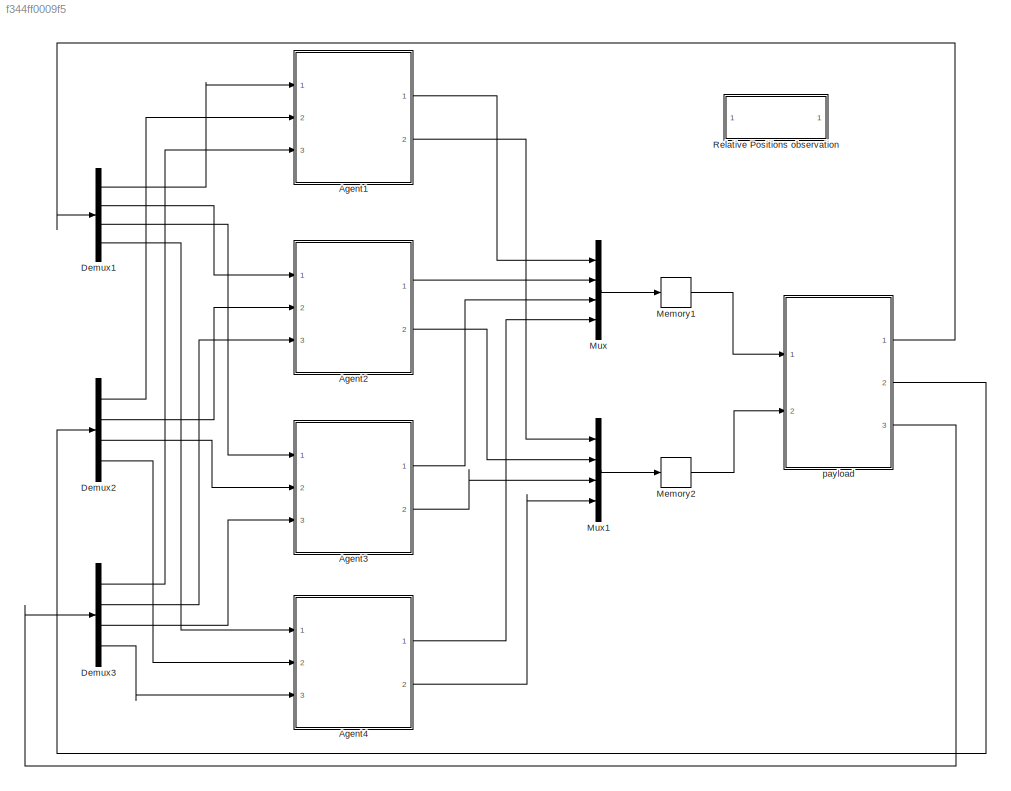
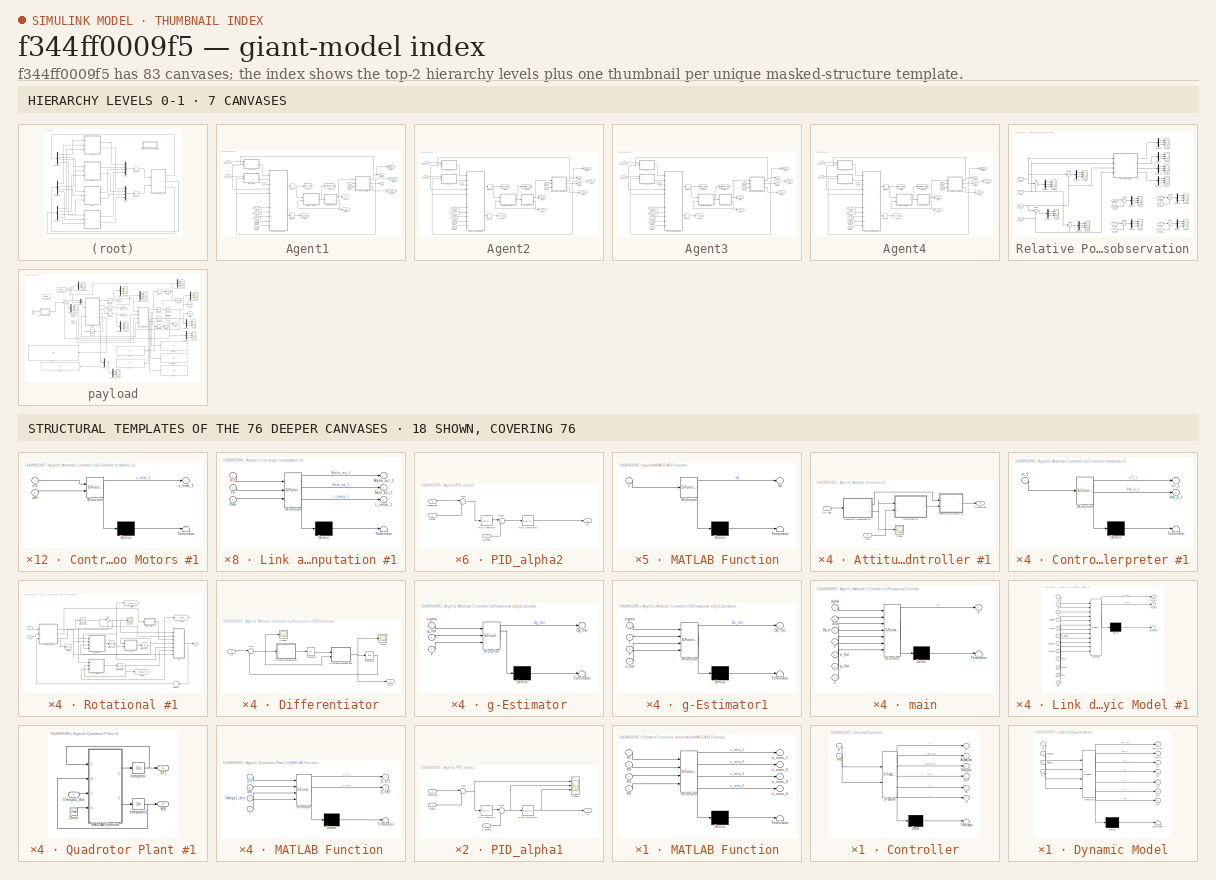
[diagram: thumbnail index - top-2 hierarchy levels (7 canvases) + 18 structural-template representatives of the remaining 76 canvases]
MODEL slx_f344ff0009f5
KIND model
CONFIG AbsTol = auto
CONFIG EnableMultiTasking = off
CONFIG FixedStep = auto
CONFIG InitFcn = Simple_4Quad_payload_03_const
CONFIG MaxStep = auto
CONFIG MinStep = auto
CONFIG RelTol = 1e-3
CONFIG SampleTimeConstraint = Unconstrained
CONFIG Solver = VariableStepAuto
CONFIG SolverName = VariableStepAuto
CONFIG StartTime = 0.0
CONFIG StopTime = 60
BLOCK [SubSystem] Agent1 
  Ports = [3, 2]
  RequestExecContextInheritance = off
BLOCK [SubSystem] Agent1 /Attitude Controller #1
  Ports = [2, 1]
  RequestExecContextInheritance = off
BLOCK [SubSystem] Agent1 /Attitude Controller #1/Controller Interpreter #1
  ErrorFcn = Stateflow.Translate.translate
  PermitHierarchicalResolution = ExplicitOnly
  Ports = [1, 2]
  RequestExecContextInheritance = off
  SFBlockType = MATLAB Function
  TreatAsAtomicUnit = on
BLOCK [Demux] Agent1 /Attitude Controller #1/Controller Interpreter #1/ Demux 
  Outputs = 1
  Ports = [1, 1]
BLOCK [S-Function] Agent1 /Attitude Controller #1/Controller Interpreter #1/ SFunction 
  EnableBusSupport = off
  FunctionName = sf_sfun
  PortCounts = [1 3]
  Ports = [1, 3]
  SFcnIsStateOwnerBlock = off
  SFunctionDeploymentMode = off
  Tag = Stateflow S-Function Simple_4Quad_payload_03 84
BLOCK [Terminator] Agent1 /Attitude Controller #1/Controller Interpreter #1/ Terminator 
BLOCK [Outport] Agent1 /Attitude Controller #1/Controller Interpreter #1/PHI_d_1
  IconDisplay = Port number
  Port = 2
BLOCK [Outport] Agent1 /Attitude Controller #1/Controller Interpreter #1/uT_1
  IconDisplay = Port number
BLOCK [Inport] Agent1 /Attitude Controller #1/Controller Interpreter #1/ut_1
  IconDisplay = Port number
BLOCK [SubSystem] Agent1 /Attitude Controller #1/Controller to Motors #1
  ErrorFcn = Stateflow.Translate.translate
  PermitHierarchicalResolution = ExplicitOnly
  Ports = [2, 1]
  RequestExecContextInheritance = off
  SFBlockType = MATLAB Function
  TreatAsAtomicUnit = on
BLOCK [Demux] Agent1 /Attitude Controller #1/Controller to Motors #1/ Demux 
  Outputs = 1
  Ports = [1, 1]
BLOCK [S-Function] Agent1 /Attitude Controller #1/Controller to Motors #1/ SFunction 
  EnableBusSupport = off
  FunctionName = sf_sfun
  Parameters = RM_1
  PortCounts = [2 2]
  Ports = [2, 2]
  SFcnIsStateOwnerBlock = off
  SFunctionDeploymentMode = off
  Tag = Stateflow S-Function Simple_4Quad_payload_03 9
BLOCK [Terminator] Agent1 /Attitude Controller #1/Controller to Motors #1/ Terminator 
BLOCK [Inport] Agent1 /Attitude Controller #1/Controller to Motors #1/uR1
  IconDisplay = Port number
  Port = 2
BLOCK [Inport] Agent1 /Attitude Controller #1/Controller to Motors #1/uT1
  IconDisplay = Port number
BLOCK [Outport] Agent1 /Attitude Controller #1/Controller to Motors #1/u_final_1
  IconDisplay = Port number
BLOCK [Outport] Agent1 /Attitude Controller #1/Omega1_des
  IconDisplay = Port number
BLOCK [SubSystem] Agent1 /Attitude Controller #1/Rotational #1
  Ports = [2, 1]
  RequestExecContextInheritance = off
BLOCK [SubSystem] Agent1 /Attitude Controller #1/Rotational #1/CARE
  ErrorFcn = Stateflow.Translate.translate
  PermitHierarchicalResolution = ExplicitOnly
  Ports = [2, 1]
  RequestExecContextInheritance = off
  SFBlockType = MATLAB Function
  TreatAsAtomicUnit = on
BLOCK [Demux] Agent1 /Attitude Controller #1/Rotational #1/CARE/ Demux 
  Outputs = 1
  Ports = [1, 1]
BLOCK [S-Function] Agent1 /Attitude Controller #1/Rotational #1/CARE/ SFunction 
  EnableBusSupport = off
  FunctionName = sf_sfun
  Parameters = B,QR,R
  PortCounts = [2 2]
  Ports = [2, 2]
  SFcnIsStateOwnerBlock = off
  SFunctionDeploymentMode = off
  Tag = Stateflow S-Function Simple_4Quad_payload_03 52
BLOCK [Terminator] Agent1 /Attitude Controller #1/Rotational #1/CARE/ Terminator 
BLOCK [Outport] Agent1 /Attitude Controller #1/Rotational #1/CARE/DP
  IconDisplay = Port number
BLOCK [Inport] Agent1 /Attitude Controller #1/Rotational #1/CARE/P
  IconDisplay = Port number
BLOCK [Inport] Agent1 /Attitude Controller #1/Rotational #1/CARE/a_hat
  IconDisplay = Port number
  Port = 2
BLOCK [SubSystem] Agent1 /Attitude Controller #1/Rotational #1/Differentiator
  Ports = [1, 1]
  RequestExecContextInheritance = off
BLOCK [Outport] Agent1 /Attitude Controller #1/Rotational #1/Differentiator/Dx_d
  IconDisplay = Port number
BLOCK [Integrator] Agent1 /Attitude Controller #1/Rotational #1/Differentiator/Integrator
  InitialCondition = zeros(n,1)
  Ports = [1, 1]
BLOCK [Integrator] Agent1 /Attitude Controller #1/Rotational #1/Differentiator/Integrator1
  InitialCondition = zeros(n,1)
  Ports = [1, 1]
BLOCK [Scope] Agent1 /Attitude Controller #1/Rotational #1/Differentiator/Scope
  Floating = off
  NumInputPorts = 1
  Ports = [1]
  ScopeSpecificationString = Simulink.scopes.TimeScopeBlockCfg('CurrentConfiguration', extmgr.ConfigurationSet(extmgr.Configuration('Core','General UI',true),extmgr.Configuration('Core','Source UI',true),extmgr.Configuration('Sources','WiredSimulink',true,'DataLoggingVariableName','ScopeData1','DataLoggingSaveFormat','StructureWithTime','DataLoggingDecimation','1','DataLoggingDecimateData',true),extmgr.Configuration('Visuals'...<+1989ch>  <repeated x4 — deduplicated; at blocks: Scope>
BLOCK [Scope] Agent1 /Attitude Controller #1/Rotational #1/Differentiator/Scope1
  Floating = off
  NumInputPorts = 1
  Ports = [1]
  ScopeSpecificationString = C++SS(StrPVP('Location','[5, 49, 1367, 737]'),StrPVP('Open','off'),StrPVP('ZoomMode','xonly'),MxPVP('AxesTitles',53,'struct(''axes1'',''%<SignalLabel>'')'),MxPVP('ScopeGraphics',56,'struct(''FigureColor'',''[0.5 0.5 0.5]'',''AxesColor'',''[0 0 0]'',''AxesTickColor'',''[1 1 1]'',''LineColors'',''[1 1 0;1 0 1;0 1 1;1 0 0;0 1 0;0 0 1]'',''LineStyles'',''-|-|-|-|-|-'',''LineWidths'',''[0.5 0.5 0.5 0.5...<+297ch>  <repeated x4 — deduplicated; at blocks: Scope1>
BLOCK [SubSystem] Agent1 /Attitude Controller #1/Rotational #1/Differentiator/Sliding differentiator
  ErrorFcn = Stateflow.Translate.translate
  PermitHierarchicalResolution = ExplicitOnly
  Ports = [2, 1]
  RequestExecContextInheritance = off
  SFBlockType = MATLAB Function
  TreatAsAtomicUnit = on
BLOCK [Demux] Agent1 /Attitude Controller #1/Rotational #1/Differentiator/Sliding differentiator/ Demux 
  Outputs = 1
  Ports = [1, 1]
BLOCK [S-Function] Agent1 /Attitude Controller #1/Rotational #1/Differentiator/Sliding differentiator/ SFunction 
  EnableBusSupport = off
  FunctionName = sf_sfun
  Parameters = k1,n
  PortCounts = [2 2]
  Ports = [2, 2]
  SFcnIsStateOwnerBlock = off
  SFunctionDeploymentMode = off
  Tag = Stateflow S-Function Simple_4Quad_payload_03 77
BLOCK [Terminator] Agent1 /Attitude Controller #1/Rotational #1/Differentiator/Sliding differentiator/ Terminator 
BLOCK [Inport] Agent1 /Attitude Controller #1/Rotational #1/Differentiator/Sliding differentiator/e
  IconDisplay = Port number
  Port = 2
BLOCK [Outport] Agent1 /Attitude Controller #1/Rotational #1/Differentiator/Sliding differentiator/u
  IconDisplay = Port number
BLOCK [Inport] Agent1 /Attitude Controller #1/Rotational #1/Differentiator/Sliding differentiator/u1
  IconDisplay = Port number
BLOCK [SubSystem] Agent1 /Attitude Controller #1/Rotational #1/Differentiator/Sliding differentiator1
  ErrorFcn = Stateflow.Translate.translate
  PermitHierarchicalResolution = ExplicitOnly
  Ports = [1, 1]
  RequestExecContextInheritance = off
  SFBlockType = MATLAB Function
  TreatAsAtomicUnit = on
BLOCK [Demux] Agent1 /Attitude Controller #1/Rotational #1/Differentiator/Sliding differentiator1/ Demux 
  Outputs = 1
  Ports = [1, 1]
BLOCK [S-Function] Agent1 /Attitude Controller #1/Rotational #1/Differentiator/Sliding differentiator1/ SFunction 
  EnableBusSupport = off
  FunctionName = sf_sfun
  Parameters = k2,n
  PortCounts = [1 2]
  Ports = [1, 2]
  SFcnIsStateOwnerBlock = off
  SFunctionDeploymentMode = off
  Tag = Stateflow S-Function Simple_4Quad_payload_03 85
BLOCK [Terminator] Agent1 /Attitude Controller #1/Rotational #1/Differentiator/Sliding differentiator1/ Terminator 
BLOCK [Outport] Agent1 /Attitude Controller #1/Rotational #1/Differentiator/Sliding differentiator1/Du1
  IconDisplay = Port number
BLOCK [Inport] Agent1 /Attitude Controller #1/Rotational #1/Differentiator/Sliding differentiator1/e
  IconDisplay = Port number
BLOCK [Sum] Agent1 /Attitude Controller #1/Rotational #1/Differentiator/Sum
  IconShape = round
  InputSameDT = off
  Inputs = |-+
  OutDataTypeStr = Inherit: Inherit via internal rule
  Ports = [2, 1]
  SaturateOnIntegerOverflow = off
BLOCK [Inport] Agent1 /Attitude Controller #1/Rotational #1/Differentiator/x_d
  IconDisplay = Port number
BLOCK [Goto] Agent1 /Attitude Controller #1/Rotational #1/Goto1
  GotoTag = g_hat1_R
  TagVisibility = global
BLOCK [Goto] Agent1 /Attitude Controller #1/Rotational #1/Goto2
  GotoTag = P1_R
  TagVisibility = global
BLOCK [Goto] Agent1 /Attitude Controller #1/Rotational #1/Goto3
  GotoTag = A_hat1_R
  TagVisibility = global
BLOCK [Goto] Agent1 /Attitude Controller #1/Rotational #1/Goto9
  GotoTag = e1_R
  TagVisibility = global
BLOCK [Integrator] Agent1 /Attitude Controller #1/Rotational #1/Integrator
  InitialCondition = zeros(n)
  Ports = [1, 1]
BLOCK [Integrator] Agent1 /Attitude Controller #1/Rotational #1/Integrator1
  InitialCondition = eye(n)
  Ports = [1, 1]
BLOCK [Integrator] Agent1 /Attitude Controller #1/Rotational #1/Integrator2
  InitialCondition = zeros(n,1)
  Ports = [1, 1]
BLOCK [Integrator] Agent1 /Attitude Controller #1/Rotational #1/Integrator3
  InitialCondition = zeros(n,1)
  Ports = [1, 1]
BLOCK [Memory] Agent1 /Attitude Controller #1/Rotational #1/Memory
  InitialCondition = zeros(m,1)
BLOCK [Scope] Agent1 /Attitude Controller #1/Rotational #1/Scope10
  Floating = off
  NumInputPorts = 1
  Ports = [1]
  ScopeSpecificationString = Simulink.scopes.TimeScopeBlockCfg('CurrentConfiguration', extmgr.ConfigurationSet(extmgr.Configuration('Core','General UI',true),extmgr.Configuration('Core','Source UI',true),extmgr.Configuration('Sources','WiredSimulink',true,'DataLoggingVariableName','ScopeData2','DataLoggingSaveFormat','StructureWithTime','DataLoggingDecimation','1','DataLoggingDecimateData',true),extmgr.Configuration('Visuals'...<+1736ch>  <repeated x4 — deduplicated; at blocks: Scope10>
BLOCK [Sum] Agent1 /Attitude Controller #1/Rotational #1/Sum
  IconShape = round
  InputSameDT = off
  Inputs = |++
  OutDataTypeStr = Inherit: Inherit via internal rule
  Ports = [2, 1]
  SaturateOnIntegerOverflow = off
BLOCK [Inport] Agent1 /Attitude Controller #1/Rotational #1/X
  IconDisplay = Port number
  Port = 2
BLOCK [SubSystem] Agent1 /Attitude Controller #1/Rotational #1/g-Estimator
  ErrorFcn = Stateflow.Translate.translate
  PermitHierarchicalResolution = ExplicitOnly
  Ports = [3, 1]
  RequestExecContextInheritance = off
  SFBlockType = MATLAB Function
  TreatAsAtomicUnit = on
BLOCK [Demux] Agent1 /Attitude Controller #1/Rotational #1/g-Estimator/ Demux 
  Outputs = 1
  Ports = [1, 1]
BLOCK [S-Function] Agent1 /Attitude Controller #1/Rotational #1/g-Estimator/ SFunction 
  EnableBusSupport = off
  FunctionName = sf_sfun
  Parameters = gamma_1,rho_1
  PortCounts = [3 2]
  Ports = [3, 2]
  SFcnIsStateOwnerBlock = off
  SFunctionDeploymentMode = off
  Tag = Stateflow S-Function Simple_4Quad_payload_03 86
BLOCK [Terminator] Agent1 /Attitude Controller #1/Rotational #1/g-Estimator/ Terminator 
BLOCK [Outport] Agent1 /Attitude Controller #1/Rotational #1/g-Estimator/Dg_hat
  IconDisplay = Port number
BLOCK [Inport] Agent1 /Attitude Controller #1/Rotational #1/g-Estimator/P
  IconDisplay = Port number
  Port = 3
BLOCK [Inport] Agent1 /Attitude Controller #1/Rotational #1/g-Estimator/g_hat
  IconDisplay = Port number
  Port = 2
BLOCK [Inport] Agent1 /Attitude Controller #1/Rotational #1/g-Estimator/sigma
  IconDisplay = Port number
BLOCK [SubSystem] Agent1 /Attitude Controller #1/Rotational #1/g-Estimator1
  ErrorFcn = Stateflow.Translate.translate
  PermitHierarchicalResolution = ExplicitOnly
  Ports = [4, 1]
  RequestExecContextInheritance = off
  SFBlockType = MATLAB Function
  TreatAsAtomicUnit = on
BLOCK [Demux] Agent1 /Attitude Controller #1/Rotational #1/g-Estimator1/ Demux 
  Outputs = 1
  Ports = [1, 1]
BLOCK [S-Function] Agent1 /Attitude Controller #1/Rotational #1/g-Estimator1/ SFunction 
  EnableBusSupport = off
  FunctionName = sf_sfun
  Parameters = gamma_0,rho_0
  PortCounts = [4 2]
  Ports = [4, 2]
  SFcnIsStateOwnerBlock = off
  SFunctionDeploymentMode = off
  Tag = Stateflow S-Function Simple_4Quad_payload_03 87
BLOCK [Terminator] Agent1 /Attitude Controller #1/Rotational #1/g-Estimator1/ Terminator 
BLOCK [Outport] Agent1 /Attitude Controller #1/Rotational #1/g-Estimator1/Da_hat
  IconDisplay = Port number
BLOCK [Inport] Agent1 /Attitude Controller #1/Rotational #1/g-Estimator1/P
  IconDisplay = Port number
  Port = 3
BLOCK [Inport] Agent1 /Attitude Controller #1/Rotational #1/g-Estimator1/a_hat
  IconDisplay = Port number
  Port = 4
BLOCK [Inport] Agent1 /Attitude Controller #1/Rotational #1/g-Estimator1/sigma
  IconDisplay = Port number
BLOCK [Inport] Agent1 /Attitude Controller #1/Rotational #1/g-Estimator1/x
  IconDisplay = Port number
  Port = 2
BLOCK [SubSystem] Agent1 /Attitude Controller #1/Rotational #1/main
  ErrorFcn = Stateflow.Translate.translate
  PermitHierarchicalResolution = ExplicitOnly
  Ports = [7, 1]
  RequestExecContextInheritance = off
  SFBlockType = MATLAB Function
  TreatAsAtomicUnit = on
BLOCK [Demux] Agent1 /Attitude Controller #1/Rotational #1/main/ Demux 
  Outputs = 1
  Ports = [1, 1]
BLOCK [S-Function] Agent1 /Attitude Controller #1/Rotational #1/main/ SFunction 
  EnableBusSupport = off
  FunctionName = sf_sfun
  Parameters = B,BBT_inv,QR,R,n
  PortCounts = [7 2]
  Ports = [7, 2]
  SFcnIsStateOwnerBlock = off
  SFunctionDeploymentMode = off
  Tag = Stateflow S-Function Simple_4Quad_payload_03 88
BLOCK [Terminator] Agent1 /Attitude Controller #1/Rotational #1/main/ Terminator 
BLOCK [Inport] Agent1 /Attitude Controller #1/Rotational #1/main/Dy_d
  IconDisplay = Port number
  Port = 3
BLOCK [Inport] Agent1 /Attitude Controller #1/Rotational #1/main/P
  IconDisplay = Port number
  Port = 4
BLOCK [Inport] Agent1 /Attitude Controller #1/Rotational #1/main/a_hat
  IconDisplay = Port number
  Port = 5
BLOCK [Inport] Agent1 /Attitude Controller #1/Rotational #1/main/g_hat
  IconDisplay = Port number
  Port = 6
BLOCK [Inport] Agent1 /Attitude Controller #1/Rotational #1/main/sigma
  IconDisplay = Port number
BLOCK [Outport] Agent1 /Attitude Controller #1/Rotational #1/main/u
  IconDisplay = Port number
BLOCK [Inport] Agent1 /Attitude Controller #1/Rotational #1/main/x
  IconDisplay = Port number
  Port = 7
BLOCK [Inport] Agent1 /Attitude Controller #1/Rotational #1/main/zeta
  IconDisplay = Port number
  Port = 2
BLOCK [Outport] Agent1 /Attitude Controller #1/Rotational #1/ur1
  IconDisplay = Port number
BLOCK [SubSystem] Agent1 /Attitude Controller #1/Rotational #1/variable change
  ErrorFcn = Stateflow.Translate.translate
  PermitHierarchicalResolution = ExplicitOnly
  Ports = [3, 3]
  RequestExecContextInheritance = off
  SFBlockType = MATLAB Function
  TreatAsAtomicUnit = on
BLOCK [Demux] Agent1 /Attitude Controller #1/Rotational #1/variable change/ Demux 
  Outputs = 1
  Ports = [1, 1]
BLOCK [S-Function] Agent1 /Attitude Controller #1/Rotational #1/variable change/ SFunction 
  EnableBusSupport = off
  FunctionName = sf_sfun
  PortCounts = [3 4]
  Ports = [3, 4]
  SFcnIsStateOwnerBlock = off
  SFunctionDeploymentMode = off
  Tag = Stateflow S-Function Simple_4Quad_payload_03 89
BLOCK [Terminator] Agent1 /Attitude Controller #1/Rotational #1/variable change/ Terminator 
BLOCK [Inport] Agent1 /Attitude Controller #1/Rotational #1/variable change/X
  IconDisplay = Port number
BLOCK [Inport] Agent1 /Attitude Controller #1/Rotational #1/variable change/Xd
  IconDisplay = Port number
  Port = 2
BLOCK [Outport] Agent1 /Attitude Controller #1/Rotational #1/variable change/e_mod
  IconDisplay = Port number
  Port = 3
BLOCK [Inport] Agent1 /Attitude Controller #1/Rotational #1/variable change/u
  IconDisplay = Port number
  Port = 3
BLOCK [Outport] Agent1 /Attitude Controller #1/Rotational #1/variable change/x_mod
  IconDisplay = Port number
BLOCK [Outport] Agent1 /Attitude Controller #1/Rotational #1/variable change/xd_mod
  IconDisplay = Port number
  Port = 2
BLOCK [Inport] Agent1 /Attitude Controller #1/Rotational #1/x_rd
  IconDisplay = Port number
BLOCK [Scope] Agent1 /Attitude Controller #1/Scope
  Floating = off
  NumInputPorts = 1
  Ports = [1]
  ScopeSpecificationString = Simulink.scopes.TimeScopeBlockCfg('CurrentConfiguration', extmgr.ConfigurationSet(extmgr.Configuration('Core','General UI',true),extmgr.Configuration('Core','Source UI',true),extmgr.Configuration('Sources','WiredSimulink',true,'DataLoggingVariableName','ScopeData1','DataLogging',true,'DataLoggingDecimateData',true,'DataLoggingDecimation','1','DataLoggingSaveFormat','StructureWithTime'),extmgr.Conf...<+1694ch>  <repeated x4 — deduplicated; at blocks: Scope>
BLOCK [Inport] Agent1 /Attitude Controller #1/U1T_des
  IconDisplay = Port number
BLOCK [Inport] Agent1 /Attitude Controller #1/X1R
  IconDisplay = Port number
  Port = 2
BLOCK [From] Agent1 /From1
  GotoTag = Po
  TagVisibility = global
BLOCK [From] Agent1 /From2
  GotoTag = D_PHIo
  TagVisibility = global
BLOCK [From] Agent1 /From3
  GotoTag = DD_PHIo
  TagVisibility = global
BLOCK [From] Agent1 /From4
  GotoTag = DD_Po
  TagVisibility = global
BLOCK [From] Agent1 /From5
  GotoTag = Po
  TagVisibility = global
BLOCK [From] Agent1 /From6
  GotoTag = PHIo
  TagVisibility = global
BLOCK [From] Agent1 /From7
  GotoTag = PHIo
  TagVisibility = global
BLOCK [Goto] Agent1 /Goto
  GotoTag = P1_des
  TagVisibility = global
BLOCK [Goto] Agent1 /Goto1
  GotoTag = U1T_des
  TagVisibility = global
BLOCK [Goto] Agent1 /Goto2
  GotoTag = XT1
  TagVisibility = global
BLOCK [Goto] Agent1 /Goto3
  GotoTag = XR1
  TagVisibility = global
BLOCK [Goto] Agent1 /Goto4
  GotoTag = alpha_1
  TagVisibility = global
BLOCK [Goto] Agent1 /Goto5
  GotoTag = beta_1
  TagVisibility = global
BLOCK [Goto] Agent1 /Goto6
  GotoTag = L_meas_1
  TagVisibility = global
BLOCK [Goto] Agent1 /Goto9
  GotoTag = Omega1_des
  TagVisibility = global
BLOCK [SubSystem] Agent1 /Link angle computation #1
  ErrorFcn = Stateflow.Translate.translate
  PermitHierarchicalResolution = ExplicitOnly
  Ports = [3, 3]
  RequestExecContextInheritance = off
  SFBlockType = MATLAB Function
  TreatAsAtomicUnit = on
BLOCK [Demux] Agent1 /Link angle computation #1/ Demux 
  Outputs = 1
  Ports = [1, 1]
BLOCK [S-Function] Agent1 /Link angle computation #1/ SFunction 
  EnableBusSupport = off
  FunctionName = sf_sfun
  PortCounts = [3 4]
  Ports = [3, 4]
  SFcnIsStateOwnerBlock = off
  SFunctionDeploymentMode = off
  Tag = Stateflow S-Function Simple_4Quad_payload_03 10
BLOCK [Terminator] Agent1 /Link angle computation #1/ Terminator 
BLOCK [Outport] Agent1 /Link angle computation #1/Alpha_act_1
  IconDisplay = Port number
BLOCK [Outport] Agent1 /Link angle computation #1/Beta_act_1
  IconDisplay = Port number
  Port = 2
BLOCK [Outport] Agent1 /Link angle computation #1/L_meas_1
  IconDisplay = Port number
  Port = 3
BLOCK [Inport] Agent1 /Link angle computation #1/PHIo
  IconDisplay = Port number
  Port = 3
BLOCK [Inport] Agent1 /Link angle computation #1/Po
  IconDisplay = Port number
  Port = 2
BLOCK [Inport] Agent1 /Link angle computation #1/XT1
  IconDisplay = Port number
BLOCK [SubSystem] Agent1 /Link dynamic Model #1
  ErrorFcn = Stateflow.Translate.translate
  PermitHierarchicalResolution = ExplicitOnly
  Ports = [12, 2]
  RequestExecContextInheritance = off
  SFBlockType = MATLAB Function
  TreatAsAtomicUnit = on
BLOCK [Demux] Agent1 /Link dynamic Model #1/ Demux 
  Outputs = 1
  Ports = [1, 1]
BLOCK [S-Function] Agent1 /Link dynamic Model #1/ SFunction 
  EnableBusSupport = on
  FunctionName = sf_sfun
  Parameters = d1,ge,l,mq
  PortCounts = [12 3]
  Ports = [12, 3]
  SFcnIsStateOwnerBlock = off
  SFunctionDeploymentMode = off
  Tag = Stateflow S-Function Simple_4Quad_payload_03 4
BLOCK [Terminator] Agent1 /Link dynamic Model #1/ Terminator 
BLOCK [Inport] Agent1 /Link dynamic Model #1/DD_P
  IconDisplay = Port number
  Port = 9
BLOCK [Inport] Agent1 /Link dynamic Model #1/DD_PHI
  IconDisplay = Port number
  Port = 8
BLOCK [Inport] Agent1 /Link dynamic Model #1/D_PHI
  IconDisplay = Port number
  Port = 10
BLOCK [Inport] Agent1 /Link dynamic Model #1/D_alpha1
  IconDisplay = Port number
  Port = 6
BLOCK [Inport] Agent1 /Link dynamic Model #1/D_beta1
  IconDisplay = Port number
  Port = 7
BLOCK [Inport] Agent1 /Link dynamic Model #1/N1
  IconDisplay = Port number
BLOCK [Outport] Agent1 /Link dynamic Model #1/P1_des
  IconDisplay = Port number
  Port = 2
BLOCK [Inport] Agent1 /Link dynamic Model #1/PHIo
  IconDisplay = Port number
  Port = 11
BLOCK [Inport] Agent1 /Link dynamic Model #1/Po
  IconDisplay = Port number
  Port = 12
BLOCK [Inport] Agent1 /Link dynamic Model #1/S1
  IconDisplay = Port number
  Port = 2
BLOCK [Outport] Agent1 /Link dynamic Model #1/U1_des
  IconDisplay = Port number
BLOCK [Inport] Agent1 /Link dynamic Model #1/alpha1
  IconDisplay = Port number
  Port = 4
BLOCK [Inport] Agent1 /Link dynamic Model #1/beta1
  IconDisplay = Port number
  Port = 5
BLOCK [Inport] Agent1 /Link dynamic Model #1/f1
  IconDisplay = Port number
  Port = 3
BLOCK [Memory] Agent1 /Memory1
  InitialCondition = zeros(3,1)
BLOCK [Memory] Agent1 /Memory2
  InitialCondition = zeros(3,1)
BLOCK [SubSystem] Agent1 /PID_alpha1
  Ports = [3, 1]
  RequestExecContextInheritance = off
BLOCK [Inport] Agent1 /PID_alpha1/D_alpha1
  IconDisplay = Port number
  Port = 3
BLOCK [Outport] Agent1 /PID_alpha1/N1
  IconDisplay = Port number
BLOCK [Reference] Agent1 /PID_alpha1/PID Controller  REF=simulink/Continuous/PID Controller
  Ports = [1, 1]
  SourceBlock = simulink/Continuous/PID Controller
  SourceProductBaseCode = SL
  SourceProductName = Simulink
  SourceType = PID 1dof
BLOCK [Reference] Agent1 /PID_alpha1/PID Controller1  REF=simulink/Continuous/PID Controller
  Ports = [1, 1]
  SourceBlock = simulink/Continuous/PID Controller
  SourceProductBaseCode = SL
  SourceProductName = Simulink
  SourceType = PID 1dof
BLOCK [Scope] Agent1 /PID_alpha1/Scope3
  Floating = off
  NumInputPorts = 3
  Ports = [3]
  ScopeSpecificationString = Simulink.scopes.TimeScopeBlockCfg('CurrentConfiguration', extmgr.ConfigurationSet(extmgr.Configuration('Core','General UI',true),extmgr.Configuration('Core','Source UI',true),extmgr.Configuration('Sources','WiredSimulink',true,'DataLoggingVariableName','ScopeData12'),extmgr.Configuration('Visuals','Time Domain',true,'SerializedDisplays',{struct('MinYLimReal','-0.62664','MaxYLimReal','0.07704','YLa...<+2678ch>
BLOCK [Sum] Agent1 /PID_alpha1/Sum
  IconShape = round
  InputSameDT = off
  Inputs = |+-
  OutDataTypeStr = Inherit: Inherit via internal rule
  Ports = [2, 1]
  SaturateOnIntegerOverflow = off
BLOCK [Sum] Agent1 /PID_alpha1/Sum1
  IconShape = round
  InputSameDT = off
  Inputs = |+-
  OutDataTypeStr = Inherit: Inherit via internal rule
  Ports = [2, 1]
  SaturateOnIntegerOverflow = off
BLOCK [Inport] Agent1 /PID_alpha1/alpha1
  IconDisplay = Port number
  Port = 2
BLOCK [Inport] Agent1 /PID_alpha1/alpha1_des
  IconDisplay = Port number
BLOCK [SubSystem] Agent1 /PID_beta1
  Ports = [3, 1]
  RequestExecContextInheritance = off
BLOCK [Inport] Agent1 /PID_beta1/D_beta1
  IconDisplay = Port number
  Port = 3
BLOCK [Reference] Agent1 /PID_beta1/PID Controller  REF=simulink/Continuous/PID Controller
  Ports = [1, 1]
  SourceBlock = simulink/Continuous/PID Controller
  SourceProductBaseCode = SL
  SourceProductName = Simulink
  SourceType = PID 1dof
BLOCK [Reference] Agent1 /PID_beta1/PID Controller1  REF=simulink/Continuous/PID Controller
  Ports = [1, 1]
  SourceBlock = simulink/Continuous/PID Controller
  SourceProductBaseCode = SL
  SourceProductName = Simulink
  SourceType = PID 1dof
BLOCK [Outport] Agent1 /PID_beta1/S1
  IconDisplay = Port number
BLOCK [Scope] Agent1 /PID_beta1/Scope3
  Floating = off
  NumInputPorts = 3
  Ports = [3]
  ScopeSpecificationString = Simulink.scopes.TimeScopeBlockCfg('CurrentConfiguration', extmgr.ConfigurationSet(extmgr.Configuration('Core','General UI',true),extmgr.Configuration('Core','Source UI',true),extmgr.Configuration('Sources','WiredSimulink',true,'DataLoggingVariableName','ScopeData12'),extmgr.Configuration('Visuals','Time Domain',true,'SerializedDisplays',{struct('MinYLimReal','-1.76763','MaxYLimReal','0.2007','YLab...<+2680ch>
BLOCK [Sum] Agent1 /PID_beta1/Sum
  IconShape = round
  InputSameDT = off
  Inputs = |+-
  OutDataTypeStr = Inherit: Inherit via internal rule
  Ports = [2, 1]
  SaturateOnIntegerOverflow = off
BLOCK [Sum] Agent1 /PID_beta1/Sum1
  IconShape = round
  InputSameDT = off
  Inputs = |+-
  OutDataTypeStr = Inherit: Inherit via internal rule
  Ports = [2, 1]
  SaturateOnIntegerOverflow = off
BLOCK [Inport] Agent1 /PID_beta1/beta1
  IconDisplay = Port number
  Port = 2
BLOCK [Inport] Agent1 /PID_beta1/beta1_des
  IconDisplay = Port number
BLOCK [SubSystem] Agent1 /Quadrotor Plant #1
  Ports = [1, 2]
  RequestExecContextInheritance = off
BLOCK [Clock] Agent1 /Quadrotor Plant #1/Clock
BLOCK [Integrator] Agent1 /Quadrotor Plant #1/Integrator
  InitialCondition = zeros(n,1)
  Ports = [1, 1]
BLOCK [Integrator] Agent1 /Quadrotor Plant #1/Integrator1
  InitialCondition = zeros(n,1)
  Ports = [1, 1]
BLOCK [SubSystem] Agent1 /Quadrotor Plant #1/MATLAB Function
  ErrorFcn = Stateflow.Translate.translate
  PermitHierarchicalResolution = ExplicitOnly
  Ports = [4, 2]
  RequestExecContextInheritance = off
  SFBlockType = MATLAB Function
  TreatAsAtomicUnit = on
BLOCK [Demux] Agent1 /Quadrotor Plant #1/MATLAB Function/ Demux 
  Outputs = 1
  Ports = [1, 1]
BLOCK [S-Function] Agent1 /Quadrotor Plant #1/MATLAB Function/ SFunction 
  EnableBusSupport = off
  FunctionName = sf_sfun
  Parameters = Jq,Ka,Kd,Kf,Kt,Lq,Mq,ge
  PortCounts = [4 3]
  Ports = [4, 3]
  SFcnIsStateOwnerBlock = off
  SFunctionDeploymentMode = off
  Tag = Stateflow S-Function Simple_4Quad_payload_03 14
BLOCK [Terminator] Agent1 /Quadrotor Plant #1/MATLAB Function/ Terminator 
BLOCK [Outport] Agent1 /Quadrotor Plant #1/MATLAB Function/D_XR1
  IconDisplay = Port number
  Port = 2
BLOCK [Outport] Agent1 /Quadrotor Plant #1/MATLAB Function/D_XT1
  IconDisplay = Port number
BLOCK [Inport] Agent1 /Quadrotor Plant #1/MATLAB Function/Omega1_des
  IconDisplay = Port number
  Port = 3
BLOCK [Inport] Agent1 /Quadrotor Plant #1/MATLAB Function/XR1
  IconDisplay = Port number
  Port = 2
BLOCK [Inport] Agent1 /Quadrotor Plant #1/MATLAB Function/XT1
  IconDisplay = Port number
BLOCK [Inport] Agent1 /Quadrotor Plant #1/MATLAB Function/t
  IconDisplay = Port number
  Port = 4
BLOCK [Inport] Agent1 /Quadrotor Plant #1/Omega1_des
  IconDisplay = Port number
BLOCK [Outport] Agent1 /Quadrotor Plant #1/XR1
  IconDisplay = Port number
  Port = 2
BLOCK [Outport] Agent1 /Quadrotor Plant #1/XT1
  IconDisplay = Port number
BLOCK [Outport] Agent1 /alpha1
  IconDisplay = Port number
BLOCK [Inport] Agent1 /alpha1_des
  IconDisplay = Port number
  Port = 2
BLOCK [Outport] Agent1 /beta1
  IconDisplay = Port number
  Port = 2
BLOCK [Inport] Agent1 /beta1_des
  IconDisplay = Port number
  Port = 3
BLOCK [Inport] Agent1 /f1
  IconDisplay = Port number
BLOCK [SubSystem] Agent2
  Ports = [3, 2]
  RequestExecContextInheritance = off
BLOCK [SubSystem] Agent2/Attitude Controller #2
  Ports = [2, 1]
  RequestExecContextInheritance = off
BLOCK [SubSystem] Agent2/Attitude Controller #2/Controller Interpreter #2
  ErrorFcn = Stateflow.Translate.translate
  PermitHierarchicalResolution = ExplicitOnly
  Ports = [1, 2]
  RequestExecContextInheritance = off
  SFBlockType = MATLAB Function
  TreatAsAtomicUnit = on
BLOCK [Demux] Agent2/Attitude Controller #2/Controller Interpreter #2/ Demux 
  Outputs = 1
  Ports = [1, 1]
BLOCK [S-Function] Agent2/Attitude Controller #2/Controller Interpreter #2/ SFunction 
  EnableBusSupport = off
  FunctionName = sf_sfun
  PortCounts = [1 3]
  Ports = [1, 3]
  SFcnIsStateOwnerBlock = off
  SFunctionDeploymentMode = off
  Tag = Stateflow S-Function Simple_4Quad_payload_03 3
BLOCK [Terminator] Agent2/Attitude Controller #2/Controller Interpreter #2/ Terminator 
BLOCK [Outport] Agent2/Attitude Controller #2/Controller Interpreter #2/PHI_d_2
  IconDisplay = Port number
  Port = 2
BLOCK [Outport] Agent2/Attitude Controller #2/Controller Interpreter #2/uT_2
  IconDisplay = Port number
BLOCK [Inport] Agent2/Attitude Controller #2/Controller Interpreter #2/ut_2
  IconDisplay = Port number
BLOCK [SubSystem] Agent2/Attitude Controller #2/Controller to Motors #2
  ErrorFcn = Stateflow.Translate.translate
  PermitHierarchicalResolution = ExplicitOnly
  Ports = [2, 1]
  RequestExecContextInheritance = off
  SFBlockType = MATLAB Function
  TreatAsAtomicUnit = on
BLOCK [Demux] Agent2/Attitude Controller #2/Controller to Motors #2/ Demux 
  Outputs = 1
  Ports = [1, 1]
BLOCK [S-Function] Agent2/Attitude Controller #2/Controller to Motors #2/ SFunction 
  EnableBusSupport = off
  FunctionName = sf_sfun
  Parameters = RM_1
  PortCounts = [2 2]
  Ports = [2, 2]
  SFcnIsStateOwnerBlock = off
  SFunctionDeploymentMode = off
  Tag = Stateflow S-Function Simple_4Quad_payload_03 11
BLOCK [Terminator] Agent2/Attitude Controller #2/Controller to Motors #2/ Terminator 
BLOCK [Inport] Agent2/Attitude Controller #2/Controller to Motors #2/uR2
  IconDisplay = Port number
  Port = 2
BLOCK [Inport] Agent2/Attitude Controller #2/Controller to Motors #2/uT2
  IconDisplay = Port number
BLOCK [Outport] Agent2/Attitude Controller #2/Controller to Motors #2/u_final_2
  IconDisplay = Port number
BLOCK [Outport] Agent2/Attitude Controller #2/Omega2_des
  IconDisplay = Port number
BLOCK [SubSystem] Agent2/Attitude Controller #2/Rotational #2
  Ports = [2, 1]
  RequestExecContextInheritance = off
BLOCK [SubSystem] Agent2/Attitude Controller #2/Rotational #2/CARE
  ErrorFcn = Stateflow.Translate.translate
  PermitHierarchicalResolution = ExplicitOnly
  Ports = [2, 1]
  RequestExecContextInheritance = off
  SFBlockType = MATLAB Function
  TreatAsAtomicUnit = on
BLOCK [Demux] Agent2/Attitude Controller #2/Rotational #2/CARE/ Demux 
  Outputs = 1
  Ports = [1, 1]
BLOCK [S-Function] Agent2/Attitude Controller #2/Rotational #2/CARE/ SFunction 
  EnableBusSupport = off
  FunctionName = sf_sfun
  Parameters = B,QR,R
  PortCounts = [2 2]
  Ports = [2, 2]
  SFcnIsStateOwnerBlock = off
  SFunctionDeploymentMode = off
  Tag = Stateflow S-Function Simple_4Quad_payload_03 12
BLOCK [Terminator] Agent2/Attitude Controller #2/Rotational #2/CARE/ Terminator 
BLOCK [Outport] Agent2/Attitude Controller #2/Rotational #2/CARE/DP
  IconDisplay = Port number
BLOCK [Inport] Agent2/Attitude Controller #2/Rotational #2/CARE/P
  IconDisplay = Port number
BLOCK [Inport] Agent2/Attitude Controller #2/Rotational #2/CARE/a_hat
  IconDisplay = Port number
  Port = 2
BLOCK [SubSystem] Agent2/Attitude Controller #2/Rotational #2/Differentiator
  Ports = [1, 1]
  RequestExecContextInheritance = off
BLOCK [Outport] Agent2/Attitude Controller #2/Rotational #2/Differentiator/Dx_d
  IconDisplay = Port number
BLOCK [Integrator] Agent2/Attitude Controller #2/Rotational #2/Differentiator/Integrator
  InitialCondition = zeros(n,1)
  Ports = [1, 1]
BLOCK [Integrator] Agent2/Attitude Controller #2/Rotational #2/Differentiator/Integrator1
  InitialCondition = zeros(n,1)
  Ports = [1, 1]
BLOCK [Scope] Agent2/Attitude Controller #2/Rotational #2/Differentiator/Scope
  Floating = off
  NumInputPorts = 1
  Ports = [1]
BLOCK [Scope] Agent2/Attitude Controller #2/Rotational #2/Differentiator/Scope1
  Floating = off
  NumInputPorts = 1
  Ports = [1]
BLOCK [SubSystem] Agent2/Attitude Controller #2/Rotational #2/Differentiator/Sliding differentiator
  ErrorFcn = Stateflow.Translate.translate
  PermitHierarchicalResolution = ExplicitOnly
  Ports = [2, 1]
  RequestExecContextInheritance = off
  SFBlockType = MATLAB Function
  TreatAsAtomicUnit = on
BLOCK [Demux] Agent2/Attitude Controller #2/Rotational #2/Differentiator/Sliding differentiator/ Demux 
  Outputs = 1
  Ports = [1, 1]
BLOCK [S-Function] Agent2/Attitude Controller #2/Rotational #2/Differentiator/Sliding differentiator/ SFunction 
  EnableBusSupport = off
  FunctionName = sf_sfun
  Parameters = k1,n
  PortCounts = [2 2]
  Ports = [2, 2]
  SFcnIsStateOwnerBlock = off
  SFunctionDeploymentMode = off
  Tag = Stateflow S-Function Simple_4Quad_payload_03 13
BLOCK [Terminator] Agent2/Attitude Controller #2/Rotational #2/Differentiator/Sliding differentiator/ Terminator 
BLOCK [Inport] Agent2/Attitude Controller #2/Rotational #2/Differentiator/Sliding differentiator/e
  IconDisplay = Port number
  Port = 2
BLOCK [Outport] Agent2/Attitude Controller #2/Rotational #2/Differentiator/Sliding differentiator/u
  IconDisplay = Port number
BLOCK [Inport] Agent2/Attitude Controller #2/Rotational #2/Differentiator/Sliding differentiator/u1
  IconDisplay = Port number
BLOCK [SubSystem] Agent2/Attitude Controller #2/Rotational #2/Differentiator/Sliding differentiator1
  ErrorFcn = Stateflow.Translate.translate
  PermitHierarchicalResolution = ExplicitOnly
  Ports = [1, 1]
  RequestExecContextInheritance = off
  SFBlockType = MATLAB Function
  TreatAsAtomicUnit = on
BLOCK [Demux] Agent2/Attitude Controller #2/Rotational #2/Differentiator/Sliding differentiator1/ Demux 
  Outputs = 1
  Ports = [1, 1]
BLOCK [S-Function] Agent2/Attitude Controller #2/Rotational #2/Differentiator/Sliding differentiator1/ SFunction 
  EnableBusSupport = off
  FunctionName = sf_sfun
  Parameters = k2,n
  PortCounts = [1 2]
  Ports = [1, 2]
  SFcnIsStateOwnerBlock = off
  SFunctionDeploymentMode = off
  Tag = Stateflow S-Function Simple_4Quad_payload_03 15
BLOCK [Terminator] Agent2/Attitude Controller #2/Rotational #2/Differentiator/Sliding differentiator1/ Terminator 
BLOCK [Outport] Agent2/Attitude Controller #2/Rotational #2/Differentiator/Sliding differentiator1/Du1
  IconDisplay = Port number
BLOCK [Inport] Agent2/Attitude Controller #2/Rotational #2/Differentiator/Sliding differentiator1/e
  IconDisplay = Port number
BLOCK [Sum] Agent2/Attitude Controller #2/Rotational #2/Differentiator/Sum
  IconShape = round
  InputSameDT = off
  Inputs = |-+
  OutDataTypeStr = Inherit: Inherit via internal rule
  Ports = [2, 1]
  SaturateOnIntegerOverflow = off
BLOCK [Inport] Agent2/Attitude Controller #2/Rotational #2/Differentiator/x_d
  IconDisplay = Port number
BLOCK [Goto] Agent2/Attitude Controller #2/Rotational #2/Goto1
  GotoTag = g_hat1_R
  TagVisibility = global
BLOCK [Goto] Agent2/Attitude Controller #2/Rotational #2/Goto2
  GotoTag = P1_R
  TagVisibility = global
BLOCK [Goto] Agent2/Attitude Controller #2/Rotational #2/Goto3
  GotoTag = A_hat1_R
  TagVisibility = global
BLOCK [Goto] Agent2/Attitude Controller #2/Rotational #2/Goto9
  GotoTag = e1_R
  TagVisibility = global
BLOCK [Integrator] Agent2/Attitude Controller #2/Rotational #2/Integrator
  InitialCondition = zeros(n)
  Ports = [1, 1]
BLOCK [Integrator] Agent2/Attitude Controller #2/Rotational #2/Integrator1
  InitialCondition = eye(n)
  Ports = [1, 1]
BLOCK [Integrator] Agent2/Attitude Controller #2/Rotational #2/Integrator2
  InitialCondition = zeros(n,1)
  Ports = [1, 1]
BLOCK [Integrator] Agent2/Attitude Controller #2/Rotational #2/Integrator3
  InitialCondition = zeros(n,1)
  Ports = [1, 1]
BLOCK [Memory] Agent2/Attitude Controller #2/Rotational #2/Memory
  InitialCondition = zeros(m,1)
BLOCK [Scope] Agent2/Attitude Controller #2/Rotational #2/Scope10
  Floating = off
  NumInputPorts = 1
  Ports = [1]
BLOCK [Sum] Agent2/Attitude Controller #2/Rotational #2/Sum
  IconShape = round
  InputSameDT = off
  Inputs = |++
  OutDataTypeStr = Inherit: Inherit via internal rule
  Ports = [2, 1]
  SaturateOnIntegerOverflow = off
BLOCK [Inport] Agent2/Attitude Controller #2/Rotational #2/X
  IconDisplay = Port number
  Port = 2
BLOCK [SubSystem] Agent2/Attitude Controller #2/Rotational #2/g-Estimator
  ErrorFcn = Stateflow.Translate.translate
  PermitHierarchicalResolution = ExplicitOnly
  Ports = [3, 1]
  RequestExecContextInheritance = off
  SFBlockType = MATLAB Function
  TreatAsAtomicUnit = on
BLOCK [Demux] Agent2/Attitude Controller #2/Rotational #2/g-Estimator/ Demux 
  Outputs = 1
  Ports = [1, 1]
BLOCK [S-Function] Agent2/Attitude Controller #2/Rotational #2/g-Estimator/ SFunction 
  EnableBusSupport = off
  FunctionName = sf_sfun
  Parameters = gamma_1,rho_1
  PortCounts = [3 2]
  Ports = [3, 2]
  SFcnIsStateOwnerBlock = off
  SFunctionDeploymentMode = off
  Tag = Stateflow S-Function Simple_4Quad_payload_03 16
BLOCK [Terminator] Agent2/Attitude Controller #2/Rotational #2/g-Estimator/ Terminator 
BLOCK [Outport] Agent2/Attitude Controller #2/Rotational #2/g-Estimator/Dg_hat
  IconDisplay = Port number
BLOCK [Inport] Agent2/Attitude Controller #2/Rotational #2/g-Estimator/P
  IconDisplay = Port number
  Port = 3
BLOCK [Inport] Agent2/Attitude Controller #2/Rotational #2/g-Estimator/g_hat
  IconDisplay = Port number
  Port = 2
BLOCK [Inport] Agent2/Attitude Controller #2/Rotational #2/g-Estimator/sigma
  IconDisplay = Port number
BLOCK [SubSystem] Agent2/Attitude Controller #2/Rotational #2/g-Estimator1
  ErrorFcn = Stateflow.Translate.translate
  PermitHierarchicalResolution = ExplicitOnly
  Ports = [4, 1]
  RequestExecContextInheritance = off
  SFBlockType = MATLAB Function
  TreatAsAtomicUnit = on
BLOCK [Demux] Agent2/Attitude Controller #2/Rotational #2/g-Estimator1/ Demux 
  Outputs = 1
  Ports = [1, 1]
BLOCK [S-Function] Agent2/Attitude Controller #2/Rotational #2/g-Estimator1/ SFunction 
  EnableBusSupport = off
  FunctionName = sf_sfun
  Parameters = gamma_0,rho_0
  PortCounts = [4 2]
  Ports = [4, 2]
  SFcnIsStateOwnerBlock = off
  SFunctionDeploymentMode = off
  Tag = Stateflow S-Function Simple_4Quad_payload_03 17
BLOCK [Terminator] Agent2/Attitude Controller #2/Rotational #2/g-Estimator1/ Terminator 
BLOCK [Outport] Agent2/Attitude Controller #2/Rotational #2/g-Estimator1/Da_hat
  IconDisplay = Port number
BLOCK [Inport] Agent2/Attitude Controller #2/Rotational #2/g-Estimator1/P
  IconDisplay = Port number
  Port = 3
BLOCK [Inport] Agent2/Attitude Controller #2/Rotational #2/g-Estimator1/a_hat
  IconDisplay = Port number
  Port = 4
BLOCK [Inport] Agent2/Attitude Controller #2/Rotational #2/g-Estimator1/sigma
  IconDisplay = Port number
BLOCK [Inport] Agent2/Attitude Controller #2/Rotational #2/g-Estimator1/x
  IconDisplay = Port number
  Port = 2
BLOCK [SubSystem] Agent2/Attitude Controller #2/Rotational #2/main
  ErrorFcn = Stateflow.Translate.translate
  PermitHierarchicalResolution = ExplicitOnly
  Ports = [7, 1]
  RequestExecContextInheritance = off
  SFBlockType = MATLAB Function
  TreatAsAtomicUnit = on
BLOCK [Demux] Agent2/Attitude Controller #2/Rotational #2/main/ Demux 
  Outputs = 1
  Ports = [1, 1]
BLOCK [S-Function] Agent2/Attitude Controller #2/Rotational #2/main/ SFunction 
  EnableBusSupport = off
  FunctionName = sf_sfun
  Parameters = B,BBT_inv,QR,R,n
  PortCounts = [7 2]
  Ports = [7, 2]
  SFcnIsStateOwnerBlock = off
  SFunctionDeploymentMode = off
  Tag = Stateflow S-Function Simple_4Quad_payload_03 18
BLOCK [Terminator] Agent2/Attitude Controller #2/Rotational #2/main/ Terminator 
BLOCK [Inport] Agent2/Attitude Controller #2/Rotational #2/main/Dy_d
  IconDisplay = Port number
  Port = 3
BLOCK [Inport] Agent2/Attitude Controller #2/Rotational #2/main/P
  IconDisplay = Port number
  Port = 4
BLOCK [Inport] Agent2/Attitude Controller #2/Rotational #2/main/a_hat
  IconDisplay = Port number
  Port = 5
BLOCK [Inport] Agent2/Attitude Controller #2/Rotational #2/main/g_hat
  IconDisplay = Port number
  Port = 6
BLOCK [Inport] Agent2/Attitude Controller #2/Rotational #2/main/sigma
  IconDisplay = Port number
BLOCK [Outport] Agent2/Attitude Controller #2/Rotational #2/main/u
  IconDisplay = Port number
BLOCK [Inport] Agent2/Attitude Controller #2/Rotational #2/main/x
  IconDisplay = Port number
  Port = 7
BLOCK [Inport] Agent2/Attitude Controller #2/Rotational #2/main/zeta
  IconDisplay = Port number
  Port = 2
BLOCK [Outport] Agent2/Attitude Controller #2/Rotational #2/ur
  IconDisplay = Port number
BLOCK [SubSystem] Agent2/Attitude Controller #2/Rotational #2/variable change
  ErrorFcn = Stateflow.Translate.translate
  PermitHierarchicalResolution = ExplicitOnly
  Ports = [3, 3]
  RequestExecContextInheritance = off
  SFBlockType = MATLAB Function
  TreatAsAtomicUnit = on
BLOCK [Demux] Agent2/Attitude Controller #2/Rotational #2/variable change/ Demux 
  Outputs = 1
  Ports = [1, 1]
BLOCK [S-Function] Agent2/Attitude Controller #2/Rotational #2/variable change/ SFunction 
  EnableBusSupport = off
  FunctionName = sf_sfun
  PortCounts = [3 4]
  Ports = [3, 4]
  SFcnIsStateOwnerBlock = off
  SFunctionDeploymentMode = off
  Tag = Stateflow S-Function Simple_4Quad_payload_03 19
BLOCK [Terminator] Agent2/Attitude Controller #2/Rotational #2/variable change/ Terminator 
BLOCK [Inport] Agent2/Attitude Controller #2/Rotational #2/variable change/X
  IconDisplay = Port number
BLOCK [Inport] Agent2/Attitude Controller #2/Rotational #2/variable change/Xd
  IconDisplay = Port number
  Port = 2
BLOCK [Outport] Agent2/Attitude Controller #2/Rotational #2/variable change/e_mod
  IconDisplay = Port number
  Port = 3
BLOCK [Inport] Agent2/Attitude Controller #2/Rotational #2/variable change/u
  IconDisplay = Port number
  Port = 3
BLOCK [Outport] Agent2/Attitude Controller #2/Rotational #2/variable change/x_mod
  IconDisplay = Port number
BLOCK [Outport] Agent2/Attitude Controller #2/Rotational #2/variable change/xd_mod
  IconDisplay = Port number
  Port = 2
BLOCK [Inport] Agent2/Attitude Controller #2/Rotational #2/x_rd
  IconDisplay = Port number
BLOCK [Scope] Agent2/Attitude Controller #2/Scope
  Floating = off
  NumInputPorts = 1
  Ports = [1]
BLOCK [Inport] Agent2/Attitude Controller #2/U2T_des
  IconDisplay = Port number
BLOCK [Inport] Agent2/Attitude Controller #2/X2R
  IconDisplay = Port number
  Port = 2
BLOCK [From] Agent2/From1
  GotoTag = Po
  TagVisibility = global
BLOCK [From] Agent2/From2
  GotoTag = D_PHIo
  TagVisibility = global
BLOCK [From] Agent2/From3
  GotoTag = DD_PHIo
  TagVisibility = global
BLOCK [From] Agent2/From4
  GotoTag = DD_Po
  TagVisibility = global
BLOCK [From] Agent2/From5
  GotoTag = Po
  TagVisibility = global
BLOCK [From] Agent2/From6
  GotoTag = PHIo
  TagVisibility = global
BLOCK [From] Agent2/From7
  GotoTag = PHIo
  TagVisibility = global
BLOCK [Goto] Agent2/Goto
  GotoTag = P2_des
  TagVisibility = global
BLOCK [Goto] Agent2/Goto1
  GotoTag = U2T_des
  TagVisibility = global
BLOCK [Goto] Agent2/Goto2
  GotoTag = XT2
  TagVisibility = global
BLOCK [Goto] Agent2/Goto3
  GotoTag = XR2
  TagVisibility = global
BLOCK [Goto] Agent2/Goto4
  GotoTag = alpha_2
  TagVisibility = global
BLOCK [Goto] Agent2/Goto5
  GotoTag = beta_2
  TagVisibility = global
BLOCK [Goto] Agent2/Goto6
  GotoTag = L_meas_2
  TagVisibility = global
BLOCK [Goto] Agent2/Goto9
  GotoTag = Omega2_des
  TagVisibility = global
BLOCK [SubSystem] Agent2/Link angle computation #2
  ErrorFcn = Stateflow.Translate.translate
  PermitHierarchicalResolution = ExplicitOnly
  Ports = [3, 3]
  RequestExecContextInheritance = off
  SFBlockType = MATLAB Function
  TreatAsAtomicUnit = on
BLOCK [Demux] Agent2/Link angle computation #2/ Demux 
  Outputs = 1
  Ports = [1, 1]
BLOCK [S-Function] Agent2/Link angle computation #2/ SFunction 
  EnableBusSupport = off
  FunctionName = sf_sfun
  PortCounts = [3 4]
  Ports = [3, 4]
  SFcnIsStateOwnerBlock = off
  SFunctionDeploymentMode = off
  Tag = Stateflow S-Function Simple_4Quad_payload_03 20
BLOCK [Terminator] Agent2/Link angle computation #2/ Terminator 
BLOCK [Outport] Agent2/Link angle computation #2/Alpha_act_2
  IconDisplay = Port number
BLOCK [Outport] Agent2/Link angle computation #2/Beta_act_2
  IconDisplay = Port number
  Port = 2
BLOCK [Outport] Agent2/Link angle computation #2/L_meas_2
  IconDisplay = Port number
  Port = 3
BLOCK [Inport] Agent2/Link angle computation #2/PHIo
  IconDisplay = Port number
  Port = 3
BLOCK [Inport] Agent2/Link angle computation #2/Po
  IconDisplay = Port number
  Port = 2
BLOCK [Inport] Agent2/Link angle computation #2/XT2
  IconDisplay = Port number
BLOCK [SubSystem] Agent2/Link dynamic Model #2
  ErrorFcn = Stateflow.Translate.translate
  PermitHierarchicalResolution = ExplicitOnly
  Ports = [12, 2]
  RequestExecContextInheritance = off
  SFBlockType = MATLAB Function
  TreatAsAtomicUnit = on
BLOCK [Demux] Agent2/Link dynamic Model #2/ Demux 
  Outputs = 1
  Ports = [1, 1]
BLOCK [S-Function] Agent2/Link dynamic Model #2/ SFunction 
  EnableBusSupport = on
  FunctionName = sf_sfun
  Parameters = d1,ge,l,mq
  PortCounts = [12 3]
  Ports = [12, 3]
  SFcnIsStateOwnerBlock = off
  SFunctionDeploymentMode = off
  Tag = Stateflow S-Function Simple_4Quad_payload_03 21
BLOCK [Terminator] Agent2/Link dynamic Model #2/ Terminator 
BLOCK [Inport] Agent2/Link dynamic Model #2/DD_PHIo
  IconDisplay = Port number
  Port = 8
BLOCK [Inport] Agent2/Link dynamic Model #2/DD_Po
  IconDisplay = Port number
  Port = 9
BLOCK [Inport] Agent2/Link dynamic Model #2/D_PHIo
  IconDisplay = Port number
  Port = 10
BLOCK [Inport] Agent2/Link dynamic Model #2/D_alpha_2
  IconDisplay = Port number
  Port = 6
BLOCK [Inport] Agent2/Link dynamic Model #2/D_beta_2
  IconDisplay = Port number
  Port = 7
BLOCK [Inport] Agent2/Link dynamic Model #2/N2
  IconDisplay = Port number
BLOCK [Outport] Agent2/Link dynamic Model #2/P2_des
  IconDisplay = Port number
  Port = 2
BLOCK [Inport] Agent2/Link dynamic Model #2/PHIo
  IconDisplay = Port number
  Port = 11
BLOCK [Inport] Agent2/Link dynamic Model #2/Po
  IconDisplay = Port number
  Port = 12
BLOCK [Inport] Agent2/Link dynamic Model #2/S2
  IconDisplay = Port number
  Port = 2
BLOCK [Outport] Agent2/Link dynamic Model #2/U2_des
  IconDisplay = Port number
BLOCK [Inport] Agent2/Link dynamic Model #2/alpha_2
  IconDisplay = Port number
  Port = 4
BLOCK [Inport] Agent2/Link dynamic Model #2/beta_2
  IconDisplay = Port number
  Port = 5
BLOCK [Inport] Agent2/Link dynamic Model #2/f2
  IconDisplay = Port number
  Port = 3
BLOCK [Memory] Agent2/Memory1
  InitialCondition = zeros(3,1)
BLOCK [Memory] Agent2/Memory2
  InitialCondition = zeros(3,1)
BLOCK [SubSystem] Agent2/PID_alpha2
  Ports = [3, 1]
  RequestExecContextInheritance = off
BLOCK [Inport] Agent2/PID_alpha2/D_alpha2
  IconDisplay = Port number
  Port = 3
BLOCK [Outport] Agent2/PID_alpha2/N2
  IconDisplay = Port number
BLOCK [Reference] Agent2/PID_alpha2/PID Controller  REF=simulink/Continuous/PID Controller
  Ports = [1, 1]
  SourceBlock = simulink/Continuous/PID Controller
  SourceProductBaseCode = SL
  SourceProductName = Simulink
  SourceType = PID 1dof
BLOCK [Reference] Agent2/PID_alpha2/PID Controller1  REF=simulink/Continuous/PID Controller
  Ports = [1, 1]
  SourceBlock = simulink/Continuous/PID Controller
  SourceProductBaseCode = SL
  SourceProductName = Simulink
  SourceType = PID 1dof
BLOCK [Sum] Agent2/PID_alpha2/Sum
  IconShape = round
  InputSameDT = off
  Inputs = |+-
  OutDataTypeStr = Inherit: Inherit via internal rule
  Ports = [2, 1]
  SaturateOnIntegerOverflow = off
BLOCK [Sum] Agent2/PID_alpha2/Sum1
  IconShape = round
  InputSameDT = off
  Inputs = |+-
  OutDataTypeStr = Inherit: Inherit via internal rule
  Ports = [2, 1]
  SaturateOnIntegerOverflow = off
BLOCK [Inport] Agent2/PID_alpha2/alpha2
  IconDisplay = Port number
  Port = 2
BLOCK [Inport] Agent2/PID_alpha2/alpha2_des
  IconDisplay = Port number
BLOCK [SubSystem] Agent2/PID_beta2
  Ports = [3, 1]
  RequestExecContextInheritance = off
BLOCK [Inport] Agent2/PID_beta2/D_beta2
  IconDisplay = Port number
  Port = 3
BLOCK [Reference] Agent2/PID_beta2/PID Controller  REF=simulink/Continuous/PID Controller
  Ports = [1, 1]
  SourceBlock = simulink/Continuous/PID Controller
  SourceProductBaseCode = SL
  SourceProductName = Simulink
  SourceType = PID 1dof
BLOCK [Reference] Agent2/PID_beta2/PID Controller1  REF=simulink/Continuous/PID Controller
  Ports = [1, 1]
  SourceBlock = simulink/Continuous/PID Controller
  SourceProductBaseCode = SL
  SourceProductName = Simulink
  SourceType = PID 1dof
BLOCK [Outport] Agent2/PID_beta2/S2
  IconDisplay = Port number
BLOCK [Sum] Agent2/PID_beta2/Sum
  IconShape = round
  InputSameDT = off
  Inputs = |+-
  OutDataTypeStr = Inherit: Inherit via internal rule
  Ports = [2, 1]
  SaturateOnIntegerOverflow = off
BLOCK [Sum] Agent2/PID_beta2/Sum1
  IconShape = round
  InputSameDT = off
  Inputs = |+-
  OutDataTypeStr = Inherit: Inherit via internal rule
  Ports = [2, 1]
  SaturateOnIntegerOverflow = off
BLOCK [Inport] Agent2/PID_beta2/beta2
  IconDisplay = Port number
  Port = 2
BLOCK [Inport] Agent2/PID_beta2/beta2_des
  IconDisplay = Port number
BLOCK [SubSystem] Agent2/Quadrotor Plant #2
  Ports = [1, 2]
  RequestExecContextInheritance = off
BLOCK [Clock] Agent2/Quadrotor Plant #2/Clock
BLOCK [Integrator] Agent2/Quadrotor Plant #2/Integrator
  InitialCondition = zeros(n,1)
  Ports = [1, 1]
BLOCK [Integrator] Agent2/Quadrotor Plant #2/Integrator1
  InitialCondition = zeros(n,1)
  Ports = [1, 1]
BLOCK [SubSystem] Agent2/Quadrotor Plant #2/MATLAB Function
  ErrorFcn = Stateflow.Translate.translate
  PermitHierarchicalResolution = ExplicitOnly
  Ports = [4, 2]
  RequestExecContextInheritance = off
  SFBlockType = MATLAB Function
  TreatAsAtomicUnit = on
BLOCK [Demux] Agent2/Quadrotor Plant #2/MATLAB Function/ Demux 
  Outputs = 1
  Ports = [1, 1]
BLOCK [S-Function] Agent2/Quadrotor Plant #2/MATLAB Function/ SFunction 
  EnableBusSupport = off
  FunctionName = sf_sfun
  Parameters = Jq,Ka,Kd,Kf,Kt,Lq,Mq,ge
  PortCounts = [4 3]
  Ports = [4, 3]
  SFcnIsStateOwnerBlock = off
  SFunctionDeploymentMode = off
  Tag = Stateflow S-Function Simple_4Quad_payload_03 22
BLOCK [Terminator] Agent2/Quadrotor Plant #2/MATLAB Function/ Terminator 
BLOCK [Outport] Agent2/Quadrotor Plant #2/MATLAB Function/D_XR2
  IconDisplay = Port number
  Port = 2
BLOCK [Outport] Agent2/Quadrotor Plant #2/MATLAB Function/D_XT2
  IconDisplay = Port number
BLOCK [Inport] Agent2/Quadrotor Plant #2/MATLAB Function/Omega2_des
  IconDisplay = Port number
  Port = 3
BLOCK [Inport] Agent2/Quadrotor Plant #2/MATLAB Function/XR2
  IconDisplay = Port number
  Port = 2
BLOCK [Inport] Agent2/Quadrotor Plant #2/MATLAB Function/XT2
  IconDisplay = Port number
BLOCK [Inport] Agent2/Quadrotor Plant #2/MATLAB Function/t
  IconDisplay = Port number
  Port = 4
BLOCK [Inport] Agent2/Quadrotor Plant #2/Omega2_des
  IconDisplay = Port number
BLOCK [Outport] Agent2/Quadrotor Plant #2/XR2
  IconDisplay = Port number
  Port = 2
BLOCK [Outport] Agent2/Quadrotor Plant #2/XT2
  IconDisplay = Port number
BLOCK [Outport] Agent2/alpha2
  IconDisplay = Port number
BLOCK [Inport] Agent2/alpha2_des
  IconDisplay = Port number
  Port = 2
BLOCK [Outport] Agent2/beta2
  IconDisplay = Port number
  Port = 2
BLOCK [Inport] Agent2/beta2_des
  IconDisplay = Port number
  Port = 3
BLOCK [Inport] Agent2/f2
  IconDisplay = Port number
BLOCK [SubSystem] Agent3
  Ports = [3, 2]
  RequestExecContextInheritance = off
BLOCK [SubSystem] Agent3/Attitude Controller #3
  Ports = [2, 1]
  RequestExecContextInheritance = off
BLOCK [SubSystem] Agent3/Attitude Controller #3/Controller Interpreter #3
  ErrorFcn = Stateflow.Translate.translate
  PermitHierarchicalResolution = ExplicitOnly
  Ports = [1, 2]
  RequestExecContextInheritance = off
  SFBlockType = MATLAB Function
  TreatAsAtomicUnit = on
BLOCK [Demux] Agent3/Attitude Controller #3/Controller Interpreter #3/ Demux 
  Outputs = 1
  Ports = [1, 1]
BLOCK [S-Function] Agent3/Attitude Controller #3/Controller Interpreter #3/ SFunction 
  EnableBusSupport = off
  FunctionName = sf_sfun
  PortCounts = [1 3]
  Ports = [1, 3]
  SFcnIsStateOwnerBlock = off
  SFunctionDeploymentMode = off
  Tag = Stateflow S-Function Simple_4Quad_payload_03 5
BLOCK [Terminator] Agent3/Attitude Controller #3/Controller Interpreter #3/ Terminator 
BLOCK [Outport] Agent3/Attitude Controller #3/Controller Interpreter #3/PHI_d_3
  IconDisplay = Port number
  Port = 2
BLOCK [Outport] Agent3/Attitude Controller #3/Controller Interpreter #3/uT_3
  IconDisplay = Port number
BLOCK [Inport] Agent3/Attitude Controller #3/Controller Interpreter #3/ut_3
  IconDisplay = Port number
BLOCK [SubSystem] Agent3/Attitude Controller #3/Controller to Motors #3
  ErrorFcn = Stateflow.Translate.translate
  PermitHierarchicalResolution = ExplicitOnly
  Ports = [2, 1]
  RequestExecContextInheritance = off
  SFBlockType = MATLAB Function
  TreatAsAtomicUnit = on
BLOCK [Demux] Agent3/Attitude Controller #3/Controller to Motors #3/ Demux 
  Outputs = 1
  Ports = [1, 1]
BLOCK [S-Function] Agent3/Attitude Controller #3/Controller to Motors #3/ SFunction 
  EnableBusSupport = off
  FunctionName = sf_sfun
  Parameters = RM_1
  PortCounts = [2 2]
  Ports = [2, 2]
  SFcnIsStateOwnerBlock = off
  SFunctionDeploymentMode = off
  Tag = Stateflow S-Function Simple_4Quad_payload_03 6
BLOCK [Terminator] Agent3/Attitude Controller #3/Controller to Motors #3/ Terminator 
BLOCK [Inport] Agent3/Attitude Controller #3/Controller to Motors #3/uR3
  IconDisplay = Port number
  Port = 2
BLOCK [Inport] Agent3/Attitude Controller #3/Controller to Motors #3/uT3
  IconDisplay = Port number
BLOCK [Outport] Agent3/Attitude Controller #3/Controller to Motors #3/u_final_3
  IconDisplay = Port number
BLOCK [Outport] Agent3/Attitude Controller #3/Omega3_des
  IconDisplay = Port number
BLOCK [SubSystem] Agent3/Attitude Controller #3/Rotational #3
  Ports = [2, 1]
  RequestExecContextInheritance = off
BLOCK [SubSystem] Agent3/Attitude Controller #3/Rotational #3/CARE
  ErrorFcn = Stateflow.Translate.translate
  PermitHierarchicalResolution = ExplicitOnly
  Ports = [2, 1]
  RequestExecContextInheritance = off
  SFBlockType = MATLAB Function
  TreatAsAtomicUnit = on
BLOCK [Demux] Agent3/Attitude Controller #3/Rotational #3/CARE/ Demux 
  Outputs = 1
  Ports = [1, 1]
BLOCK [S-Function] Agent3/Attitude Controller #3/Rotational #3/CARE/ SFunction 
  EnableBusSupport = off
  FunctionName = sf_sfun
  Parameters = B,QR,R
  PortCounts = [2 2]
  Ports = [2, 2]
  SFcnIsStateOwnerBlock = off
  SFunctionDeploymentMode = off
  Tag = Stateflow S-Function Simple_4Quad_payload_03 23
BLOCK [Terminator] Agent3/Attitude Controller #3/Rotational #3/CARE/ Terminator 
BLOCK [Outport] Agent3/Attitude Controller #3/Rotational #3/CARE/DP
  IconDisplay = Port number
BLOCK [Inport] Agent3/Attitude Controller #3/Rotational #3/CARE/P
  IconDisplay = Port number
BLOCK [Inport] Agent3/Attitude Controller #3/Rotational #3/CARE/a_hat
  IconDisplay = Port number
  Port = 2
BLOCK [SubSystem] Agent3/Attitude Controller #3/Rotational #3/Differentiator
  Ports = [1, 1]
  RequestExecContextInheritance = off
BLOCK [Outport] Agent3/Attitude Controller #3/Rotational #3/Differentiator/Dx_d
  IconDisplay = Port number
BLOCK [Integrator] Agent3/Attitude Controller #3/Rotational #3/Differentiator/Integrator
  InitialCondition = zeros(n,1)
  Ports = [1, 1]
BLOCK [Integrator] Agent3/Attitude Controller #3/Rotational #3/Differentiator/Integrator1
  InitialCondition = zeros(n,1)
  Ports = [1, 1]
BLOCK [Scope] Agent3/Attitude Controller #3/Rotational #3/Differentiator/Scope
  Floating = off
  NumInputPorts = 1
  Ports = [1]
BLOCK [Scope] Agent3/Attitude Controller #3/Rotational #3/Differentiator/Scope1
  Floating = off
  NumInputPorts = 1
  Ports = [1]
BLOCK [SubSystem] Agent3/Attitude Controller #3/Rotational #3/Differentiator/Sliding differentiator
  ErrorFcn = Stateflow.Translate.translate
  PermitHierarchicalResolution = ExplicitOnly
  Ports = [2, 1]
  RequestExecContextInheritance = off
  SFBlockType = MATLAB Function
  TreatAsAtomicUnit = on
BLOCK [Demux] Agent3/Attitude Controller #3/Rotational #3/Differentiator/Sliding differentiator/ Demux 
  Outputs = 1
  Ports = [1, 1]
BLOCK [S-Function] Agent3/Attitude Controller #3/Rotational #3/Differentiator/Sliding differentiator/ SFunction 
  EnableBusSupport = off
  FunctionName = sf_sfun
  Parameters = k1,n
  PortCounts = [2 2]
  Ports = [2, 2]
  SFcnIsStateOwnerBlock = off
  SFunctionDeploymentMode = off
  Tag = Stateflow S-Function Simple_4Quad_payload_03 24
BLOCK [Terminator] Agent3/Attitude Controller #3/Rotational #3/Differentiator/Sliding differentiator/ Terminator 
BLOCK [Inport] Agent3/Attitude Controller #3/Rotational #3/Differentiator/Sliding differentiator/e
  IconDisplay = Port number
  Port = 2
BLOCK [Outport] Agent3/Attitude Controller #3/Rotational #3/Differentiator/Sliding differentiator/u
  IconDisplay = Port number
BLOCK [Inport] Agent3/Attitude Controller #3/Rotational #3/Differentiator/Sliding differentiator/u1
  IconDisplay = Port number
BLOCK [SubSystem] Agent3/Attitude Controller #3/Rotational #3/Differentiator/Sliding differentiator1
  ErrorFcn = Stateflow.Translate.translate
  PermitHierarchicalResolution = ExplicitOnly
  Ports = [1, 1]
  RequestExecContextInheritance = off
  SFBlockType = MATLAB Function
  TreatAsAtomicUnit = on
BLOCK [Demux] Agent3/Attitude Controller #3/Rotational #3/Differentiator/Sliding differentiator1/ Demux 
  Outputs = 1
  Ports = [1, 1]
BLOCK [S-Function] Agent3/Attitude Controller #3/Rotational #3/Differentiator/Sliding differentiator1/ SFunction 
  EnableBusSupport = off
  FunctionName = sf_sfun
  Parameters = k2,n
  PortCounts = [1 2]
  Ports = [1, 2]
  SFcnIsStateOwnerBlock = off
  SFunctionDeploymentMode = off
  Tag = Stateflow S-Function Simple_4Quad_payload_03 25
BLOCK [Terminator] Agent3/Attitude Controller #3/Rotational #3/Differentiator/Sliding differentiator1/ Terminator 
BLOCK [Outport] Agent3/Attitude Controller #3/Rotational #3/Differentiator/Sliding differentiator1/Du1
  IconDisplay = Port number
BLOCK [Inport] Agent3/Attitude Controller #3/Rotational #3/Differentiator/Sliding differentiator1/e
  IconDisplay = Port number
BLOCK [Sum] Agent3/Attitude Controller #3/Rotational #3/Differentiator/Sum
  IconShape = round
  InputSameDT = off
  Inputs = |-+
  OutDataTypeStr = Inherit: Inherit via internal rule
  Ports = [2, 1]
  SaturateOnIntegerOverflow = off
BLOCK [Inport] Agent3/Attitude Controller #3/Rotational #3/Differentiator/x_d
  IconDisplay = Port number
BLOCK [Goto] Agent3/Attitude Controller #3/Rotational #3/Goto1
  GotoTag = g_hat1_R
  TagVisibility = global
BLOCK [Goto] Agent3/Attitude Controller #3/Rotational #3/Goto2
  GotoTag = P1_R
  TagVisibility = global
BLOCK [Goto] Agent3/Attitude Controller #3/Rotational #3/Goto3
  GotoTag = A_hat1_R
  TagVisibility = global
BLOCK [Goto] Agent3/Attitude Controller #3/Rotational #3/Goto9
  GotoTag = e1_R
  TagVisibility = global
BLOCK [Integrator] Agent3/Attitude Controller #3/Rotational #3/Integrator
  InitialCondition = zeros(n)
  Ports = [1, 1]
BLOCK [Integrator] Agent3/Attitude Controller #3/Rotational #3/Integrator1
  InitialCondition = eye(n)
  Ports = [1, 1]
BLOCK [Integrator] Agent3/Attitude Controller #3/Rotational #3/Integrator2
  InitialCondition = zeros(n,1)
  Ports = [1, 1]
BLOCK [Integrator] Agent3/Attitude Controller #3/Rotational #3/Integrator3
  InitialCondition = zeros(n,1)
  Ports = [1, 1]
BLOCK [Memory] Agent3/Attitude Controller #3/Rotational #3/Memory
  InitialCondition = zeros(m,1)
BLOCK [Scope] Agent3/Attitude Controller #3/Rotational #3/Scope10
  Floating = off
  NumInputPorts = 1
  Ports = [1]
BLOCK [Sum] Agent3/Attitude Controller #3/Rotational #3/Sum
  IconShape = round
  InputSameDT = off
  Inputs = |++
  OutDataTypeStr = Inherit: Inherit via internal rule
  Ports = [2, 1]
  SaturateOnIntegerOverflow = off
BLOCK [Inport] Agent3/Attitude Controller #3/Rotational #3/X
  IconDisplay = Port number
  Port = 2
BLOCK [SubSystem] Agent3/Attitude Controller #3/Rotational #3/g-Estimator
  ErrorFcn = Stateflow.Translate.translate
  PermitHierarchicalResolution = ExplicitOnly
  Ports = [3, 1]
  RequestExecContextInheritance = off
  SFBlockType = MATLAB Function
  TreatAsAtomicUnit = on
BLOCK [Demux] Agent3/Attitude Controller #3/Rotational #3/g-Estimator/ Demux 
  Outputs = 1
  Ports = [1, 1]
BLOCK [S-Function] Agent3/Attitude Controller #3/Rotational #3/g-Estimator/ SFunction 
  EnableBusSupport = off
  FunctionName = sf_sfun
  Parameters = gamma_1,rho_1
  PortCounts = [3 2]
  Ports = [3, 2]
  SFcnIsStateOwnerBlock = off
  SFunctionDeploymentMode = off
  Tag = Stateflow S-Function Simple_4Quad_payload_03 26
BLOCK [Terminator] Agent3/Attitude Controller #3/Rotational #3/g-Estimator/ Terminator 
BLOCK [Outport] Agent3/Attitude Controller #3/Rotational #3/g-Estimator/Dg_hat
  IconDisplay = Port number
BLOCK [Inport] Agent3/Attitude Controller #3/Rotational #3/g-Estimator/P
  IconDisplay = Port number
  Port = 3
BLOCK [Inport] Agent3/Attitude Controller #3/Rotational #3/g-Estimator/g_hat
  IconDisplay = Port number
  Port = 2
BLOCK [Inport] Agent3/Attitude Controller #3/Rotational #3/g-Estimator/sigma
  IconDisplay = Port number
BLOCK [SubSystem] Agent3/Attitude Controller #3/Rotational #3/g-Estimator1
  ErrorFcn = Stateflow.Translate.translate
  PermitHierarchicalResolution = ExplicitOnly
  Ports = [4, 1]
  RequestExecContextInheritance = off
  SFBlockType = MATLAB Function
  TreatAsAtomicUnit = on
BLOCK [Demux] Agent3/Attitude Controller #3/Rotational #3/g-Estimator1/ Demux 
  Outputs = 1
  Ports = [1, 1]
BLOCK [S-Function] Agent3/Attitude Controller #3/Rotational #3/g-Estimator1/ SFunction 
  EnableBusSupport = off
  FunctionName = sf_sfun
  Parameters = gamma_0,rho_0
  PortCounts = [4 2]
  Ports = [4, 2]
  SFcnIsStateOwnerBlock = off
  SFunctionDeploymentMode = off
  Tag = Stateflow S-Function Simple_4Quad_payload_03 27
BLOCK [Terminator] Agent3/Attitude Controller #3/Rotational #3/g-Estimator1/ Terminator 
BLOCK [Outport] Agent3/Attitude Controller #3/Rotational #3/g-Estimator1/Da_hat
  IconDisplay = Port number
BLOCK [Inport] Agent3/Attitude Controller #3/Rotational #3/g-Estimator1/P
  IconDisplay = Port number
  Port = 3
BLOCK [Inport] Agent3/Attitude Controller #3/Rotational #3/g-Estimator1/a_hat
  IconDisplay = Port number
  Port = 4
BLOCK [Inport] Agent3/Attitude Controller #3/Rotational #3/g-Estimator1/sigma
  IconDisplay = Port number
BLOCK [Inport] Agent3/Attitude Controller #3/Rotational #3/g-Estimator1/x
  IconDisplay = Port number
  Port = 2
BLOCK [SubSystem] Agent3/Attitude Controller #3/Rotational #3/main
  ErrorFcn = Stateflow.Translate.translate
  PermitHierarchicalResolution = ExplicitOnly
  Ports = [7, 1]
  RequestExecContextInheritance = off
  SFBlockType = MATLAB Function
  TreatAsAtomicUnit = on
BLOCK [Demux] Agent3/Attitude Controller #3/Rotational #3/main/ Demux 
  Outputs = 1
  Ports = [1, 1]
BLOCK [S-Function] Agent3/Attitude Controller #3/Rotational #3/main/ SFunction 
  EnableBusSupport = off
  FunctionName = sf_sfun
  Parameters = B,BBT_inv,QR,R,n
  PortCounts = [7 2]
  Ports = [7, 2]
  SFcnIsStateOwnerBlock = off
  SFunctionDeploymentMode = off
  Tag = Stateflow S-Function Simple_4Quad_payload_03 28
BLOCK [Terminator] Agent3/Attitude Controller #3/Rotational #3/main/ Terminator 
BLOCK [Inport] Agent3/Attitude Controller #3/Rotational #3/main/Dy_d
  IconDisplay = Port number
  Port = 3
BLOCK [Inport] Agent3/Attitude Controller #3/Rotational #3/main/P
  IconDisplay = Port number
  Port = 4
BLOCK [Inport] Agent3/Attitude Controller #3/Rotational #3/main/a_hat
  IconDisplay = Port number
  Port = 5
BLOCK [Inport] Agent3/Attitude Controller #3/Rotational #3/main/g_hat
  IconDisplay = Port number
  Port = 6
BLOCK [Inport] Agent3/Attitude Controller #3/Rotational #3/main/sigma
  IconDisplay = Port number
BLOCK [Outport] Agent3/Attitude Controller #3/Rotational #3/main/u
  IconDisplay = Port number
BLOCK [Inport] Agent3/Attitude Controller #3/Rotational #3/main/x
  IconDisplay = Port number
  Port = 7
BLOCK [Inport] Agent3/Attitude Controller #3/Rotational #3/main/zeta
  IconDisplay = Port number
  Port = 2
BLOCK [Outport] Agent3/Attitude Controller #3/Rotational #3/ur
  IconDisplay = Port number
BLOCK [SubSystem] Agent3/Attitude Controller #3/Rotational #3/variable change
  ErrorFcn = Stateflow.Translate.translate
  PermitHierarchicalResolution = ExplicitOnly
  Ports = [3, 3]
  RequestExecContextInheritance = off
  SFBlockType = MATLAB Function
  TreatAsAtomicUnit = on
BLOCK [Demux] Agent3/Attitude Controller #3/Rotational #3/variable change/ Demux 
  Outputs = 1
  Ports = [1, 1]
BLOCK [S-Function] Agent3/Attitude Controller #3/Rotational #3/variable change/ SFunction 
  EnableBusSupport = off
  FunctionName = sf_sfun
  PortCounts = [3 4]
  Ports = [3, 4]
  SFcnIsStateOwnerBlock = off
  SFunctionDeploymentMode = off
  Tag = Stateflow S-Function Simple_4Quad_payload_03 29
BLOCK [Terminator] Agent3/Attitude Controller #3/Rotational #3/variable change/ Terminator 
BLOCK [Inport] Agent3/Attitude Controller #3/Rotational #3/variable change/X
  IconDisplay = Port number
BLOCK [Inport] Agent3/Attitude Controller #3/Rotational #3/variable change/Xd
  IconDisplay = Port number
  Port = 2
BLOCK [Outport] Agent3/Attitude Controller #3/Rotational #3/variable change/e_mod
  IconDisplay = Port number
  Port = 3
BLOCK [Inport] Agent3/Attitude Controller #3/Rotational #3/variable change/u
  IconDisplay = Port number
  Port = 3
BLOCK [Outport] Agent3/Attitude Controller #3/Rotational #3/variable change/x_mod
  IconDisplay = Port number
BLOCK [Outport] Agent3/Attitude Controller #3/Rotational #3/variable change/xd_mod
  IconDisplay = Port number
  Port = 2
BLOCK [Inport] Agent3/Attitude Controller #3/Rotational #3/x_rd
  IconDisplay = Port number
BLOCK [Scope] Agent3/Attitude Controller #3/Scope
  Floating = off
  NumInputPorts = 1
  Ports = [1]
BLOCK [Inport] Agent3/Attitude Controller #3/U3T_des
  IconDisplay = Port number
BLOCK [Inport] Agent3/Attitude Controller #3/X3R
  IconDisplay = Port number
  Port = 2
BLOCK [From] Agent3/From1
  GotoTag = Po
  TagVisibility = global
BLOCK [From] Agent3/From2
  GotoTag = D_PHIo
  TagVisibility = global
BLOCK [From] Agent3/From3
  GotoTag = DD_PHIo
  TagVisibility = global
BLOCK [From] Agent3/From4
  GotoTag = DD_Po
  TagVisibility = global
BLOCK [From] Agent3/From5
  GotoTag = Po
  TagVisibility = global
BLOCK [From] Agent3/From6
  GotoTag = PHIo
  TagVisibility = global
BLOCK [From] Agent3/From7
  GotoTag = PHIo
  TagVisibility = global
BLOCK [Goto] Agent3/Goto
  GotoTag = P3_des
  TagVisibility = global
BLOCK [Goto] Agent3/Goto1
  GotoTag = U3T_des
  TagVisibility = global
BLOCK [Goto] Agent3/Goto2
  GotoTag = XT3
  TagVisibility = global
BLOCK [Goto] Agent3/Goto3
  GotoTag = XR3
  TagVisibility = global
BLOCK [Goto] Agent3/Goto4
  GotoTag = alpha_3
  TagVisibility = global
BLOCK [Goto] Agent3/Goto5
  GotoTag = beta_3
  TagVisibility = global
BLOCK [Goto] Agent3/Goto6
  GotoTag = L_meas_3
  TagVisibility = global
BLOCK [Goto] Agent3/Goto9
  GotoTag = Omega3_des
  TagVisibility = global
BLOCK [SubSystem] Agent3/Link angle computation #3
  ErrorFcn = Stateflow.Translate.translate
  PermitHierarchicalResolution = ExplicitOnly
  Ports = [3, 3]
  RequestExecContextInheritance = off
  SFBlockType = MATLAB Function
  TreatAsAtomicUnit = on
BLOCK [Demux] Agent3/Link angle computation #3/ Demux 
  Outputs = 1
  Ports = [1, 1]
BLOCK [S-Function] Agent3/Link angle computation #3/ SFunction 
  EnableBusSupport = off
  FunctionName = sf_sfun
  PortCounts = [3 4]
  Ports = [3, 4]
  SFcnIsStateOwnerBlock = off
  SFunctionDeploymentMode = off
  Tag = Stateflow S-Function Simple_4Quad_payload_03 30
BLOCK [Terminator] Agent3/Link angle computation #3/ Terminator 
BLOCK [Outport] Agent3/Link angle computation #3/Alpha_act_3
  IconDisplay = Port number
BLOCK [Outport] Agent3/Link angle computation #3/Beta_act_3
  IconDisplay = Port number
  Port = 2
BLOCK [Outport] Agent3/Link angle computation #3/L_meas_3
  IconDisplay = Port number
  Port = 3
BLOCK [Inport] Agent3/Link angle computation #3/PHIo
  IconDisplay = Port number
  Port = 3
BLOCK [Inport] Agent3/Link angle computation #3/Po
  IconDisplay = Port number
  Port = 2
BLOCK [Inport] Agent3/Link angle computation #3/XT3
  IconDisplay = Port number
BLOCK [SubSystem] Agent3/Link dynamic Model #3
  ErrorFcn = Stateflow.Translate.translate
  PermitHierarchicalResolution = ExplicitOnly
  Ports = [12, 2]
  RequestExecContextInheritance = off
  SFBlockType = MATLAB Function
  TreatAsAtomicUnit = on
BLOCK [Demux] Agent3/Link dynamic Model #3/ Demux 
  Outputs = 1
  Ports = [1, 1]
BLOCK [S-Function] Agent3/Link dynamic Model #3/ SFunction 
  EnableBusSupport = on
  FunctionName = sf_sfun
  Parameters = d2,ge,l,mq
  PortCounts = [12 3]
  Ports = [12, 3]
  SFcnIsStateOwnerBlock = off
  SFunctionDeploymentMode = off
  Tag = Stateflow S-Function Simple_4Quad_payload_03 31
BLOCK [Terminator] Agent3/Link dynamic Model #3/ Terminator 
BLOCK [Inport] Agent3/Link dynamic Model #3/DD_PHIo
  IconDisplay = Port number
  Port = 8
BLOCK [Inport] Agent3/Link dynamic Model #3/DD_Po
  IconDisplay = Port number
  Port = 9
BLOCK [Inport] Agent3/Link dynamic Model #3/D_PHIo
  IconDisplay = Port number
  Port = 10
BLOCK [Inport] Agent3/Link dynamic Model #3/D_alpha_3
  IconDisplay = Port number
  Port = 6
BLOCK [Inport] Agent3/Link dynamic Model #3/D_beta_3
  IconDisplay = Port number
  Port = 7
BLOCK [Inport] Agent3/Link dynamic Model #3/N3
  IconDisplay = Port number
BLOCK [Outport] Agent3/Link dynamic Model #3/P3_des
  IconDisplay = Port number
  Port = 2
BLOCK [Inport] Agent3/Link dynamic Model #3/PHIo
  IconDisplay = Port number
  Port = 11
BLOCK [Inport] Agent3/Link dynamic Model #3/Po
  IconDisplay = Port number
  Port = 12
BLOCK [Inport] Agent3/Link dynamic Model #3/S3
  IconDisplay = Port number
  Port = 2
BLOCK [Outport] Agent3/Link dynamic Model #3/U3_des
  IconDisplay = Port number
BLOCK [Inport] Agent3/Link dynamic Model #3/alpha_3
  IconDisplay = Port number
  Port = 4
BLOCK [Inport] Agent3/Link dynamic Model #3/beta_3
  IconDisplay = Port number
  Port = 5
BLOCK [Inport] Agent3/Link dynamic Model #3/f3
  IconDisplay = Port number
  Port = 3
BLOCK [Memory] Agent3/Memory1
  InitialCondition = zeros(3,1)
BLOCK [Memory] Agent3/Memory2
  InitialCondition = zeros(3,1)
BLOCK [SubSystem] Agent3/PID_alpha3
  Ports = [3, 1]
  RequestExecContextInheritance = off
BLOCK [Inport] Agent3/PID_alpha3/D_alpha3
  IconDisplay = Port number
  Port = 3
BLOCK [Outport] Agent3/PID_alpha3/N3
  IconDisplay = Port number
BLOCK [Reference] Agent3/PID_alpha3/PID Controller  REF=simulink/Continuous/PID Controller
  Ports = [1, 1]
  SourceBlock = simulink/Continuous/PID Controller
  SourceProductBaseCode = SL
  SourceProductName = Simulink
  SourceType = PID 1dof
BLOCK [Reference] Agent3/PID_alpha3/PID Controller1  REF=simulink/Continuous/PID Controller
  Ports = [1, 1]
  SourceBlock = simulink/Continuous/PID Controller
  SourceProductBaseCode = SL
  SourceProductName = Simulink
  SourceType = PID 1dof
BLOCK [Sum] Agent3/PID_alpha3/Sum
  IconShape = round
  InputSameDT = off
  Inputs = |+-
  OutDataTypeStr = Inherit: Inherit via internal rule
  Ports = [2, 1]
  SaturateOnIntegerOverflow = off
BLOCK [Sum] Agent3/PID_alpha3/Sum1
  IconShape = round
  InputSameDT = off
  Inputs = |+-
  OutDataTypeStr = Inherit: Inherit via internal rule
  Ports = [2, 1]
  SaturateOnIntegerOverflow = off
BLOCK [Inport] Agent3/PID_alpha3/alpha3
  IconDisplay = Port number
  Port = 2
BLOCK [Inport] Agent3/PID_alpha3/alpha3_des
  IconDisplay = Port number
BLOCK [SubSystem] Agent3/PID_beta3
  Ports = [3, 1]
  RequestExecContextInheritance = off
BLOCK [Inport] Agent3/PID_beta3/D_beta3
  IconDisplay = Port number
  Port = 3
BLOCK [Reference] Agent3/PID_beta3/PID Controller  REF=simulink/Continuous/PID Controller
  Ports = [1, 1]
  SourceBlock = simulink/Continuous/PID Controller
  SourceProductBaseCode = SL
  SourceProductName = Simulink
  SourceType = PID 1dof
BLOCK [Reference] Agent3/PID_beta3/PID Controller1  REF=simulink/Continuous/PID Controller
  Ports = [1, 1]
  SourceBlock = simulink/Continuous/PID Controller
  SourceProductBaseCode = SL
  SourceProductName = Simulink
  SourceType = PID 1dof
BLOCK [Outport] Agent3/PID_beta3/S3
  IconDisplay = Port number
BLOCK [Sum] Agent3/PID_beta3/Sum
  IconShape = round
  InputSameDT = off
  Inputs = |+-
  OutDataTypeStr = Inherit: Inherit via internal rule
  Ports = [2, 1]
  SaturateOnIntegerOverflow = off
BLOCK [Sum] Agent3/PID_beta3/Sum1
  IconShape = round
  InputSameDT = off
  Inputs = |+-
  OutDataTypeStr = Inherit: Inherit via internal rule
  Ports = [2, 1]
  SaturateOnIntegerOverflow = off
BLOCK [Inport] Agent3/PID_beta3/beta3
  IconDisplay = Port number
  Port = 2
BLOCK [Inport] Agent3/PID_beta3/beta3_des
  IconDisplay = Port number
BLOCK [SubSystem] Agent3/Quadrotor Plant #3
  Ports = [1, 2]
  RequestExecContextInheritance = off
BLOCK [Clock] Agent3/Quadrotor Plant #3/Clock
BLOCK [Integrator] Agent3/Quadrotor Plant #3/Integrator
  InitialCondition = zeros(n,1)
  Ports = [1, 1]
BLOCK [Integrator] Agent3/Quadrotor Plant #3/Integrator1
  InitialCondition = zeros(n,1)
  Ports = [1, 1]
BLOCK [SubSystem] Agent3/Quadrotor Plant #3/MATLAB Function
  ErrorFcn = Stateflow.Translate.translate
  PermitHierarchicalResolution = ExplicitOnly
  Ports = [4, 2]
  RequestExecContextInheritance = off
  SFBlockType = MATLAB Function
  TreatAsAtomicUnit = on
BLOCK [Demux] Agent3/Quadrotor Plant #3/MATLAB Function/ Demux 
  Outputs = 1
  Ports = [1, 1]
BLOCK [S-Function] Agent3/Quadrotor Plant #3/MATLAB Function/ SFunction 
  EnableBusSupport = off
  FunctionName = sf_sfun
  Parameters = Jq,Ka,Kd,Kf,Kt,Lq,Mq,ge
  PortCounts = [4 3]
  Ports = [4, 3]
  SFcnIsStateOwnerBlock = off
  SFunctionDeploymentMode = off
  Tag = Stateflow S-Function Simple_4Quad_payload_03 32
BLOCK [Terminator] Agent3/Quadrotor Plant #3/MATLAB Function/ Terminator 
BLOCK [Outport] Agent3/Quadrotor Plant #3/MATLAB Function/D_XR3
  IconDisplay = Port number
  Port = 2
BLOCK [Outport] Agent3/Quadrotor Plant #3/MATLAB Function/D_XT3
  IconDisplay = Port number
BLOCK [Inport] Agent3/Quadrotor Plant #3/MATLAB Function/Omega3_des
  IconDisplay = Port number
  Port = 3
BLOCK [Inport] Agent3/Quadrotor Plant #3/MATLAB Function/XR3
  IconDisplay = Port number
  Port = 2
BLOCK [Inport] Agent3/Quadrotor Plant #3/MATLAB Function/XT3
  IconDisplay = Port number
BLOCK [Inport] Agent3/Quadrotor Plant #3/MATLAB Function/t
  IconDisplay = Port number
  Port = 4
BLOCK [Inport] Agent3/Quadrotor Plant #3/Omega3_des
  IconDisplay = Port number
BLOCK [Outport] Agent3/Quadrotor Plant #3/XR3
  IconDisplay = Port number
  Port = 2
BLOCK [Outport] Agent3/Quadrotor Plant #3/XT3
  IconDisplay = Port number
BLOCK [Outport] Agent3/alpha3
  IconDisplay = Port number
BLOCK [Inport] Agent3/alpha3_des
  IconDisplay = Port number
  Port = 2
BLOCK [Outport] Agent3/beta3
  IconDisplay = Port number
  Port = 2
BLOCK [Inport] Agent3/beta3_des
  IconDisplay = Port number
  Port = 3
BLOCK [Inport] Agent3/f3
  IconDisplay = Port number
BLOCK [SubSystem] Agent4
  Ports = [3, 2]
  RequestExecContextInheritance = off
BLOCK [SubSystem] Agent4/Attitude Controller #4
  Ports = [2, 1]
  RequestExecContextInheritance = off
BLOCK [SubSystem] Agent4/Attitude Controller #4/Controller Interpreter #4
  ErrorFcn = Stateflow.Translate.translate
  PermitHierarchicalResolution = ExplicitOnly
  Ports = [1, 2]
  RequestExecContextInheritance = off
  SFBlockType = MATLAB Function
  TreatAsAtomicUnit = on
BLOCK [Demux] Agent4/Attitude Controller #4/Controller Interpreter #4/ Demux 
  Outputs = 1
  Ports = [1, 1]
BLOCK [S-Function] Agent4/Attitude Controller #4/Controller Interpreter #4/ SFunction 
  EnableBusSupport = off
  FunctionName = sf_sfun
  PortCounts = [1 3]
  Ports = [1, 3]
  SFcnIsStateOwnerBlock = off
  SFunctionDeploymentMode = off
  Tag = Stateflow S-Function Simple_4Quad_payload_03 33
BLOCK [Terminator] Agent4/Attitude Controller #4/Controller Interpreter #4/ Terminator 
BLOCK [Outport] Agent4/Attitude Controller #4/Controller Interpreter #4/PHI_d_4
  IconDisplay = Port number
  Port = 2
BLOCK [Outport] Agent4/Attitude Controller #4/Controller Interpreter #4/uT_4
  IconDisplay = Port number
BLOCK [Inport] Agent4/Attitude Controller #4/Controller Interpreter #4/ut_4
  IconDisplay = Port number
BLOCK [SubSystem] Agent4/Attitude Controller #4/Controller to Motors #4
  ErrorFcn = Stateflow.Translate.translate
  PermitHierarchicalResolution = ExplicitOnly
  Ports = [2, 1]
  RequestExecContextInheritance = off
  SFBlockType = MATLAB Function
  TreatAsAtomicUnit = on
BLOCK [Demux] Agent4/Attitude Controller #4/Controller to Motors #4/ Demux 
  Outputs = 1
  Ports = [1, 1]
BLOCK [S-Function] Agent4/Attitude Controller #4/Controller to Motors #4/ SFunction 
  EnableBusSupport = off
  FunctionName = sf_sfun
  Parameters = RM_1
  PortCounts = [2 2]
  Ports = [2, 2]
  SFcnIsStateOwnerBlock = off
  SFunctionDeploymentMode = off
  Tag = Stateflow S-Function Simple_4Quad_payload_03 34
BLOCK [Terminator] Agent4/Attitude Controller #4/Controller to Motors #4/ Terminator 
BLOCK [Inport] Agent4/Attitude Controller #4/Controller to Motors #4/uR4
  IconDisplay = Port number
  Port = 2
BLOCK [Inport] Agent4/Attitude Controller #4/Controller to Motors #4/uT4
  IconDisplay = Port number
BLOCK [Outport] Agent4/Attitude Controller #4/Controller to Motors #4/u_final_4
  IconDisplay = Port number
BLOCK [Outport] Agent4/Attitude Controller #4/Omega4_des
  IconDisplay = Port number
BLOCK [SubSystem] Agent4/Attitude Controller #4/Rotational #4
  Ports = [2, 1]
  RequestExecContextInheritance = off
BLOCK [SubSystem] Agent4/Attitude Controller #4/Rotational #4/CARE
  ErrorFcn = Stateflow.Translate.translate
  PermitHierarchicalResolution = ExplicitOnly
  Ports = [2, 1]
  RequestExecContextInheritance = off
  SFBlockType = MATLAB Function
  TreatAsAtomicUnit = on
BLOCK [Demux] Agent4/Attitude Controller #4/Rotational #4/CARE/ Demux 
  Outputs = 1
  Ports = [1, 1]
BLOCK [S-Function] Agent4/Attitude Controller #4/Rotational #4/CARE/ SFunction 
  EnableBusSupport = off
  FunctionName = sf_sfun
  Parameters = B,QR,R
  PortCounts = [2 2]
  Ports = [2, 2]
  SFcnIsStateOwnerBlock = off
  SFunctionDeploymentMode = off
  Tag = Stateflow S-Function Simple_4Quad_payload_03 35
BLOCK [Terminator] Agent4/Attitude Controller #4/Rotational #4/CARE/ Terminator 
BLOCK [Outport] Agent4/Attitude Controller #4/Rotational #4/CARE/DP
  IconDisplay = Port number
BLOCK [Inport] Agent4/Attitude Controller #4/Rotational #4/CARE/P
  IconDisplay = Port number
BLOCK [Inport] Agent4/Attitude Controller #4/Rotational #4/CARE/a_hat
  IconDisplay = Port number
  Port = 2
BLOCK [SubSystem] Agent4/Attitude Controller #4/Rotational #4/Differentiator
  Ports = [1, 1]
  RequestExecContextInheritance = off
BLOCK [Outport] Agent4/Attitude Controller #4/Rotational #4/Differentiator/Dx_d
  IconDisplay = Port number
BLOCK [Integrator] Agent4/Attitude Controller #4/Rotational #4/Differentiator/Integrator
  InitialCondition = zeros(n,1)
  Ports = [1, 1]
BLOCK [Integrator] Agent4/Attitude Controller #4/Rotational #4/Differentiator/Integrator1
  InitialCondition = zeros(n,1)
  Ports = [1, 1]
BLOCK [Scope] Agent4/Attitude Controller #4/Rotational #4/Differentiator/Scope
  Floating = off
  NumInputPorts = 1
  Ports = [1]
BLOCK [Scope] Agent4/Attitude Controller #4/Rotational #4/Differentiator/Scope1
  Floating = off
  NumInputPorts = 1
  Ports = [1]
BLOCK [SubSystem] Agent4/Attitude Controller #4/Rotational #4/Differentiator/Sliding differentiator
  ErrorFcn = Stateflow.Translate.translate
  PermitHierarchicalResolution = ExplicitOnly
  Ports = [2, 1]
  RequestExecContextInheritance = off
  SFBlockType = MATLAB Function
  TreatAsAtomicUnit = on
BLOCK [Demux] Agent4/Attitude Controller #4/Rotational #4/Differentiator/Sliding differentiator/ Demux 
  Outputs = 1
  Ports = [1, 1]
BLOCK [S-Function] Agent4/Attitude Controller #4/Rotational #4/Differentiator/Sliding differentiator/ SFunction 
  EnableBusSupport = off
  FunctionName = sf_sfun
  Parameters = k1,n
  PortCounts = [2 2]
  Ports = [2, 2]
  SFcnIsStateOwnerBlock = off
  SFunctionDeploymentMode = off
  Tag = Stateflow S-Function Simple_4Quad_payload_03 36
BLOCK [Terminator] Agent4/Attitude Controller #4/Rotational #4/Differentiator/Sliding differentiator/ Terminator 
BLOCK [Inport] Agent4/Attitude Controller #4/Rotational #4/Differentiator/Sliding differentiator/e
  IconDisplay = Port number
  Port = 2
BLOCK [Outport] Agent4/Attitude Controller #4/Rotational #4/Differentiator/Sliding differentiator/u
  IconDisplay = Port number
BLOCK [Inport] Agent4/Attitude Controller #4/Rotational #4/Differentiator/Sliding differentiator/u1
  IconDisplay = Port number
BLOCK [SubSystem] Agent4/Attitude Controller #4/Rotational #4/Differentiator/Sliding differentiator1
  ErrorFcn = Stateflow.Translate.translate
  PermitHierarchicalResolution = ExplicitOnly
  Ports = [1, 1]
  RequestExecContextInheritance = off
  SFBlockType = MATLAB Function
  TreatAsAtomicUnit = on
BLOCK [Demux] Agent4/Attitude Controller #4/Rotational #4/Differentiator/Sliding differentiator1/ Demux 
  Outputs = 1
  Ports = [1, 1]
BLOCK [S-Function] Agent4/Attitude Controller #4/Rotational #4/Differentiator/Sliding differentiator1/ SFunction 
  EnableBusSupport = off
  FunctionName = sf_sfun
  Parameters = k2,n
  PortCounts = [1 2]
  Ports = [1, 2]
  SFcnIsStateOwnerBlock = off
  SFunctionDeploymentMode = off
  Tag = Stateflow S-Function Simple_4Quad_payload_03 37
BLOCK [Terminator] Agent4/Attitude Controller #4/Rotational #4/Differentiator/Sliding differentiator1/ Terminator 
BLOCK [Outport] Agent4/Attitude Controller #4/Rotational #4/Differentiator/Sliding differentiator1/Du1
  IconDisplay = Port number
BLOCK [Inport] Agent4/Attitude Controller #4/Rotational #4/Differentiator/Sliding differentiator1/e
  IconDisplay = Port number
BLOCK [Sum] Agent4/Attitude Controller #4/Rotational #4/Differentiator/Sum
  IconShape = round
  InputSameDT = off
  Inputs = |-+
  OutDataTypeStr = Inherit: Inherit via internal rule
  Ports = [2, 1]
  SaturateOnIntegerOverflow = off
BLOCK [Inport] Agent4/Attitude Controller #4/Rotational #4/Differentiator/x_d
  IconDisplay = Port number
BLOCK [Goto] Agent4/Attitude Controller #4/Rotational #4/Goto1
  GotoTag = g_hat1_R
  TagVisibility = global
BLOCK [Goto] Agent4/Attitude Controller #4/Rotational #4/Goto2
  GotoTag = P1_R
  TagVisibility = global
BLOCK [Goto] Agent4/Attitude Controller #4/Rotational #4/Goto3
  GotoTag = A_hat1_R
  TagVisibility = global
BLOCK [Goto] Agent4/Attitude Controller #4/Rotational #4/Goto9
  GotoTag = e1_R
  TagVisibility = global
BLOCK [Integrator] Agent4/Attitude Controller #4/Rotational #4/Integrator
  InitialCondition = zeros(n)
  Ports = [1, 1]
BLOCK [Integrator] Agent4/Attitude Controller #4/Rotational #4/Integrator1
  InitialCondition = eye(n)
  Ports = [1, 1]
BLOCK [Integrator] Agent4/Attitude Controller #4/Rotational #4/Integrator2
  InitialCondition = zeros(n,1)
  Ports = [1, 1]
BLOCK [Integrator] Agent4/Attitude Controller #4/Rotational #4/Integrator3
  InitialCondition = zeros(n,1)
  Ports = [1, 1]
BLOCK [Memory] Agent4/Attitude Controller #4/Rotational #4/Memory
  InitialCondition = zeros(m,1)
BLOCK [Scope] Agent4/Attitude Controller #4/Rotational #4/Scope10
  Floating = off
  NumInputPorts = 1
  Ports = [1]
BLOCK [Sum] Agent4/Attitude Controller #4/Rotational #4/Sum
  IconShape = round
  InputSameDT = off
  Inputs = |++
  OutDataTypeStr = Inherit: Inherit via internal rule
  Ports = [2, 1]
  SaturateOnIntegerOverflow = off
BLOCK [Inport] Agent4/Attitude Controller #4/Rotational #4/X
  IconDisplay = Port number
  Port = 2
BLOCK [SubSystem] Agent4/Attitude Controller #4/Rotational #4/g-Estimator
  ErrorFcn = Stateflow.Translate.translate
  PermitHierarchicalResolution = ExplicitOnly
  Ports = [3, 1]
  RequestExecContextInheritance = off
  SFBlockType = MATLAB Function
  TreatAsAtomicUnit = on
BLOCK [Demux] Agent4/Attitude Controller #4/Rotational #4/g-Estimator/ Demux 
  Outputs = 1
  Ports = [1, 1]
BLOCK [S-Function] Agent4/Attitude Controller #4/Rotational #4/g-Estimator/ SFunction 
  EnableBusSupport = off
  FunctionName = sf_sfun
  Parameters = gamma_1,rho_1
  PortCounts = [3 2]
  Ports = [3, 2]
  SFcnIsStateOwnerBlock = off
  SFunctionDeploymentMode = off
  Tag = Stateflow S-Function Simple_4Quad_payload_03 38
BLOCK [Terminator] Agent4/Attitude Controller #4/Rotational #4/g-Estimator/ Terminator 
BLOCK [Outport] Agent4/Attitude Controller #4/Rotational #4/g-Estimator/Dg_hat
  IconDisplay = Port number
BLOCK [Inport] Agent4/Attitude Controller #4/Rotational #4/g-Estimator/P
  IconDisplay = Port number
  Port = 3
BLOCK [Inport] Agent4/Attitude Controller #4/Rotational #4/g-Estimator/g_hat
  IconDisplay = Port number
  Port = 2
BLOCK [Inport] Agent4/Attitude Controller #4/Rotational #4/g-Estimator/sigma
  IconDisplay = Port number
BLOCK [SubSystem] Agent4/Attitude Controller #4/Rotational #4/g-Estimator1
  ErrorFcn = Stateflow.Translate.translate
  PermitHierarchicalResolution = ExplicitOnly
  Ports = [4, 1]
  RequestExecContextInheritance = off
  SFBlockType = MATLAB Function
  TreatAsAtomicUnit = on
BLOCK [Demux] Agent4/Attitude Controller #4/Rotational #4/g-Estimator1/ Demux 
  Outputs = 1
  Ports = [1, 1]
BLOCK [S-Function] Agent4/Attitude Controller #4/Rotational #4/g-Estimator1/ SFunction 
  EnableBusSupport = off
  FunctionName = sf_sfun
  Parameters = gamma_0,rho_0
  PortCounts = [4 2]
  Ports = [4, 2]
  SFcnIsStateOwnerBlock = off
  SFunctionDeploymentMode = off
  Tag = Stateflow S-Function Simple_4Quad_payload_03 39
BLOCK [Terminator] Agent4/Attitude Controller #4/Rotational #4/g-Estimator1/ Terminator 
BLOCK [Outport] Agent4/Attitude Controller #4/Rotational #4/g-Estimator1/Da_hat
  IconDisplay = Port number
BLOCK [Inport] Agent4/Attitude Controller #4/Rotational #4/g-Estimator1/P
  IconDisplay = Port number
  Port = 3
BLOCK [Inport] Agent4/Attitude Controller #4/Rotational #4/g-Estimator1/a_hat
  IconDisplay = Port number
  Port = 4
BLOCK [Inport] Agent4/Attitude Controller #4/Rotational #4/g-Estimator1/sigma
  IconDisplay = Port number
BLOCK [Inport] Agent4/Attitude Controller #4/Rotational #4/g-Estimator1/x
  IconDisplay = Port number
  Port = 2
BLOCK [SubSystem] Agent4/Attitude Controller #4/Rotational #4/main
  ErrorFcn = Stateflow.Translate.translate
  PermitHierarchicalResolution = ExplicitOnly
  Ports = [7, 1]
  RequestExecContextInheritance = off
  SFBlockType = MATLAB Function
  TreatAsAtomicUnit = on
BLOCK [Demux] Agent4/Attitude Controller #4/Rotational #4/main/ Demux 
  Outputs = 1
  Ports = [1, 1]
BLOCK [S-Function] Agent4/Attitude Controller #4/Rotational #4/main/ SFunction 
  EnableBusSupport = off
  FunctionName = sf_sfun
  Parameters = B,BBT_inv,QR,R,n
  PortCounts = [7 2]
  Ports = [7, 2]
  SFcnIsStateOwnerBlock = off
  SFunctionDeploymentMode = off
  Tag = Stateflow S-Function Simple_4Quad_payload_03 40
BLOCK [Terminator] Agent4/Attitude Controller #4/Rotational #4/main/ Terminator 
BLOCK [Inport] Agent4/Attitude Controller #4/Rotational #4/main/Dy_d
  IconDisplay = Port number
  Port = 3
BLOCK [Inport] Agent4/Attitude Controller #4/Rotational #4/main/P
  IconDisplay = Port number
  Port = 4
BLOCK [Inport] Agent4/Attitude Controller #4/Rotational #4/main/a_hat
  IconDisplay = Port number
  Port = 5
BLOCK [Inport] Agent4/Attitude Controller #4/Rotational #4/main/g_hat
  IconDisplay = Port number
  Port = 6
BLOCK [Inport] Agent4/Attitude Controller #4/Rotational #4/main/sigma
  IconDisplay = Port number
BLOCK [Outport] Agent4/Attitude Controller #4/Rotational #4/main/u
  IconDisplay = Port number
BLOCK [Inport] Agent4/Attitude Controller #4/Rotational #4/main/x
  IconDisplay = Port number
  Port = 7
BLOCK [Inport] Agent4/Attitude Controller #4/Rotational #4/main/zeta
  IconDisplay = Port number
  Port = 2
BLOCK [Outport] Agent4/Attitude Controller #4/Rotational #4/ur
  IconDisplay = Port number
BLOCK [SubSystem] Agent4/Attitude Controller #4/Rotational #4/variable change
  ErrorFcn = Stateflow.Translate.translate
  PermitHierarchicalResolution = ExplicitOnly
  Ports = [3, 3]
  RequestExecContextInheritance = off
  SFBlockType = MATLAB Function
  TreatAsAtomicUnit = on
BLOCK [Demux] Agent4/Attitude Controller #4/Rotational #4/variable change/ Demux 
  Outputs = 1
  Ports = [1, 1]
BLOCK [S-Function] Agent4/Attitude Controller #4/Rotational #4/variable change/ SFunction 
  EnableBusSupport = off
  FunctionName = sf_sfun
  PortCounts = [3 4]
  Ports = [3, 4]
  SFcnIsStateOwnerBlock = off
  SFunctionDeploymentMode = off
  Tag = Stateflow S-Function Simple_4Quad_payload_03 41
BLOCK [Terminator] Agent4/Attitude Controller #4/Rotational #4/variable change/ Terminator 
BLOCK [Inport] Agent4/Attitude Controller #4/Rotational #4/variable change/X
  IconDisplay = Port number
BLOCK [Inport] Agent4/Attitude Controller #4/Rotational #4/variable change/Xd
  IconDisplay = Port number
  Port = 2
BLOCK [Outport] Agent4/Attitude Controller #4/Rotational #4/variable change/e_mod
  IconDisplay = Port number
  Port = 3
BLOCK [Inport] Agent4/Attitude Controller #4/Rotational #4/variable change/u
  IconDisplay = Port number
  Port = 3
BLOCK [Outport] Agent4/Attitude Controller #4/Rotational #4/variable change/x_mod
  IconDisplay = Port number
BLOCK [Outport] Agent4/Attitude Controller #4/Rotational #4/variable change/xd_mod
  IconDisplay = Port number
  Port = 2
BLOCK [Inport] Agent4/Attitude Controller #4/Rotational #4/x_rd
  IconDisplay = Port number
BLOCK [Scope] Agent4/Attitude Controller #4/Scope
  Floating = off
  NumInputPorts = 1
  Ports = [1]
BLOCK [Inport] Agent4/Attitude Controller #4/U4T_des
  IconDisplay = Port number
BLOCK [Inport] Agent4/Attitude Controller #4/X4R
  IconDisplay = Port number
  Port = 2
BLOCK [From] Agent4/From1
  GotoTag = Po
  TagVisibility = global
BLOCK [From] Agent4/From2
  GotoTag = D_PHIo
  TagVisibility = global
BLOCK [From] Agent4/From3
  GotoTag = DD_PHIo
  TagVisibility = global
BLOCK [From] Agent4/From4
  GotoTag = DD_Po
  TagVisibility = global
BLOCK [From] Agent4/From5
  GotoTag = Po
  TagVisibility = global
BLOCK [From] Agent4/From6
  GotoTag = PHIo
  TagVisibility = global
BLOCK [From] Agent4/From7
  GotoTag = PHIo
  TagVisibility = global
BLOCK [Goto] Agent4/Goto
  GotoTag = P4_des
  TagVisibility = global
BLOCK [Goto] Agent4/Goto1
  GotoTag = U4T_des
  TagVisibility = global
BLOCK [Goto] Agent4/Goto2
  GotoTag = XT4
  TagVisibility = global
BLOCK [Goto] Agent4/Goto3
  GotoTag = XR4
  TagVisibility = global
BLOCK [Goto] Agent4/Goto4
  GotoTag = alpha_4
  TagVisibility = global
BLOCK [Goto] Agent4/Goto5
  GotoTag = beta_4
  TagVisibility = global
BLOCK [Goto] Agent4/Goto6
  GotoTag = L_meas_4
  TagVisibility = global
BLOCK [Goto] Agent4/Goto9
  GotoTag = Omega4_des
  TagVisibility = global
BLOCK [SubSystem] Agent4/Link angle computation #4
  ErrorFcn = Stateflow.Translate.translate
  PermitHierarchicalResolution = ExplicitOnly
  Ports = [3, 3]
  RequestExecContextInheritance = off
  SFBlockType = MATLAB Function
  TreatAsAtomicUnit = on
BLOCK [Demux] Agent4/Link angle computation #4/ Demux 
  Outputs = 1
  Ports = [1, 1]
BLOCK [S-Function] Agent4/Link angle computation #4/ SFunction 
  EnableBusSupport = off
  FunctionName = sf_sfun
  PortCounts = [3 4]
  Ports = [3, 4]
  SFcnIsStateOwnerBlock = off
  SFunctionDeploymentMode = off
  Tag = Stateflow S-Function Simple_4Quad_payload_03 42
BLOCK [Terminator] Agent4/Link angle computation #4/ Terminator 
BLOCK [Outport] Agent4/Link angle computation #4/Alpha_act_4
  IconDisplay = Port number
BLOCK [Outport] Agent4/Link angle computation #4/Beta_act_4
  IconDisplay = Port number
  Port = 2
BLOCK [Outport] Agent4/Link angle computation #4/L_meas_4
  IconDisplay = Port number
  Port = 3
BLOCK [Inport] Agent4/Link angle computation #4/PHIo
  IconDisplay = Port number
  Port = 3
BLOCK [Inport] Agent4/Link angle computation #4/Po
  IconDisplay = Port number
  Port = 2
BLOCK [Inport] Agent4/Link angle computation #4/XT4
  IconDisplay = Port number
BLOCK [SubSystem] Agent4/Link dynamic Model #4
  ErrorFcn = Stateflow.Translate.translate
  PermitHierarchicalResolution = ExplicitOnly
  Ports = [12, 2]
  RequestExecContextInheritance = off
  SFBlockType = MATLAB Function
  TreatAsAtomicUnit = on
BLOCK [Demux] Agent4/Link dynamic Model #4/ Demux 
  Outputs = 1
  Ports = [1, 1]
BLOCK [S-Function] Agent4/Link dynamic Model #4/ SFunction 
  EnableBusSupport = on
  FunctionName = sf_sfun
  Parameters = d2,ge,l,mq
  PortCounts = [12 3]
  Ports = [12, 3]
  SFcnIsStateOwnerBlock = off
  SFunctionDeploymentMode = off
  Tag = Stateflow S-Function Simple_4Quad_payload_03 43
BLOCK [Terminator] Agent4/Link dynamic Model #4/ Terminator 
BLOCK [Inport] Agent4/Link dynamic Model #4/DD_PHIo
  IconDisplay = Port number
  Port = 8
BLOCK [Inport] Agent4/Link dynamic Model #4/DD_Po
  IconDisplay = Port number
  Port = 9
BLOCK [Inport] Agent4/Link dynamic Model #4/D_PHIo
  IconDisplay = Port number
  Port = 10
BLOCK [Inport] Agent4/Link dynamic Model #4/D_alpha_4
  IconDisplay = Port number
  Port = 6
BLOCK [Inport] Agent4/Link dynamic Model #4/D_beta_4
  IconDisplay = Port number
  Port = 7
BLOCK [Inport] Agent4/Link dynamic Model #4/N4
  IconDisplay = Port number
BLOCK [Outport] Agent4/Link dynamic Model #4/P4_des
  IconDisplay = Port number
  Port = 2
BLOCK [Inport] Agent4/Link dynamic Model #4/PHIo
  IconDisplay = Port number
  Port = 11
BLOCK [Inport] Agent4/Link dynamic Model #4/Po
  IconDisplay = Port number
  Port = 12
BLOCK [Inport] Agent4/Link dynamic Model #4/S4
  IconDisplay = Port number
  Port = 2
BLOCK [Outport] Agent4/Link dynamic Model #4/U4_des
  IconDisplay = Port number
BLOCK [Inport] Agent4/Link dynamic Model #4/alpha_4
  IconDisplay = Port number
  Port = 4
BLOCK [Inport] Agent4/Link dynamic Model #4/beta_4
  IconDisplay = Port number
  Port = 5
BLOCK [Inport] Agent4/Link dynamic Model #4/f4
  IconDisplay = Port number
  Port = 3
BLOCK [Memory] Agent4/Memory1
  InitialCondition = zeros(3,1)
BLOCK [Memory] Agent4/Memory2
  InitialCondition = zeros(3,1)
BLOCK [SubSystem] Agent4/PID_alpha4
  Ports = [3, 1]
  RequestExecContextInheritance = off
BLOCK [Inport] Agent4/PID_alpha4/D_alpha4
  IconDisplay = Port number
  Port = 3
BLOCK [Outport] Agent4/PID_alpha4/N4
  IconDisplay = Port number
BLOCK [Reference] Agent4/PID_alpha4/PID Controller  REF=simulink/Continuous/PID Controller
  Ports = [1, 1]
  SourceBlock = simulink/Continuous/PID Controller
  SourceProductBaseCode = SL
  SourceProductName = Simulink
  SourceType = PID 1dof
BLOCK [Reference] Agent4/PID_alpha4/PID Controller1  REF=simulink/Continuous/PID Controller
  Ports = [1, 1]
  SourceBlock = simulink/Continuous/PID Controller
  SourceProductBaseCode = SL
  SourceProductName = Simulink
  SourceType = PID 1dof
BLOCK [Sum] Agent4/PID_alpha4/Sum
  IconShape = round
  InputSameDT = off
  Inputs = |+-
  OutDataTypeStr = Inherit: Inherit via internal rule
  Ports = [2, 1]
  SaturateOnIntegerOverflow = off
BLOCK [Sum] Agent4/PID_alpha4/Sum1
  IconShape = round
  InputSameDT = off
  Inputs = |+-
  OutDataTypeStr = Inherit: Inherit via internal rule
  Ports = [2, 1]
  SaturateOnIntegerOverflow = off
BLOCK [Inport] Agent4/PID_alpha4/alpha4
  IconDisplay = Port number
  Port = 2
BLOCK [Inport] Agent4/PID_alpha4/alpha4_des
  IconDisplay = Port number
BLOCK [SubSystem] Agent4/PID_beta4
  Ports = [3, 1]
  RequestExecContextInheritance = off
BLOCK [Inport] Agent4/PID_beta4/D_beta4
  IconDisplay = Port number
  Port = 3
BLOCK [Reference] Agent4/PID_beta4/PID Controller  REF=simulink/Continuous/PID Controller
  Ports = [1, 1]
  SourceBlock = simulink/Continuous/PID Controller
  SourceProductBaseCode = SL
  SourceProductName = Simulink
  SourceType = PID 1dof
BLOCK [Reference] Agent4/PID_beta4/PID Controller1  REF=simulink/Continuous/PID Controller
  Ports = [1, 1]
  SourceBlock = simulink/Continuous/PID Controller
  SourceProductBaseCode = SL
  SourceProductName = Simulink
  SourceType = PID 1dof
BLOCK [Outport] Agent4/PID_beta4/S4
  IconDisplay = Port number
BLOCK [Sum] Agent4/PID_beta4/Sum
  IconShape = round
  InputSameDT = off
  Inputs = |+-
  OutDataTypeStr = Inherit: Inherit via internal rule
  Ports = [2, 1]
  SaturateOnIntegerOverflow = off
BLOCK [Sum] Agent4/PID_beta4/Sum1
  IconShape = round
  InputSameDT = off
  Inputs = |+-
  OutDataTypeStr = Inherit: Inherit via internal rule
  Ports = [2, 1]
  SaturateOnIntegerOverflow = off
BLOCK [Inport] Agent4/PID_beta4/beta4
  IconDisplay = Port number
  Port = 2
BLOCK [Inport] Agent4/PID_beta4/beta4_des
  IconDisplay = Port number
BLOCK [SubSystem] Agent4/Quadrotor Plant #4
  Ports = [1, 2]
  RequestExecContextInheritance = off
BLOCK [Clock] Agent4/Quadrotor Plant #4/Clock
BLOCK [Integrator] Agent4/Quadrotor Plant #4/Integrator
  InitialCondition = zeros(n,1)
  Ports = [1, 1]
BLOCK [Integrator] Agent4/Quadrotor Plant #4/Integrator1
  InitialCondition = zeros(n,1)
  Ports = [1, 1]
BLOCK [SubSystem] Agent4/Quadrotor Plant #4/MATLAB Function
  ErrorFcn = Stateflow.Translate.translate
  PermitHierarchicalResolution = ExplicitOnly
  Ports = [4, 2]
  RequestExecContextInheritance = off
  SFBlockType = MATLAB Function
  TreatAsAtomicUnit = on
BLOCK [Demux] Agent4/Quadrotor Plant #4/MATLAB Function/ Demux 
  Outputs = 1
  Ports = [1, 1]
BLOCK [S-Function] Agent4/Quadrotor Plant #4/MATLAB Function/ SFunction 
  EnableBusSupport = off
  FunctionName = sf_sfun
  Parameters = Jq,Ka,Kd,Kf,Kt,Lq,Mq,ge
  PortCounts = [4 3]
  Ports = [4, 3]
  SFcnIsStateOwnerBlock = off
  SFunctionDeploymentMode = off
  Tag = Stateflow S-Function Simple_4Quad_payload_03 44
BLOCK [Terminator] Agent4/Quadrotor Plant #4/MATLAB Function/ Terminator 
BLOCK [Outport] Agent4/Quadrotor Plant #4/MATLAB Function/D_XR4
  IconDisplay = Port number
  Port = 2
BLOCK [Outport] Agent4/Quadrotor Plant #4/MATLAB Function/D_XT4
  IconDisplay = Port number
BLOCK [Inport] Agent4/Quadrotor Plant #4/MATLAB Function/Omega4_des
  IconDisplay = Port number
  Port = 3
BLOCK [Inport] Agent4/Quadrotor Plant #4/MATLAB Function/XR4
  IconDisplay = Port number
  Port = 2
BLOCK [Inport] Agent4/Quadrotor Plant #4/MATLAB Function/XT4
  IconDisplay = Port number
BLOCK [Inport] Agent4/Quadrotor Plant #4/MATLAB Function/t
  IconDisplay = Port number
  Port = 4
BLOCK [Inport] Agent4/Quadrotor Plant #4/Omega4_des
  IconDisplay = Port number
BLOCK [Outport] Agent4/Quadrotor Plant #4/XR4
  IconDisplay = Port number
  Port = 2
BLOCK [Outport] Agent4/Quadrotor Plant #4/XT4
  IconDisplay = Port number
BLOCK [Outport] Agent4/alpha4
  IconDisplay = Port number
BLOCK [Inport] Agent4/alpha4_des
  IconDisplay = Port number
  Port = 2
BLOCK [Outport] Agent4/beta4
  IconDisplay = Port number
  Port = 2
BLOCK [Inport] Agent4/beta4_des
  IconDisplay = Port number
  Port = 3
BLOCK [Inport] Agent4/f4
  IconDisplay = Port number
BLOCK [Demux] Demux1
  DisplayOption = bar
  Ports = [1, 4]
BLOCK [Demux] Demux2
  DisplayOption = bar
  Ports = [1, 4]
BLOCK [Demux] Demux3
  DisplayOption = bar
  Ports = [1, 4]
BLOCK [Memory] Memory1
  InitialCondition = zeros(4,1)
BLOCK [Memory] Memory2
  InitialCondition = zeros(4,1)
BLOCK [Mux] Mux
  DisplayOption = bar
  Ports = [4, 1]
BLOCK [Mux] Mux1
  DisplayOption = bar
  Ports = [4, 1]
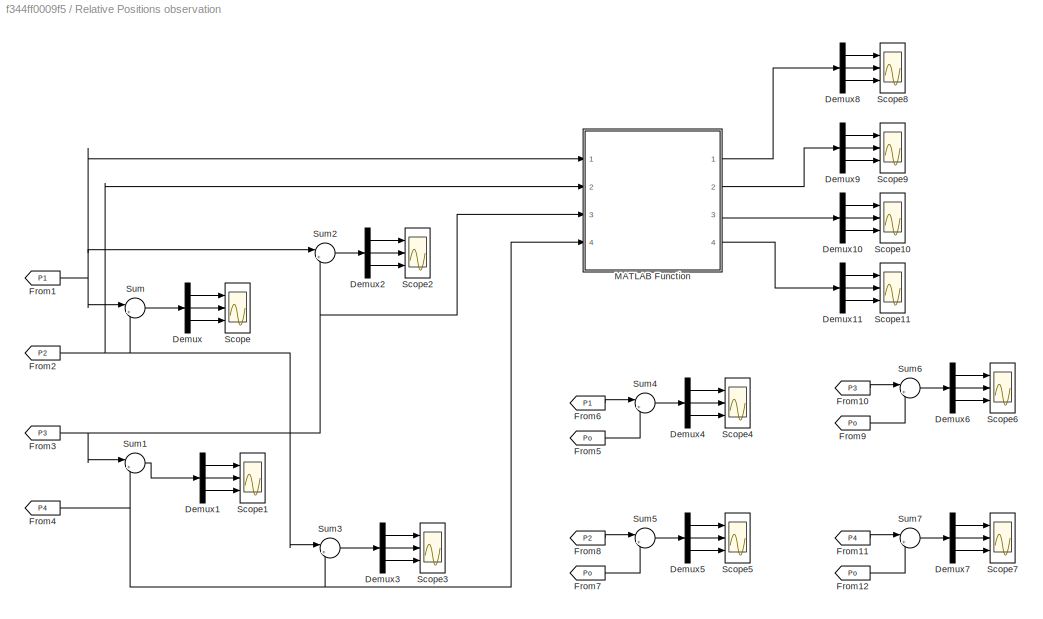
BLOCK [SubSystem] Relative Positions observation
  Ports = []
  RequestExecContextInheritance = off
BLOCK [Demux] Relative Positions observation/Demux
  DisplayOption = bar
  Outputs = 3
  Ports = [1, 3]
BLOCK [Demux] Relative Positions observation/Demux1
  DisplayOption = bar
  Outputs = 3
  Ports = [1, 3]
BLOCK [Demux] Relative Positions observation/Demux10
  DisplayOption = bar
  Outputs = 3
  Ports = [1, 3]
BLOCK [Demux] Relative Positions observation/Demux11
  DisplayOption = bar
  Outputs = 3
  Ports = [1, 3]
BLOCK [Demux] Relative Positions observation/Demux2
  DisplayOption = bar
  Outputs = 3
  Ports = [1, 3]
BLOCK [Demux] Relative Positions observation/Demux3
  DisplayOption = bar
  Outputs = 3
  Ports = [1, 3]
BLOCK [Demux] Relative Positions observation/Demux4
  DisplayOption = bar
  Outputs = 3
  Ports = [1, 3]
BLOCK [Demux] Relative Positions observation/Demux5
  DisplayOption = bar
  Outputs = 3
  Ports = [1, 3]
BLOCK [Demux] Relative Positions observation/Demux6
  DisplayOption = bar
  Outputs = 3
  Ports = [1, 3]
BLOCK [Demux] Relative Positions observation/Demux7
  DisplayOption = bar
  Outputs = 3
  Ports = [1, 3]
BLOCK [Demux] Relative Positions observation/Demux8
  DisplayOption = bar
  Outputs = 3
  Ports = [1, 3]
BLOCK [Demux] Relative Positions observation/Demux9
  DisplayOption = bar
  Outputs = 3
  Ports = [1, 3]
BLOCK [From] Relative Positions observation/From1
  GotoTag = P1
  TagVisibility = global
BLOCK [From] Relative Positions observation/From10
  GotoTag = P3
  TagVisibility = global
BLOCK [From] Relative Positions observation/From11
  GotoTag = P4
  TagVisibility = global
BLOCK [From] Relative Positions observation/From12
  GotoTag = Po
  TagVisibility = global
BLOCK [From] Relative Positions observation/From2
  GotoTag = P2
  TagVisibility = global
BLOCK [From] Relative Positions observation/From3
  GotoTag = P3
  TagVisibility = global
BLOCK [From] Relative Positions observation/From4
  GotoTag = P4
  TagVisibility = global
BLOCK [From] Relative Positions observation/From5
  GotoTag = Po
  TagVisibility = global
BLOCK [From] Relative Positions observation/From6
  GotoTag = P1
  TagVisibility = global
BLOCK [From] Relative Positions observation/From7
  GotoTag = Po
  TagVisibility = global
BLOCK [From] Relative Positions observation/From8
  GotoTag = P2
  TagVisibility = global
BLOCK [From] Relative Positions observation/From9
  GotoTag = Po
  TagVisibility = global
BLOCK [SubSystem] Relative Positions observation/MATLAB Function
  ErrorFcn = Stateflow.Translate.translate
  PermitHierarchicalResolution = ExplicitOnly
  Ports = [4, 4]
  RequestExecContextInheritance = off
  SFBlockType = MATLAB Function
  TreatAsAtomicUnit = on
BLOCK [Demux] Relative Positions observation/MATLAB Function/ Demux 
  Outputs = 1
  Ports = [1, 1]
BLOCK [S-Function] Relative Positions observation/MATLAB Function/ SFunction 
  EnableBusSupport = on
  FunctionName = sf_sfun
  Parameters = Des_rel_dist
  PortCounts = [4 5]
  Ports = [4, 5]
  SFcnIsStateOwnerBlock = off
  SFunctionDeploymentMode = off
  Tag = Stateflow S-Function Simple_4Quad_payload_03 7
BLOCK [Terminator] Relative Positions observation/MATLAB Function/ Terminator 
BLOCK [Inport] Relative Positions observation/MATLAB Function/P1
  IconDisplay = Port number
BLOCK [Inport] Relative Positions observation/MATLAB Function/P2
  IconDisplay = Port number
  Port = 2
BLOCK [Inport] Relative Positions observation/MATLAB Function/P3
  IconDisplay = Port number
  Port = 3
BLOCK [Inport] Relative Positions observation/MATLAB Function/P4
  IconDisplay = Port number
  Port = 4
BLOCK [Outport] Relative Positions observation/MATLAB Function/e_cons_1
  IconDisplay = Port number
BLOCK [Outport] Relative Positions observation/MATLAB Function/e_cons_2
  IconDisplay = Port number
  Port = 2
BLOCK [Outport] Relative Positions observation/MATLAB Function/e_cons_3
  IconDisplay = Port number
  Port = 3
BLOCK [Outport] Relative Positions observation/MATLAB Function/e_cons_4
  IconDisplay = Port number
  Port = 4
BLOCK [Scope] Relative Positions observation/Scope
  Floating = off
  NumInputPorts = 3
  Ports = [3]
  ScopeSpecificationString = Simulink.scopes.TimeScopeBlockCfg('CurrentConfiguration', extmgr.ConfigurationSet(extmgr.Configuration('Core','General UI',true),extmgr.Configuration('Core','Source UI',true),extmgr.Configuration('Sources','WiredSimulink',true,'DataLoggingVariableName','ScopeData1'),extmgr.Configuration('Visuals','Time Domain',true,'SerializedDisplays',{struct('MinYLimReal','-0.3754','MaxYLimReal','3.37859','YLabe...<+2701ch>
BLOCK [Scope] Relative Positions observation/Scope1
  Floating = off
  NumInputPorts = 3
  Ports = [3]
  ScopeSpecificationString = Simulink.scopes.TimeScopeBlockCfg('CurrentConfiguration', extmgr.ConfigurationSet(extmgr.Configuration('Core','General UI',true),extmgr.Configuration('Core','Source UI',true),extmgr.Configuration('Sources','WiredSimulink',true,'DataLoggingVariableName','ScopeData2'),extmgr.Configuration('Visuals','Time Domain',true,'SerializedDisplays',{struct('MinYLimReal','-0.00062','MaxYLimReal','0.00556','YLab...<+2705ch>
BLOCK [Scope] Relative Positions observation/Scope10
  Floating = off
  NumInputPorts = 3
  Ports = [3]
  ScopeSpecificationString = Simulink.scopes.TimeScopeBlockCfg('CurrentConfiguration', extmgr.ConfigurationSet(extmgr.Configuration('Core','General UI',true),extmgr.Configuration('Core','Source UI',true),extmgr.Configuration('Sources','WiredSimulink',true,'DataLoggingVariableName','e_cons_3','DataLogging',true,'DataLoggingSaveFormat','StructureWithTime'),extmgr.Configuration('Visuals','Time Domain',true,'SerializedDisplays',{...<+2769ch>
BLOCK [Scope] Relative Positions observation/Scope11
  Floating = off
  NumInputPorts = 3
  Ports = [3]
  ScopeSpecificationString = Simulink.scopes.TimeScopeBlockCfg('CurrentConfiguration', extmgr.ConfigurationSet(extmgr.Configuration('Core','General UI',true),extmgr.Configuration('Core','Source UI',true),extmgr.Configuration('Sources','WiredSimulink',true,'DataLoggingVariableName','e_cons_4','DataLogging',true,'DataLoggingSaveFormat','StructureWithTime'),extmgr.Configuration('Visuals','Time Domain',true,'SerializedDisplays',{...<+2768ch>
BLOCK [Scope] Relative Positions observation/Scope2
  Floating = off
  NumInputPorts = 3
  Ports = [3]
  ScopeSpecificationString = Simulink.scopes.TimeScopeBlockCfg('CurrentConfiguration', extmgr.ConfigurationSet(extmgr.Configuration('Core','General UI',true),extmgr.Configuration('Core','Source UI',true),extmgr.Configuration('Sources','WiredSimulink',true,'DataLoggingVariableName','ScopeData3'),extmgr.Configuration('Visuals','Time Domain',true,'SerializedDisplays',{struct('MinYLimReal','-0.19135','MaxYLimReal','1.72219','YLab...<+2705ch>
BLOCK [Scope] Relative Positions observation/Scope3
  Floating = off
  NumInputPorts = 3
  Ports = [3]
  ScopeSpecificationString = Simulink.scopes.TimeScopeBlockCfg('CurrentConfiguration', extmgr.ConfigurationSet(extmgr.Configuration('Core','General UI',true),extmgr.Configuration('Core','Source UI',true),extmgr.Configuration('Sources','WiredSimulink',true,'DataLoggingVariableName','ScopeData4'),extmgr.Configuration('Visuals','Time Domain',true,'SerializedDisplays',{struct('MinYLimReal','-1.87715','MaxYLimReal','0.20857','YLab...<+2705ch>
BLOCK [Scope] Relative Positions observation/Scope4
  Floating = off
  NumInputPorts = 3
  Ports = [3]
  ScopeSpecificationString = Simulink.scopes.TimeScopeBlockCfg('CurrentConfiguration', extmgr.ConfigurationSet(extmgr.Configuration('Core','General UI',true),extmgr.Configuration('Core','Source UI',true),extmgr.Configuration('Sources','WiredSimulink',true,'DataLoggingVariableName','ScopeData5'),extmgr.Configuration('Visuals','Time Domain',true,'SerializedDisplays',{struct('MinYLimReal','-0.18654','MaxYLimReal','1.67886','YLab...<+2701ch>
BLOCK [Scope] Relative Positions observation/Scope5
  Floating = off
  NumInputPorts = 3
  Ports = [3]
  ScopeSpecificationString = Simulink.scopes.TimeScopeBlockCfg('CurrentConfiguration', extmgr.ConfigurationSet(extmgr.Configuration('Core','General UI',true),extmgr.Configuration('Core','Source UI',true),extmgr.Configuration('Sources','WiredSimulink',true,'DataLoggingVariableName','ScopeData6'),extmgr.Configuration('Visuals','Time Domain',true,'SerializedDisplays',{struct('MinYLimReal','-1.86144','MaxYLimReal','0.20683','YLab...<+2701ch>
BLOCK [Scope] Relative Positions observation/Scope6
  Floating = off
  NumInputPorts = 3
  Ports = [3]
  ScopeSpecificationString = Simulink.scopes.TimeScopeBlockCfg('CurrentConfiguration', extmgr.ConfigurationSet(extmgr.Configuration('Core','General UI',true),extmgr.Configuration('Core','Source UI',true),extmgr.Configuration('Sources','WiredSimulink',true,'DataLoggingVariableName','ScopeData7'),extmgr.Configuration('Visuals','Time Domain',true,'SerializedDisplays',{struct('MinYLimReal','-0.19237','MaxYLimReal','0.20987','YLab...<+2701ch>
BLOCK [Scope] Relative Positions observation/Scope7
  Floating = off
  NumInputPorts = 3
  Ports = [3]
  ScopeSpecificationString = Simulink.scopes.TimeScopeBlockCfg('CurrentConfiguration', extmgr.ConfigurationSet(extmgr.Configuration('Core','General UI',true),extmgr.Configuration('Core','Source UI',true),extmgr.Configuration('Sources','WiredSimulink',true,'DataLoggingVariableName','ScopeData8'),extmgr.Configuration('Visuals','Time Domain',true,'SerializedDisplays',{struct('MinYLimReal','-0.19738','MaxYLimReal','0.2059','YLabe...<+2698ch>
BLOCK [Scope] Relative Positions observation/Scope8
  Floating = off
  NumInputPorts = 3
  Ports = [3]
  ScopeSpecificationString = Simulink.scopes.TimeScopeBlockCfg('CurrentConfiguration', extmgr.ConfigurationSet(extmgr.Configuration('Core','General UI',true),extmgr.Configuration('Core','Source UI',true),extmgr.Configuration('Sources','WiredSimulink',true,'DataLoggingVariableName','e_cons_1','DataLogging',true,'DataLoggingSaveFormat','StructureWithTime'),extmgr.Configuration('Visuals','Time Domain',true,'SerializedDisplays',{...<+2762ch>
BLOCK [Scope] Relative Positions observation/Scope9
  Floating = off
  NumInputPorts = 3
  Ports = [3]
  ScopeSpecificationString = Simulink.scopes.TimeScopeBlockCfg('CurrentConfiguration', extmgr.ConfigurationSet(extmgr.Configuration('Core','General UI',true),extmgr.Configuration('Core','Source UI',true),extmgr.Configuration('Sources','WiredSimulink',true,'DataLoggingVariableName','e_cons_2','DataLogging',true,'DataLoggingSaveFormat','StructureWithTime'),extmgr.Configuration('Visuals','Time Domain',true,'SerializedDisplays',{...<+2765ch>
BLOCK [Sum] Relative Positions observation/Sum
  IconShape = round
  InputSameDT = off
  Inputs = |+-
  OutDataTypeStr = Inherit: Inherit via internal rule
  Ports = [2, 1]
  SaturateOnIntegerOverflow = off
BLOCK [Sum] Relative Positions observation/Sum1
  IconShape = round
  InputSameDT = off
  Inputs = |+-
  OutDataTypeStr = Inherit: Inherit via internal rule
  Ports = [2, 1]
  SaturateOnIntegerOverflow = off
BLOCK [Sum] Relative Positions observation/Sum2
  IconShape = round
  InputSameDT = off
  Inputs = |+-
  OutDataTypeStr = Inherit: Inherit via internal rule
  Ports = [2, 1]
  SaturateOnIntegerOverflow = off
BLOCK [Sum] Relative Positions observation/Sum3
  IconShape = round
  InputSameDT = off
  Inputs = |+-
  OutDataTypeStr = Inherit: Inherit via internal rule
  Ports = [2, 1]
  SaturateOnIntegerOverflow = off
BLOCK [Sum] Relative Positions observation/Sum4
  IconShape = round
  InputSameDT = off
  Inputs = |+-
  OutDataTypeStr = Inherit: Inherit via internal rule
  Ports = [2, 1]
  SaturateOnIntegerOverflow = off
BLOCK [Sum] Relative Positions observation/Sum5
  IconShape = round
  InputSameDT = off
  Inputs = |+-
  OutDataTypeStr = Inherit: Inherit via internal rule
  Ports = [2, 1]
  SaturateOnIntegerOverflow = off
BLOCK [Sum] Relative Positions observation/Sum6
  IconShape = round
  InputSameDT = off
  Inputs = |+-
  OutDataTypeStr = Inherit: Inherit via internal rule
  Ports = [2, 1]
  SaturateOnIntegerOverflow = off
BLOCK [Sum] Relative Positions observation/Sum7
  IconShape = round
  InputSameDT = off
  Inputs = |+-
  OutDataTypeStr = Inherit: Inherit via internal rule
  Ports = [2, 1]
  SaturateOnIntegerOverflow = off
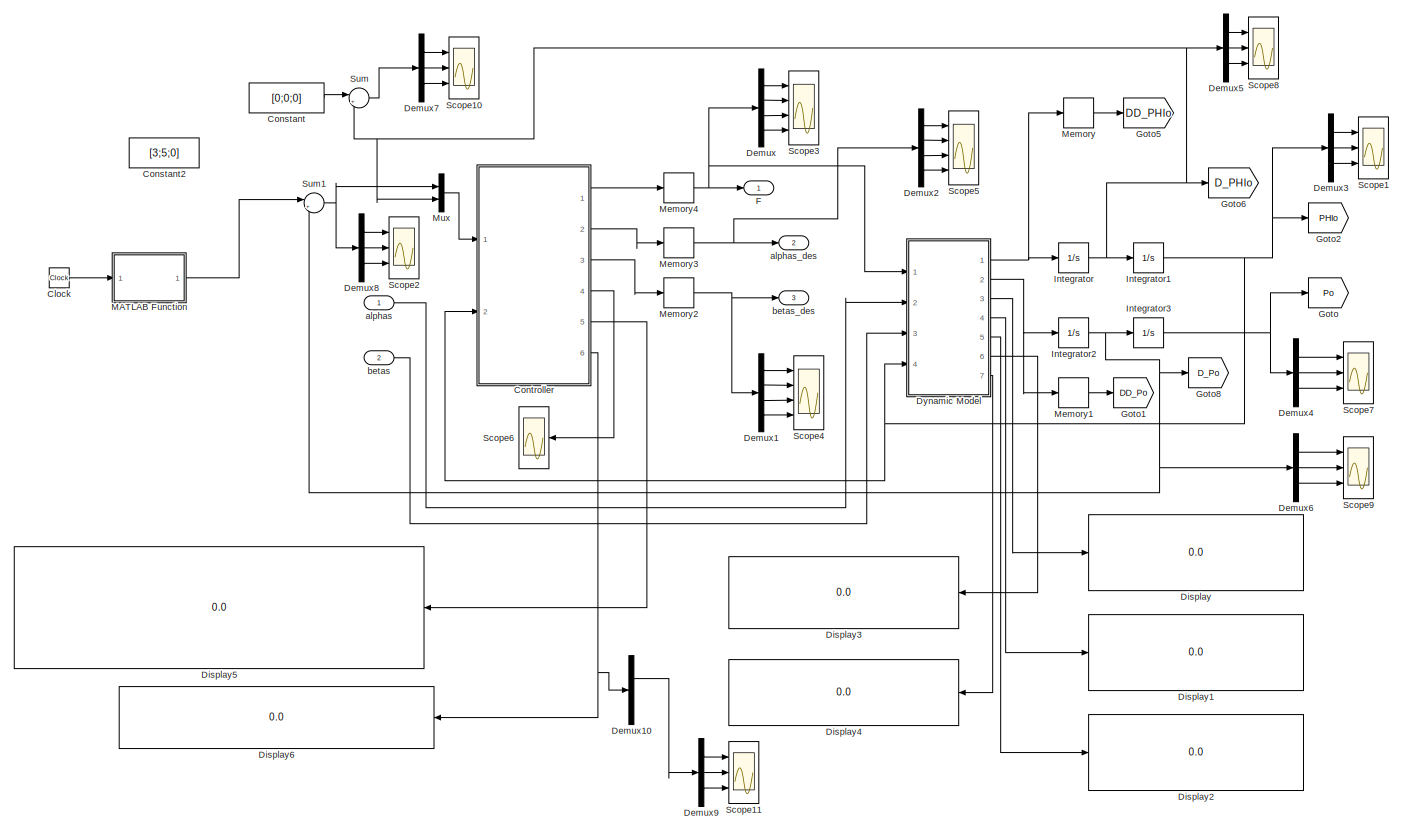
[diagram: payload - part 1/1, most of the canvas]
BLOCK [SubSystem] payload
  Ports = [2, 3]
  RequestExecContextInheritance = off
BLOCK [Clock] payload/Clock
BLOCK [Constant] payload/Constant
  Value = [0;0;0]
BLOCK [Constant] payload/Constant2
  Value = [3;5;0]
BLOCK [SubSystem] payload/Controller
  ErrorFcn = Stateflow.Translate.translate
  PermitHierarchicalResolution = ExplicitOnly
  Ports = [2, 6]
  RequestExecContextInheritance = off
  SFBlockType = MATLAB Function
  TreatAsAtomicUnit = on
BLOCK [Demux] payload/Controller/ Demux 
  Outputs = 1
  Ports = [1, 1]
BLOCK [S-Function] payload/Controller/ SFunction 
  EnableBusSupport = on
  FunctionName = sf_sfun
  Parameters = Des_rel_dist,Ix,Iy,Iz,M,Md,d1,d2,ge,l
  PortCounts = [2 7]
  Ports = [2, 7]
  SFcnIsStateOwnerBlock = off
  SFunctionDeploymentMode = off
  Tag = Stateflow S-Function Simple_4Quad_payload_03 1
BLOCK [Terminator] payload/Controller/ Terminator 
BLOCK [Outport] payload/Controller/Alpha_Des
  IconDisplay = Port number
  Port = 2
BLOCK [Outport] payload/Controller/B
  IconDisplay = Port number
  Port = 5
BLOCK [Outport] payload/Controller/Beta_Des
  IconDisplay = Port number
  Port = 3
BLOCK [Outport] payload/Controller/F
  IconDisplay = Port number
BLOCK [Outport] payload/Controller/OUT
  IconDisplay = Port number
  Port = 4
BLOCK [Inport] payload/Controller/PHI
  IconDisplay = Port number
  Port = 2
BLOCK [Outport] payload/Controller/U
  IconDisplay = Port number
  Port = 6
BLOCK [Inport] payload/Controller/e
  IconDisplay = Port number
BLOCK [Demux] payload/Demux
  DisplayOption = bar
  Ports = [1, 4]
BLOCK [Demux] payload/Demux1
  DisplayOption = bar
  Ports = [1, 4]
BLOCK [Demux] payload/Demux10
  DisplayOption = bar
  Outputs = 2
  Ports = [1, 2]
BLOCK [Demux] payload/Demux2
  DisplayOption = bar
  Ports = [1, 4]
BLOCK [Demux] payload/Demux3
  DisplayOption = bar
  Outputs = 3
  Ports = [1, 3]
BLOCK [Demux] payload/Demux4
  DisplayOption = bar
  Outputs = 3
  Ports = [1, 3]
BLOCK [Demux] payload/Demux5
  DisplayOption = bar
  Outputs = 3
  Ports = [1, 3]
BLOCK [Demux] payload/Demux6
  DisplayOption = bar
  Outputs = 3
  Ports = [1, 3]
BLOCK [Demux] payload/Demux7
  DisplayOption = bar
  Outputs = 3
  Ports = [1, 3]
BLOCK [Demux] payload/Demux8
  DisplayOption = bar
  Outputs = 3
  Ports = [1, 3]
BLOCK [Demux] payload/Demux9
  DisplayOption = bar
  Outputs = 3
  Ports = [1, 3]
BLOCK [Display] payload/Display
  Decimation = 1
  Ports = [1]
BLOCK [Display] payload/Display1
  Decimation = 1
  Ports = [1]
BLOCK [Display] payload/Display2
  Decimation = 1
  Ports = [1]
BLOCK [Display] payload/Display3
  Decimation = 1
  Ports = [1]
BLOCK [Display] payload/Display4
  Decimation = 1
  Ports = [1]
BLOCK [Display] payload/Display5
  Decimation = 1
  Ports = [1]
BLOCK [Display] payload/Display6
  Decimation = 1
  Ports = [1]
BLOCK [SubSystem] payload/Dynamic Model
  ErrorFcn = Stateflow.Translate.translate
  PermitHierarchicalResolution = ExplicitOnly
  Ports = [4, 7]
  RequestExecContextInheritance = off
  SFBlockType = MATLAB Function
  TreatAsAtomicUnit = on
BLOCK [Demux] payload/Dynamic Model/ Demux 
  Outputs = 1
  Ports = [1, 1]
BLOCK [S-Function] payload/Dynamic Model/ SFunction 
  EnableBusSupport = on
  FunctionName = sf_sfun
  Parameters = Ix,Iy,Iz,M,d1,d2,ge
  PortCounts = [4 8]
  Ports = [4, 8]
  SFcnIsStateOwnerBlock = off
  SFunctionDeploymentMode = off
  Tag = Stateflow S-Function Simple_4Quad_payload_03 2
BLOCK [Terminator] payload/Dynamic Model/ Terminator 
BLOCK [Outport] payload/Dynamic Model/DD_P
  IconDisplay = Port number
  Port = 2
BLOCK [Outport] payload/Dynamic Model/DD_PHI
  IconDisplay = Port number
BLOCK [Inport] payload/Dynamic Model/PHI
  IconDisplay = Port number
  Port = 4
BLOCK [Outport] payload/Dynamic Model/R1
  IconDisplay = Port number
  Port = 3
BLOCK [Outport] payload/Dynamic Model/R2
  IconDisplay = Port number
  Port = 4
BLOCK [Outport] payload/Dynamic Model/R3
  IconDisplay = Port number
  Port = 5
BLOCK [Outport] payload/Dynamic Model/R4
  IconDisplay = Port number
  Port = 6
BLOCK [Outport] payload/Dynamic Model/Ro
  IconDisplay = Port number
  Port = 7
BLOCK [Inport] payload/Dynamic Model/alphas
  IconDisplay = Port number
  Port = 2
BLOCK [Inport] payload/Dynamic Model/betas
  IconDisplay = Port number
  Port = 3
BLOCK [Inport] payload/Dynamic Model/fs
  IconDisplay = Port number
BLOCK [Outport] payload/F
  IconDisplay = Port number
BLOCK [Goto] payload/Goto
  GotoTag = Po
  TagVisibility = global
BLOCK [Goto] payload/Goto1
  GotoTag = DD_Po
  TagVisibility = global
BLOCK [Goto] payload/Goto2
  GotoTag = PHIo
  TagVisibility = global
BLOCK [Goto] payload/Goto5
  GotoTag = DD_PHIo
  TagVisibility = global
BLOCK [Goto] payload/Goto6
  GotoTag = D_PHIo
  TagVisibility = global
BLOCK [Goto] payload/Goto8
  GotoTag = D_Po
  TagVisibility = global
BLOCK [Integrator] payload/Integrator
  InitialCondition = zeros(3,1)
  Ports = [1, 1]
BLOCK [Integrator] payload/Integrator1
  InitialCondition = zeros(3,1)
  Ports = [1, 1]
BLOCK [Integrator] payload/Integrator2
  InitialCondition = zeros(3,1)
  Ports = [1, 1]
BLOCK [Integrator] payload/Integrator3
  InitialCondition = [0;0;0]
  Ports = [1, 1]
BLOCK [SubSystem] payload/MATLAB Function
  ErrorFcn = Stateflow.Translate.translate
  PermitHierarchicalResolution = ExplicitOnly
  Ports = [1, 1]
  RequestExecContextInheritance = off
  SFBlockType = MATLAB Function
  TreatAsAtomicUnit = on
BLOCK [Demux] payload/MATLAB Function/ Demux 
  Outputs = 1
  Ports = [1, 1]
BLOCK [S-Function] payload/MATLAB Function/ SFunction 
  EnableBusSupport = on
  FunctionName = sf_sfun
  PortCounts = [1 2]
  Ports = [1, 2]
  SFcnIsStateOwnerBlock = off
  SFunctionDeploymentMode = off
  Tag = Stateflow S-Function Simple_4Quad_payload_03 8
BLOCK [Terminator] payload/MATLAB Function/ Terminator 
BLOCK [Outport] payload/MATLAB Function/Vd
  IconDisplay = Port number
BLOCK [Inport] payload/MATLAB Function/t
  IconDisplay = Port number
BLOCK [Memory] payload/Memory
  InitialCondition = zeros(3,1)
BLOCK [Memory] payload/Memory1
  InitialCondition = zeros(3,1)
BLOCK [Memory] payload/Memory2
  InitialCondition = [0;pi;pi/2;-pi/2]
BLOCK [Memory] payload/Memory3
  InitialCondition = pi/2*ones(4,1)
BLOCK [Memory] payload/Memory4
  InitialCondition = zeros(4,1)
BLOCK [Mux] payload/Mux
  DisplayOption = bar
  Inputs = 2
  Ports = [2, 1]
BLOCK [Scope] payload/Scope1
  Floating = off
  NumInputPorts = 3
  Ports = [3]
  ScopeSpecificationString = Simulink.scopes.TimeScopeBlockCfg('CurrentConfiguration', extmgr.ConfigurationSet(extmgr.Configuration('Core','General UI',true),extmgr.Configuration('Core','Source UI',true),extmgr.Configuration('Sources','WiredSimulink',true,'DataLoggingVariableName','Phio','DataLogging',true,'DataLoggingSaveFormat','StructureWithTime'),extmgr.Configuration('Visuals','Time Domain',true,'SerializedDisplays',{stru...<+2808ch>
BLOCK [Scope] payload/Scope10
  Floating = off
  NumInputPorts = 3
  Ports = [3]
  ScopeSpecificationString = Simulink.scopes.TimeScopeBlockCfg('CurrentConfiguration', extmgr.ConfigurationSet(extmgr.Configuration('Core','General UI',true),extmgr.Configuration('Core','Source UI',true),extmgr.Configuration('Sources','WiredSimulink',true,'DataLoggingVariableName','ScopeData7'),extmgr.Configuration('Visuals','Time Domain',true,'SerializedDisplays',{struct('MinYLimReal','-1.00000','MaxYLimReal','1.00000','YLab...<+2753ch>
BLOCK [Scope] payload/Scope11
  Floating = off
  NumInputPorts = 3
  Ports = [3]
  ScopeSpecificationString = Simulink.scopes.TimeScopeBlockCfg('CurrentConfiguration', extmgr.ConfigurationSet(extmgr.Configuration('Core','General UI',true),extmgr.Configuration('Core','Source UI',true),extmgr.Configuration('Sources','WiredSimulink',true,'DataLoggingVariableName','Uo','DataLogging',true,'DataLoggingSaveFormat','StructureWithTime'),extmgr.Configuration('Visuals','Time Domain',true,'SerializedDisplays',{struct...<+2805ch>
BLOCK [Scope] payload/Scope2
  Floating = off
  NumInputPorts = 3
  Ports = [3]
  ScopeSpecificationString = Simulink.scopes.TimeScopeBlockCfg('CurrentConfiguration', extmgr.ConfigurationSet(extmgr.Configuration('Core','General UI',true),extmgr.Configuration('Core','Source UI',true),extmgr.Configuration('Sources','WiredSimulink',true,'DataLoggingVariableName','e_Vo','DataLogging',true,'DataLoggingSaveFormat','StructureWithTime'),extmgr.Configuration('Visuals','Time Domain',true,'SerializedDisplays',{stru...<+2814ch>
BLOCK [Scope] payload/Scope3
  Floating = off
  NumInputPorts = 4
  Ports = [4]
  ScopeSpecificationString = Simulink.scopes.TimeScopeBlockCfg('CurrentConfiguration', extmgr.ConfigurationSet(extmgr.Configuration('Core','General UI',true),extmgr.Configuration('Core','Source UI',true),extmgr.Configuration('Sources','WiredSimulink',true,'DataLoggingVariableName','f_des','DataLogging',true,'DataLoggingSaveFormat','StructureWithTime'),extmgr.Configuration('Visuals','Time Domain',true,'SerializedDisplays',{str...<+3497ch>
BLOCK [Scope] payload/Scope4
  Floating = off
  NumInputPorts = 4
  Ports = [4]
  ScopeSpecificationString = Simulink.scopes.TimeScopeBlockCfg('CurrentConfiguration', extmgr.ConfigurationSet(extmgr.Configuration('Core','General UI',true),extmgr.Configuration('Core','Source UI',true),extmgr.Configuration('Sources','WiredSimulink',true,'DataLoggingVariableName','Beta_des','DataLogging',true,'DataLoggingSaveFormat','StructureWithTime'),extmgr.Configuration('Visuals','Time Domain',true,'SerializedDisplays',{...<+3509ch>
BLOCK [Scope] payload/Scope5
  Floating = off
  NumInputPorts = 4
  Ports = [4]
  ScopeSpecificationString = Simulink.scopes.TimeScopeBlockCfg('CurrentConfiguration', extmgr.ConfigurationSet(extmgr.Configuration('Core','General UI',true),extmgr.Configuration('Core','Source UI',true),extmgr.Configuration('Sources','WiredSimulink',true,'DataLoggingVariableName','Alpha_des','DataLogging',true,'DataLoggingSaveFormat','StructureWithTime'),extmgr.Configuration('Visuals','Time Domain',true,'SerializedDisplays',...<+3511ch>
BLOCK [Scope] payload/Scope6
  Floating = off
  NumInputPorts = 1
  Ports = [1]
  ScopeSpecificationString = Simulink.scopes.TimeScopeBlockCfg('CurrentConfiguration', extmgr.ConfigurationSet(extmgr.Configuration('Core','General UI',true),extmgr.Configuration('Core','Source UI',true),extmgr.Configuration('Sources','WiredSimulink',true,'DataLoggingVariableName','ScopeData12'),extmgr.Configuration('Visuals','Time Domain',true,'SerializedDisplays',{struct('MinYLimReal','-1.48614','MaxYLimReal','11.08601','YL...<+1550ch>
BLOCK [Scope] payload/Scope7
  Floating = off
  NumInputPorts = 3
  Ports = [3]
  ScopeSpecificationString = Simulink.scopes.TimeScopeBlockCfg('CurrentConfiguration', extmgr.ConfigurationSet(extmgr.Configuration('Core','General UI',true),extmgr.Configuration('Core','Source UI',true),extmgr.Configuration('Sources','WiredSimulink',true,'DataLoggingVariableName','Po','DataLogging',true,'DataLoggingSaveFormat','StructureWithTime'),extmgr.Configuration('Visuals','Time Domain',true,'SerializedDisplays',{struct...<+2807ch>
BLOCK [Scope] payload/Scope8
  Floating = off
  NumInputPorts = 3
  Ports = [3]
  ScopeSpecificationString = Simulink.scopes.TimeScopeBlockCfg('CurrentConfiguration', extmgr.ConfigurationSet(extmgr.Configuration('Core','General UI',true),extmgr.Configuration('Core','Source UI',true),extmgr.Configuration('Sources','WiredSimulink',true,'DataLoggingVariableName','ScopeData5'),extmgr.Configuration('Visuals','Time Domain',true,'SerializedDisplays',{struct('MinYLimReal','-1.00000','MaxYLimReal','1.00000','YLab...<+2753ch>
BLOCK [Scope] payload/Scope9
  Floating = off
  NumInputPorts = 3
  Ports = [3]
  ScopeSpecificationString = Simulink.scopes.TimeScopeBlockCfg('CurrentConfiguration', extmgr.ConfigurationSet(extmgr.Configuration('Core','General UI',true),extmgr.Configuration('Core','Source UI',true),extmgr.Configuration('Sources','WiredSimulink',true,'DataLoggingVariableName','Vo','DataLogging',true,'DataLoggingSaveFormat','StructureWithTime'),extmgr.Configuration('Visuals','Time Domain',true,'SerializedDisplays',{struct...<+2806ch>
BLOCK [Sum] payload/Sum
  IconShape = round
  InputSameDT = off
  Inputs = |+-
  OutDataTypeStr = Inherit: Inherit via internal rule
  Ports = [2, 1]
  SaturateOnIntegerOverflow = off
BLOCK [Sum] payload/Sum1
  IconShape = round
  InputSameDT = off
  Inputs = |+-
  OutDataTypeStr = Inherit: Inherit via internal rule
  Ports = [2, 1]
  SaturateOnIntegerOverflow = off
BLOCK [Inport] payload/alphas
  IconDisplay = Port number
BLOCK [Outport] payload/alphas_des
  IconDisplay = Port number
  Port = 2
BLOCK [Inport] payload/betas
  IconDisplay = Port number
  Port = 2
BLOCK [Outport] payload/betas_des
  IconDisplay = Port number
  Port = 3
LINE Agent1 /Attitude Controller #1/Controller Interpreter #1:1 -> Agent1 /Attitude Controller #1/Controller to Motors #1:1
NET Agent1 /Attitude Controller #1/Controller Interpreter #1:2 -> Agent1 /Attitude Controller #1/Rotational #1:1, Agent1 /Attitude Controller #1/Scope:1
LINE Agent1 /Attitude Controller #1/Controller to Motors #1:1 -> Agent1 /Attitude Controller #1/Omega1_des:1
LINE Agent1 /Attitude Controller #1/Rotational #1/CARE:1 -> Agent1 /Attitude Controller #1/Rotational #1/Integrator1:1
LINE Agent1 /Attitude Controller #1/Rotational #1/Differentiator/Integrator1:1 -> Agent1 /Attitude Controller #1/Rotational #1/Differentiator/Sum:2
LINE Agent1 /Attitude Controller #1/Rotational #1/Differentiator/Integrator:1 -> Agent1 /Attitude Controller #1/Rotational #1/Differentiator/Sliding differentiator:1
LINE Agent1 /Attitude Controller #1/Rotational #1/Differentiator/Sliding differentiator1:1 -> Agent1 /Attitude Controller #1/Rotational #1/Differentiator/Integrator:1
NET Agent1 /Attitude Controller #1/Rotational #1/Differentiator/Sliding differentiator:1 -> Agent1 /Attitude Controller #1/Rotational #1/Differentiator/Dx_d:1, Agent1 /Attitude Controller #1/Rotational #1/Differentiator/Integrator1:1, Agent1 /Attitude Controller #1/Rotational #1/Differentiator/Scope:1
NET Agent1 /Attitude Controller #1/Rotational #1/Differentiator/Sum:1 -> Agent1 /Attitude Controller #1/Rotational #1/Differentiator/Scope1:1, Agent1 /Attitude Controller #1/Rotational #1/Differentiator/Sliding differentiator1:1, Agent1 /Attitude Controller #1/Rotational #1/Differentiator/Sliding differentiator:2
LINE Agent1 /Attitude Controller #1/Rotational #1/Differentiator/x_d:1 -> Agent1 /Attitude Controller #1/Rotational #1/Differentiator/Sum:1
LINE Agent1 /Attitude Controller #1/Rotational #1/Differentiator:1 -> Agent1 /Attitude Controller #1/Rotational #1/main:3
NET Agent1 /Attitude Controller #1/Rotational #1/Integrator1:1 -> Agent1 /Attitude Controller #1/Rotational #1/CARE:1, Agent1 /Attitude Controller #1/Rotational #1/Goto2:1, Agent1 /Attitude Controller #1/Rotational #1/g-Estimator1:3, Agent1 /Attitude Controller #1/Rotational #1/g-Estimator:3, Agent1 /Attitude Controller #1/Rotational #1/main:4
NET Agent1 /Attitude Controller #1/Rotational #1/Integrator2:1 -> Agent1 /Attitude Controller #1/Rotational #1/Goto1:1, Agent1 /Attitude Controller #1/Rotational #1/g-Estimator:2, Agent1 /Attitude Controller #1/Rotational #1/main:6
NET Agent1 /Attitude Controller #1/Rotational #1/Integrator3:1 -> Agent1 /Attitude Controller #1/Rotational #1/Sum:1, Agent1 /Attitude Controller #1/Rotational #1/main:2
NET Agent1 /Attitude Controller #1/Rotational #1/Integrator:1 -> Agent1 /Attitude Controller #1/Rotational #1/CARE:2, Agent1 /Attitude Controller #1/Rotational #1/Goto3:1, Agent1 /Attitude Controller #1/Rotational #1/g-Estimator1:4, Agent1 /Attitude Controller #1/Rotational #1/main:5
LINE Agent1 /Attitude Controller #1/Rotational #1/Memory:1 -> Agent1 /Attitude Controller #1/Rotational #1/variable change:3
NET Agent1 /Attitude Controller #1/Rotational #1/Sum:1 -> Agent1 /Attitude Controller #1/Rotational #1/Scope10:1, Agent1 /Attitude Controller #1/Rotational #1/g-Estimator1:1, Agent1 /Attitude Controller #1/Rotational #1/g-Estimator:1, Agent1 /Attitude Controller #1/Rotational #1/main:1
LINE Agent1 /Attitude Controller #1/Rotational #1/X:1 -> Agent1 /Attitude Controller #1/Rotational #1/variable change:1
LINE Agent1 /Attitude Controller #1/Rotational #1/g-Estimator1:1 -> Agent1 /Attitude Controller #1/Rotational #1/Integrator:1
LINE Agent1 /Attitude Controller #1/Rotational #1/g-Estimator:1 -> Agent1 /Attitude Controller #1/Rotational #1/Integrator2:1
NET Agent1 /Attitude Controller #1/Rotational #1/main:1 -> Agent1 /Attitude Controller #1/Rotational #1/Memory:1, Agent1 /Attitude Controller #1/Rotational #1/ur1:1
NET Agent1 /Attitude Controller #1/Rotational #1/variable change:1 -> Agent1 /Attitude Controller #1/Rotational #1/g-Estimator1:2, Agent1 /Attitude Controller #1/Rotational #1/main:7
LINE Agent1 /Attitude Controller #1/Rotational #1/variable change:2 -> Agent1 /Attitude Controller #1/Rotational #1/Differentiator:1
NET Agent1 /Attitude Controller #1/Rotational #1/variable change:3 -> Agent1 /Attitude Controller #1/Rotational #1/Goto9:1, Agent1 /Attitude Controller #1/Rotational #1/Integrator3:1, Agent1 /Attitude Controller #1/Rotational #1/Sum:2
LINE Agent1 /Attitude Controller #1/Rotational #1/x_rd:1 -> Agent1 /Attitude Controller #1/Rotational #1/variable change:2
LINE Agent1 /Attitude Controller #1/Rotational #1:1 -> Agent1 /Attitude Controller #1/Controller to Motors #1:2
LINE Agent1 /Attitude Controller #1/U1T_des:1 -> Agent1 /Attitude Controller #1/Controller Interpreter #1:1
LINE Agent1 /Attitude Controller #1/X1R:1 -> Agent1 /Attitude Controller #1/Rotational #1:2
NET Agent1 /Attitude Controller #1:1 -> Agent1 /Goto9:1, Agent1 /Quadrotor Plant #1:1
LINE Agent1 /From1:1 -> Agent1 /Link angle computation #1:2
LINE Agent1 /From2:1 -> Agent1 /Link dynamic Model #1:10
LINE Agent1 /From3:1 -> Agent1 /Link dynamic Model #1:8
LINE Agent1 /From4:1 -> Agent1 /Link dynamic Model #1:9
LINE Agent1 /From5:1 -> Agent1 /Link dynamic Model #1:12
LINE Agent1 /From6:1 -> Agent1 /Link angle computation #1:3
LINE Agent1 /From7:1 -> Agent1 /Link dynamic Model #1:11
NET Agent1 /Link angle computation #1:1 -> Agent1 /Goto4:1, Agent1 /Link dynamic Model #1:4, Agent1 /PID_alpha1:2, Agent1 /alpha1:1
NET Agent1 /Link angle computation #1:2 -> Agent1 /Goto5:1, Agent1 /Link dynamic Model #1:5, Agent1 /PID_beta1:2, Agent1 /beta1:1
LINE Agent1 /Link angle computation #1:3 -> Agent1 /Goto6:1
LINE Agent1 /Link dynamic Model #1:1 -> Agent1 /Memory1:1
LINE Agent1 /Link dynamic Model #1:2 -> Agent1 /Memory2:1
NET Agent1 /Memory1:1 -> Agent1 /Attitude Controller #1:1, Agent1 /Goto1:1
LINE Agent1 /Memory2:1 -> Agent1 /Goto:1
LINE Agent1 /PID_alpha1/D_alpha1:1 -> Agent1 /PID_alpha1/Sum1:2
NET Agent1 /PID_alpha1/PID Controller1:1 -> Agent1 /PID_alpha1/N1:1, Agent1 /PID_alpha1/Scope3:3
LINE Agent1 /PID_alpha1/PID Controller:1 -> Agent1 /PID_alpha1/Sum1:1
NET Agent1 /PID_alpha1/Sum1:1 -> Agent1 /PID_alpha1/PID Controller1:1, Agent1 /PID_alpha1/Scope3:2
NET Agent1 /PID_alpha1/Sum:1 -> Agent1 /PID_alpha1/PID Controller:1, Agent1 /PID_alpha1/Scope3:1
LINE Agent1 /PID_alpha1/alpha1:1 -> Agent1 /PID_alpha1/Sum:2
LINE Agent1 /PID_alpha1/alpha1_des:1 -> Agent1 /PID_alpha1/Sum:1
LINE Agent1 /PID_alpha1:1 -> Agent1 /Link dynamic Model #1:1
LINE Agent1 /PID_beta1/D_beta1:1 -> Agent1 /PID_beta1/Sum1:2
NET Agent1 /PID_beta1/PID Controller1:1 -> Agent1 /PID_beta1/S1:1, Agent1 /PID_beta1/Scope3:3
LINE Agent1 /PID_beta1/PID Controller:1 -> Agent1 /PID_beta1/Sum1:1
NET Agent1 /PID_beta1/Sum1:1 -> Agent1 /PID_beta1/PID Controller1:1, Agent1 /PID_beta1/Scope3:2
NET Agent1 /PID_beta1/Sum:1 -> Agent1 /PID_beta1/PID Controller:1, Agent1 /PID_beta1/Scope3:1
LINE Agent1 /PID_beta1/beta1:1 -> Agent1 /PID_beta1/Sum:2
LINE Agent1 /PID_beta1/beta1_des:1 -> Agent1 /PID_beta1/Sum:1
LINE Agent1 /PID_beta1:1 -> Agent1 /Link dynamic Model #1:2
LINE Agent1 /Quadrotor Plant #1/Clock:1 -> Agent1 /Quadrotor Plant #1/MATLAB Function:4
NET Agent1 /Quadrotor Plant #1/Integrator1:1 -> Agent1 /Quadrotor Plant #1/MATLAB Function:2, Agent1 /Quadrotor Plant #1/XR1:1
NET Agent1 /Quadrotor Plant #1/Integrator:1 -> Agent1 /Quadrotor Plant #1/MATLAB Function:1, Agent1 /Quadrotor Plant #1/XT1:1
LINE Agent1 /Quadrotor Plant #1/MATLAB Function:1 -> Agent1 /Quadrotor Plant #1/Integrator:1
LINE Agent1 /Quadrotor Plant #1/MATLAB Function:2 -> Agent1 /Quadrotor Plant #1/Integrator1:1
LINE Agent1 /Quadrotor Plant #1/Omega1_des:1 -> Agent1 /Quadrotor Plant #1/MATLAB Function:3
NET Agent1 /Quadrotor Plant #1:1 -> Agent1 /Goto2:1, Agent1 /Link angle computation #1:1
NET Agent1 /Quadrotor Plant #1:2 -> Agent1 /Attitude Controller #1:2, Agent1 /Goto3:1
LINE Agent1 /alpha1_des:1 -> Agent1 /PID_alpha1:1
LINE Agent1 /beta1_des:1 -> Agent1 /PID_beta1:1
LINE Agent1 /f1:1 -> Agent1 /Link dynamic Model #1:3
LINE Agent1 :1 -> Mux:1
LINE Agent1 :2 -> Mux1:1
LINE Agent2/Attitude Controller #2/Controller Interpreter #2:1 -> Agent2/Attitude Controller #2/Controller to Motors #2:1
NET Agent2/Attitude Controller #2/Controller Interpreter #2:2 -> Agent2/Attitude Controller #2/Rotational #2:1, Agent2/Attitude Controller #2/Scope:1
LINE Agent2/Attitude Controller #2/Controller to Motors #2:1 -> Agent2/Attitude Controller #2/Omega2_des:1
LINE Agent2/Attitude Controller #2/Rotational #2/CARE:1 -> Agent2/Attitude Controller #2/Rotational #2/Integrator1:1
LINE Agent2/Attitude Controller #2/Rotational #2/Differentiator/Integrator1:1 -> Agent2/Attitude Controller #2/Rotational #2/Differentiator/Sum:2
LINE Agent2/Attitude Controller #2/Rotational #2/Differentiator/Integrator:1 -> Agent2/Attitude Controller #2/Rotational #2/Differentiator/Sliding differentiator:1
LINE Agent2/Attitude Controller #2/Rotational #2/Differentiator/Sliding differentiator1:1 -> Agent2/Attitude Controller #2/Rotational #2/Differentiator/Integrator:1
NET Agent2/Attitude Controller #2/Rotational #2/Differentiator/Sliding differentiator:1 -> Agent2/Attitude Controller #2/Rotational #2/Differentiator/Dx_d:1, Agent2/Attitude Controller #2/Rotational #2/Differentiator/Integrator1:1, Agent2/Attitude Controller #2/Rotational #2/Differentiator/Scope:1
NET Agent2/Attitude Controller #2/Rotational #2/Differentiator/Sum:1 -> Agent2/Attitude Controller #2/Rotational #2/Differentiator/Scope1:1, Agent2/Attitude Controller #2/Rotational #2/Differentiator/Sliding differentiator1:1, Agent2/Attitude Controller #2/Rotational #2/Differentiator/Sliding differentiator:2
LINE Agent2/Attitude Controller #2/Rotational #2/Differentiator/x_d:1 -> Agent2/Attitude Controller #2/Rotational #2/Differentiator/Sum:1
LINE Agent2/Attitude Controller #2/Rotational #2/Differentiator:1 -> Agent2/Attitude Controller #2/Rotational #2/main:3
NET Agent2/Attitude Controller #2/Rotational #2/Integrator1:1 -> Agent2/Attitude Controller #2/Rotational #2/CARE:1, Agent2/Attitude Controller #2/Rotational #2/Goto2:1, Agent2/Attitude Controller #2/Rotational #2/g-Estimator1:3, Agent2/Attitude Controller #2/Rotational #2/g-Estimator:3, Agent2/Attitude Controller #2/Rotational #2/main:4
NET Agent2/Attitude Controller #2/Rotational #2/Integrator2:1 -> Agent2/Attitude Controller #2/Rotational #2/Goto1:1, Agent2/Attitude Controller #2/Rotational #2/g-Estimator:2, Agent2/Attitude Controller #2/Rotational #2/main:6
NET Agent2/Attitude Controller #2/Rotational #2/Integrator3:1 -> Agent2/Attitude Controller #2/Rotational #2/Sum:1, Agent2/Attitude Controller #2/Rotational #2/main:2
NET Agent2/Attitude Controller #2/Rotational #2/Integrator:1 -> Agent2/Attitude Controller #2/Rotational #2/CARE:2, Agent2/Attitude Controller #2/Rotational #2/Goto3:1, Agent2/Attitude Controller #2/Rotational #2/g-Estimator1:4, Agent2/Attitude Controller #2/Rotational #2/main:5
LINE Agent2/Attitude Controller #2/Rotational #2/Memory:1 -> Agent2/Attitude Controller #2/Rotational #2/variable change:3
NET Agent2/Attitude Controller #2/Rotational #2/Sum:1 -> Agent2/Attitude Controller #2/Rotational #2/Scope10:1, Agent2/Attitude Controller #2/Rotational #2/g-Estimator1:1, Agent2/Attitude Controller #2/Rotational #2/g-Estimator:1, Agent2/Attitude Controller #2/Rotational #2/main:1
LINE Agent2/Attitude Controller #2/Rotational #2/X:1 -> Agent2/Attitude Controller #2/Rotational #2/variable change:1
LINE Agent2/Attitude Controller #2/Rotational #2/g-Estimator1:1 -> Agent2/Attitude Controller #2/Rotational #2/Integrator:1
LINE Agent2/Attitude Controller #2/Rotational #2/g-Estimator:1 -> Agent2/Attitude Controller #2/Rotational #2/Integrator2:1
NET Agent2/Attitude Controller #2/Rotational #2/main:1 -> Agent2/Attitude Controller #2/Rotational #2/Memory:1, Agent2/Attitude Controller #2/Rotational #2/ur:1
NET Agent2/Attitude Controller #2/Rotational #2/variable change:1 -> Agent2/Attitude Controller #2/Rotational #2/g-Estimator1:2, Agent2/Attitude Controller #2/Rotational #2/main:7
LINE Agent2/Attitude Controller #2/Rotational #2/variable change:2 -> Agent2/Attitude Controller #2/Rotational #2/Differentiator:1
NET Agent2/Attitude Controller #2/Rotational #2/variable change:3 -> Agent2/Attitude Controller #2/Rotational #2/Goto9:1, Agent2/Attitude Controller #2/Rotational #2/Integrator3:1, Agent2/Attitude Controller #2/Rotational #2/Sum:2
LINE Agent2/Attitude Controller #2/Rotational #2/x_rd:1 -> Agent2/Attitude Controller #2/Rotational #2/variable change:2
LINE Agent2/Attitude Controller #2/Rotational #2:1 -> Agent2/Attitude Controller #2/Controller to Motors #2:2
LINE Agent2/Attitude Controller #2/U2T_des:1 -> Agent2/Attitude Controller #2/Controller Interpreter #2:1
LINE Agent2/Attitude Controller #2/X2R:1 -> Agent2/Attitude Controller #2/Rotational #2:2
NET Agent2/Attitude Controller #2:1 -> Agent2/Goto9:1, Agent2/Quadrotor Plant #2:1
LINE Agent2/From1:1 -> Agent2/Link angle computation #2:2
LINE Agent2/From2:1 -> Agent2/Link dynamic Model #2:10
LINE Agent2/From3:1 -> Agent2/Link dynamic Model #2:8
LINE Agent2/From4:1 -> Agent2/Link dynamic Model #2:9
LINE Agent2/From5:1 -> Agent2/Link dynamic Model #2:12
LINE Agent2/From6:1 -> Agent2/Link angle computation #2:3
LINE Agent2/From7:1 -> Agent2/Link dynamic Model #2:11
NET Agent2/Link angle computation #2:1 -> Agent2/Goto4:1, Agent2/Link dynamic Model #2:4, Agent2/PID_alpha2:2, Agent2/alpha2:1
NET Agent2/Link angle computation #2:2 -> Agent2/Goto5:1, Agent2/Link dynamic Model #2:5, Agent2/PID_beta2:2, Agent2/beta2:1
LINE Agent2/Link angle computation #2:3 -> Agent2/Goto6:1
LINE Agent2/Link dynamic Model #2:1 -> Agent2/Memory1:1
LINE Agent2/Link dynamic Model #2:2 -> Agent2/Memory2:1
NET Agent2/Memory1:1 -> Agent2/Attitude Controller #2:1, Agent2/Goto1:1
LINE Agent2/Memory2:1 -> Agent2/Goto:1
LINE Agent2/PID_alpha2/D_alpha2:1 -> Agent2/PID_alpha2/Sum1:2
LINE Agent2/PID_alpha2/PID Controller1:1 -> Agent2/PID_alpha2/N2:1
LINE Agent2/PID_alpha2/PID Controller:1 -> Agent2/PID_alpha2/Sum1:1
LINE Agent2/PID_alpha2/Sum1:1 -> Agent2/PID_alpha2/PID Controller1:1
LINE Agent2/PID_alpha2/Sum:1 -> Agent2/PID_alpha2/PID Controller:1
LINE Agent2/PID_alpha2/alpha2:1 -> Agent2/PID_alpha2/Sum:2
LINE Agent2/PID_alpha2/alpha2_des:1 -> Agent2/PID_alpha2/Sum:1
LINE Agent2/PID_alpha2:1 -> Agent2/Link dynamic Model #2:1
LINE Agent2/PID_beta2/D_beta2:1 -> Agent2/PID_beta2/Sum1:2
LINE Agent2/PID_beta2/PID Controller1:1 -> Agent2/PID_beta2/S2:1
LINE Agent2/PID_beta2/PID Controller:1 -> Agent2/PID_beta2/Sum1:1
LINE Agent2/PID_beta2/Sum1:1 -> Agent2/PID_beta2/PID Controller1:1
LINE Agent2/PID_beta2/Sum:1 -> Agent2/PID_beta2/PID Controller:1
LINE Agent2/PID_beta2/beta2:1 -> Agent2/PID_beta2/Sum:2
LINE Agent2/PID_beta2/beta2_des:1 -> Agent2/PID_beta2/Sum:1
LINE Agent2/PID_beta2:1 -> Agent2/Link dynamic Model #2:2
LINE Agent2/Quadrotor Plant #2/Clock:1 -> Agent2/Quadrotor Plant #2/MATLAB Function:4
NET Agent2/Quadrotor Plant #2/Integrator1:1 -> Agent2/Quadrotor Plant #2/MATLAB Function:2, Agent2/Quadrotor Plant #2/XR2:1
NET Agent2/Quadrotor Plant #2/Integrator:1 -> Agent2/Quadrotor Plant #2/MATLAB Function:1, Agent2/Quadrotor Plant #2/XT2:1
LINE Agent2/Quadrotor Plant #2/MATLAB Function:1 -> Agent2/Quadrotor Plant #2/Integrator:1
LINE Agent2/Quadrotor Plant #2/MATLAB Function:2 -> Agent2/Quadrotor Plant #2/Integrator1:1
LINE Agent2/Quadrotor Plant #2/Omega2_des:1 -> Agent2/Quadrotor Plant #2/MATLAB Function:3
NET Agent2/Quadrotor Plant #2:1 -> Agent2/Goto2:1, Agent2/Link angle computation #2:1
NET Agent2/Quadrotor Plant #2:2 -> Agent2/Attitude Controller #2:2, Agent2/Goto3:1
LINE Agent2/alpha2_des:1 -> Agent2/PID_alpha2:1
LINE Agent2/beta2_des:1 -> Agent2/PID_beta2:1
LINE Agent2/f2:1 -> Agent2/Link dynamic Model #2:3
LINE Agent2:1 -> Mux:2
LINE Agent2:2 -> Mux1:2
LINE Agent3/Attitude Controller #3/Controller Interpreter #3:1 -> Agent3/Attitude Controller #3/Controller to Motors #3:1
NET Agent3/Attitude Controller #3/Controller Interpreter #3:2 -> Agent3/Attitude Controller #3/Rotational #3:1, Agent3/Attitude Controller #3/Scope:1
LINE Agent3/Attitude Controller #3/Controller to Motors #3:1 -> Agent3/Attitude Controller #3/Omega3_des:1
LINE Agent3/Attitude Controller #3/Rotational #3/CARE:1 -> Agent3/Attitude Controller #3/Rotational #3/Integrator1:1
LINE Agent3/Attitude Controller #3/Rotational #3/Differentiator/Integrator1:1 -> Agent3/Attitude Controller #3/Rotational #3/Differentiator/Sum:2
LINE Agent3/Attitude Controller #3/Rotational #3/Differentiator/Integrator:1 -> Agent3/Attitude Controller #3/Rotational #3/Differentiator/Sliding differentiator:1
LINE Agent3/Attitude Controller #3/Rotational #3/Differentiator/Sliding differentiator1:1 -> Agent3/Attitude Controller #3/Rotational #3/Differentiator/Integrator:1
NET Agent3/Attitude Controller #3/Rotational #3/Differentiator/Sliding differentiator:1 -> Agent3/Attitude Controller #3/Rotational #3/Differentiator/Dx_d:1, Agent3/Attitude Controller #3/Rotational #3/Differentiator/Integrator1:1, Agent3/Attitude Controller #3/Rotational #3/Differentiator/Scope:1
NET Agent3/Attitude Controller #3/Rotational #3/Differentiator/Sum:1 -> Agent3/Attitude Controller #3/Rotational #3/Differentiator/Scope1:1, Agent3/Attitude Controller #3/Rotational #3/Differentiator/Sliding differentiator1:1, Agent3/Attitude Controller #3/Rotational #3/Differentiator/Sliding differentiator:2
LINE Agent3/Attitude Controller #3/Rotational #3/Differentiator/x_d:1 -> Agent3/Attitude Controller #3/Rotational #3/Differentiator/Sum:1
LINE Agent3/Attitude Controller #3/Rotational #3/Differentiator:1 -> Agent3/Attitude Controller #3/Rotational #3/main:3
NET Agent3/Attitude Controller #3/Rotational #3/Integrator1:1 -> Agent3/Attitude Controller #3/Rotational #3/CARE:1, Agent3/Attitude Controller #3/Rotational #3/Goto2:1, Agent3/Attitude Controller #3/Rotational #3/g-Estimator1:3, Agent3/Attitude Controller #3/Rotational #3/g-Estimator:3, Agent3/Attitude Controller #3/Rotational #3/main:4
NET Agent3/Attitude Controller #3/Rotational #3/Integrator2:1 -> Agent3/Attitude Controller #3/Rotational #3/Goto1:1, Agent3/Attitude Controller #3/Rotational #3/g-Estimator:2, Agent3/Attitude Controller #3/Rotational #3/main:6
NET Agent3/Attitude Controller #3/Rotational #3/Integrator3:1 -> Agent3/Attitude Controller #3/Rotational #3/Sum:1, Agent3/Attitude Controller #3/Rotational #3/main:2
NET Agent3/Attitude Controller #3/Rotational #3/Integrator:1 -> Agent3/Attitude Controller #3/Rotational #3/CARE:2, Agent3/Attitude Controller #3/Rotational #3/Goto3:1, Agent3/Attitude Controller #3/Rotational #3/g-Estimator1:4, Agent3/Attitude Controller #3/Rotational #3/main:5
LINE Agent3/Attitude Controller #3/Rotational #3/Memory:1 -> Agent3/Attitude Controller #3/Rotational #3/variable change:3
NET Agent3/Attitude Controller #3/Rotational #3/Sum:1 -> Agent3/Attitude Controller #3/Rotational #3/Scope10:1, Agent3/Attitude Controller #3/Rotational #3/g-Estimator1:1, Agent3/Attitude Controller #3/Rotational #3/g-Estimator:1, Agent3/Attitude Controller #3/Rotational #3/main:1
LINE Agent3/Attitude Controller #3/Rotational #3/X:1 -> Agent3/Attitude Controller #3/Rotational #3/variable change:1
LINE Agent3/Attitude Controller #3/Rotational #3/g-Estimator1:1 -> Agent3/Attitude Controller #3/Rotational #3/Integrator:1
LINE Agent3/Attitude Controller #3/Rotational #3/g-Estimator:1 -> Agent3/Attitude Controller #3/Rotational #3/Integrator2:1
NET Agent3/Attitude Controller #3/Rotational #3/main:1 -> Agent3/Attitude Controller #3/Rotational #3/Memory:1, Agent3/Attitude Controller #3/Rotational #3/ur:1
NET Agent3/Attitude Controller #3/Rotational #3/variable change:1 -> Agent3/Attitude Controller #3/Rotational #3/g-Estimator1:2, Agent3/Attitude Controller #3/Rotational #3/main:7
LINE Agent3/Attitude Controller #3/Rotational #3/variable change:2 -> Agent3/Attitude Controller #3/Rotational #3/Differentiator:1
NET Agent3/Attitude Controller #3/Rotational #3/variable change:3 -> Agent3/Attitude Controller #3/Rotational #3/Goto9:1, Agent3/Attitude Controller #3/Rotational #3/Integrator3:1, Agent3/Attitude Controller #3/Rotational #3/Sum:2
LINE Agent3/Attitude Controller #3/Rotational #3/x_rd:1 -> Agent3/Attitude Controller #3/Rotational #3/variable change:2
LINE Agent3/Attitude Controller #3/Rotational #3:1 -> Agent3/Attitude Controller #3/Controller to Motors #3:2
LINE Agent3/Attitude Controller #3/U3T_des:1 -> Agent3/Attitude Controller #3/Controller Interpreter #3:1
LINE Agent3/Attitude Controller #3/X3R:1 -> Agent3/Attitude Controller #3/Rotational #3:2
NET Agent3/Attitude Controller #3:1 -> Agent3/Goto9:1, Agent3/Quadrotor Plant #3:1
LINE Agent3/From1:1 -> Agent3/Link angle computation #3:2
LINE Agent3/From2:1 -> Agent3/Link dynamic Model #3:10
LINE Agent3/From3:1 -> Agent3/Link dynamic Model #3:8
LINE Agent3/From4:1 -> Agent3/Link dynamic Model #3:9
LINE Agent3/From5:1 -> Agent3/Link dynamic Model #3:12
LINE Agent3/From6:1 -> Agent3/Link angle computation #3:3
LINE Agent3/From7:1 -> Agent3/Link dynamic Model #3:11
NET Agent3/Link angle computation #3:1 -> Agent3/Goto4:1, Agent3/Link dynamic Model #3:4, Agent3/PID_alpha3:2, Agent3/alpha3:1
NET Agent3/Link angle computation #3:2 -> Agent3/Goto5:1, Agent3/Link dynamic Model #3:5, Agent3/PID_beta3:2, Agent3/beta3:1
LINE Agent3/Link angle computation #3:3 -> Agent3/Goto6:1
LINE Agent3/Link dynamic Model #3:1 -> Agent3/Memory1:1
LINE Agent3/Link dynamic Model #3:2 -> Agent3/Memory2:1
NET Agent3/Memory1:1 -> Agent3/Attitude Controller #3:1, Agent3/Goto1:1
LINE Agent3/Memory2:1 -> Agent3/Goto:1
LINE Agent3/PID_alpha3/D_alpha3:1 -> Agent3/PID_alpha3/Sum1:2
LINE Agent3/PID_alpha3/PID Controller1:1 -> Agent3/PID_alpha3/N3:1
LINE Agent3/PID_alpha3/PID Controller:1 -> Agent3/PID_alpha3/Sum1:1
LINE Agent3/PID_alpha3/Sum1:1 -> Agent3/PID_alpha3/PID Controller1:1
LINE Agent3/PID_alpha3/Sum:1 -> Agent3/PID_alpha3/PID Controller:1
LINE Agent3/PID_alpha3/alpha3:1 -> Agent3/PID_alpha3/Sum:2
LINE Agent3/PID_alpha3/alpha3_des:1 -> Agent3/PID_alpha3/Sum:1
LINE Agent3/PID_alpha3:1 -> Agent3/Link dynamic Model #3:1
LINE Agent3/PID_beta3/D_beta3:1 -> Agent3/PID_beta3/Sum1:2
LINE Agent3/PID_beta3/PID Controller1:1 -> Agent3/PID_beta3/S3:1
LINE Agent3/PID_beta3/PID Controller:1 -> Agent3/PID_beta3/Sum1:1
LINE Agent3/PID_beta3/Sum1:1 -> Agent3/PID_beta3/PID Controller1:1
LINE Agent3/PID_beta3/Sum:1 -> Agent3/PID_beta3/PID Controller:1
LINE Agent3/PID_beta3/beta3:1 -> Agent3/PID_beta3/Sum:2
LINE Agent3/PID_beta3/beta3_des:1 -> Agent3/PID_beta3/Sum:1
LINE Agent3/PID_beta3:1 -> Agent3/Link dynamic Model #3:2
LINE Agent3/Quadrotor Plant #3/Clock:1 -> Agent3/Quadrotor Plant #3/MATLAB Function:4
NET Agent3/Quadrotor Plant #3/Integrator1:1 -> Agent3/Quadrotor Plant #3/MATLAB Function:2, Agent3/Quadrotor Plant #3/XR3:1
NET Agent3/Quadrotor Plant #3/Integrator:1 -> Agent3/Quadrotor Plant #3/MATLAB Function:1, Agent3/Quadrotor Plant #3/XT3:1
LINE Agent3/Quadrotor Plant #3/MATLAB Function:1 -> Agent3/Quadrotor Plant #3/Integrator:1
LINE Agent3/Quadrotor Plant #3/MATLAB Function:2 -> Agent3/Quadrotor Plant #3/Integrator1:1
LINE Agent3/Quadrotor Plant #3/Omega3_des:1 -> Agent3/Quadrotor Plant #3/MATLAB Function:3
NET Agent3/Quadrotor Plant #3:1 -> Agent3/Goto2:1, Agent3/Link angle computation #3:1
NET Agent3/Quadrotor Plant #3:2 -> Agent3/Attitude Controller #3:2, Agent3/Goto3:1
LINE Agent3/alpha3_des:1 -> Agent3/PID_alpha3:1
LINE Agent3/beta3_des:1 -> Agent3/PID_beta3:1
LINE Agent3/f3:1 -> Agent3/Link dynamic Model #3:3
LINE Agent3:1 -> Mux:3
LINE Agent3:2 -> Mux1:3
LINE Agent4/Attitude Controller #4/Controller Interpreter #4:1 -> Agent4/Attitude Controller #4/Controller to Motors #4:1
NET Agent4/Attitude Controller #4/Controller Interpreter #4:2 -> Agent4/Attitude Controller #4/Rotational #4:1, Agent4/Attitude Controller #4/Scope:1
LINE Agent4/Attitude Controller #4/Controller to Motors #4:1 -> Agent4/Attitude Controller #4/Omega4_des:1
LINE Agent4/Attitude Controller #4/Rotational #4/CARE:1 -> Agent4/Attitude Controller #4/Rotational #4/Integrator1:1
LINE Agent4/Attitude Controller #4/Rotational #4/Differentiator/Integrator1:1 -> Agent4/Attitude Controller #4/Rotational #4/Differentiator/Sum:2
LINE Agent4/Attitude Controller #4/Rotational #4/Differentiator/Integrator:1 -> Agent4/Attitude Controller #4/Rotational #4/Differentiator/Sliding differentiator:1
LINE Agent4/Attitude Controller #4/Rotational #4/Differentiator/Sliding differentiator1:1 -> Agent4/Attitude Controller #4/Rotational #4/Differentiator/Integrator:1
NET Agent4/Attitude Controller #4/Rotational #4/Differentiator/Sliding differentiator:1 -> Agent4/Attitude Controller #4/Rotational #4/Differentiator/Dx_d:1, Agent4/Attitude Controller #4/Rotational #4/Differentiator/Integrator1:1, Agent4/Attitude Controller #4/Rotational #4/Differentiator/Scope:1
NET Agent4/Attitude Controller #4/Rotational #4/Differentiator/Sum:1 -> Agent4/Attitude Controller #4/Rotational #4/Differentiator/Scope1:1, Agent4/Attitude Controller #4/Rotational #4/Differentiator/Sliding differentiator1:1, Agent4/Attitude Controller #4/Rotational #4/Differentiator/Sliding differentiator:2
LINE Agent4/Attitude Controller #4/Rotational #4/Differentiator/x_d:1 -> Agent4/Attitude Controller #4/Rotational #4/Differentiator/Sum:1
LINE Agent4/Attitude Controller #4/Rotational #4/Differentiator:1 -> Agent4/Attitude Controller #4/Rotational #4/main:3
NET Agent4/Attitude Controller #4/Rotational #4/Integrator1:1 -> Agent4/Attitude Controller #4/Rotational #4/CARE:1, Agent4/Attitude Controller #4/Rotational #4/Goto2:1, Agent4/Attitude Controller #4/Rotational #4/g-Estimator1:3, Agent4/Attitude Controller #4/Rotational #4/g-Estimator:3, Agent4/Attitude Controller #4/Rotational #4/main:4
NET Agent4/Attitude Controller #4/Rotational #4/Integrator2:1 -> Agent4/Attitude Controller #4/Rotational #4/Goto1:1, Agent4/Attitude Controller #4/Rotational #4/g-Estimator:2, Agent4/Attitude Controller #4/Rotational #4/main:6
NET Agent4/Attitude Controller #4/Rotational #4/Integrator3:1 -> Agent4/Attitude Controller #4/Rotational #4/Sum:1, Agent4/Attitude Controller #4/Rotational #4/main:2
NET Agent4/Attitude Controller #4/Rotational #4/Integrator:1 -> Agent4/Attitude Controller #4/Rotational #4/CARE:2, Agent4/Attitude Controller #4/Rotational #4/Goto3:1, Agent4/Attitude Controller #4/Rotational #4/g-Estimator1:4, Agent4/Attitude Controller #4/Rotational #4/main:5
LINE Agent4/Attitude Controller #4/Rotational #4/Memory:1 -> Agent4/Attitude Controller #4/Rotational #4/variable change:3
NET Agent4/Attitude Controller #4/Rotational #4/Sum:1 -> Agent4/Attitude Controller #4/Rotational #4/Scope10:1, Agent4/Attitude Controller #4/Rotational #4/g-Estimator1:1, Agent4/Attitude Controller #4/Rotational #4/g-Estimator:1, Agent4/Attitude Controller #4/Rotational #4/main:1
LINE Agent4/Attitude Controller #4/Rotational #4/X:1 -> Agent4/Attitude Controller #4/Rotational #4/variable change:1
LINE Agent4/Attitude Controller #4/Rotational #4/g-Estimator1:1 -> Agent4/Attitude Controller #4/Rotational #4/Integrator:1
LINE Agent4/Attitude Controller #4/Rotational #4/g-Estimator:1 -> Agent4/Attitude Controller #4/Rotational #4/Integrator2:1
NET Agent4/Attitude Controller #4/Rotational #4/main:1 -> Agent4/Attitude Controller #4/Rotational #4/Memory:1, Agent4/Attitude Controller #4/Rotational #4/ur:1
NET Agent4/Attitude Controller #4/Rotational #4/variable change:1 -> Agent4/Attitude Controller #4/Rotational #4/g-Estimator1:2, Agent4/Attitude Controller #4/Rotational #4/main:7
LINE Agent4/Attitude Controller #4/Rotational #4/variable change:2 -> Agent4/Attitude Controller #4/Rotational #4/Differentiator:1
NET Agent4/Attitude Controller #4/Rotational #4/variable change:3 -> Agent4/Attitude Controller #4/Rotational #4/Goto9:1, Agent4/Attitude Controller #4/Rotational #4/Integrator3:1, Agent4/Attitude Controller #4/Rotational #4/Sum:2
LINE Agent4/Attitude Controller #4/Rotational #4/x_rd:1 -> Agent4/Attitude Controller #4/Rotational #4/variable change:2
LINE Agent4/Attitude Controller #4/Rotational #4:1 -> Agent4/Attitude Controller #4/Controller to Motors #4:2
LINE Agent4/Attitude Controller #4/U4T_des:1 -> Agent4/Attitude Controller #4/Controller Interpreter #4:1
LINE Agent4/Attitude Controller #4/X4R:1 -> Agent4/Attitude Controller #4/Rotational #4:2
NET Agent4/Attitude Controller #4:1 -> Agent4/Goto9:1, Agent4/Quadrotor Plant #4:1
LINE Agent4/From1:1 -> Agent4/Link angle computation #4:2
LINE Agent4/From2:1 -> Agent4/Link dynamic Model #4:10
LINE Agent4/From3:1 -> Agent4/Link dynamic Model #4:8
LINE Agent4/From4:1 -> Agent4/Link dynamic Model #4:9
LINE Agent4/From5:1 -> Agent4/Link dynamic Model #4:12
LINE Agent4/From6:1 -> Agent4/Link angle computation #4:3
LINE Agent4/From7:1 -> Agent4/Link dynamic Model #4:11
NET Agent4/Link angle computation #4:1 -> Agent4/Goto4:1, Agent4/Link dynamic Model #4:4, Agent4/PID_alpha4:2, Agent4/alpha4:1
NET Agent4/Link angle computation #4:2 -> Agent4/Goto5:1, Agent4/Link dynamic Model #4:5, Agent4/PID_beta4:2, Agent4/beta4:1
LINE Agent4/Link angle computation #4:3 -> Agent4/Goto6:1
LINE Agent4/Link dynamic Model #4:1 -> Agent4/Memory1:1
LINE Agent4/Link dynamic Model #4:2 -> Agent4/Memory2:1
NET Agent4/Memory1:1 -> Agent4/Attitude Controller #4:1, Agent4/Goto1:1
LINE Agent4/Memory2:1 -> Agent4/Goto:1
LINE Agent4/PID_alpha4/D_alpha4:1 -> Agent4/PID_alpha4/Sum1:2
LINE Agent4/PID_alpha4/PID Controller1:1 -> Agent4/PID_alpha4/N4:1
LINE Agent4/PID_alpha4/PID Controller:1 -> Agent4/PID_alpha4/Sum1:1
LINE Agent4/PID_alpha4/Sum1:1 -> Agent4/PID_alpha4/PID Controller1:1
LINE Agent4/PID_alpha4/Sum:1 -> Agent4/PID_alpha4/PID Controller:1
LINE Agent4/PID_alpha4/alpha4:1 -> Agent4/PID_alpha4/Sum:2
LINE Agent4/PID_alpha4/alpha4_des:1 -> Agent4/PID_alpha4/Sum:1
LINE Agent4/PID_alpha4:1 -> Agent4/Link dynamic Model #4:1
LINE Agent4/PID_beta4/D_beta4:1 -> Agent4/PID_beta4/Sum1:2
LINE Agent4/PID_beta4/PID Controller1:1 -> Agent4/PID_beta4/S4:1
LINE Agent4/PID_beta4/PID Controller:1 -> Agent4/PID_beta4/Sum1:1
LINE Agent4/PID_beta4/Sum1:1 -> Agent4/PID_beta4/PID Controller1:1
LINE Agent4/PID_beta4/Sum:1 -> Agent4/PID_beta4/PID Controller:1
LINE Agent4/PID_beta4/beta4:1 -> Agent4/PID_beta4/Sum:2
LINE Agent4/PID_beta4/beta4_des:1 -> Agent4/PID_beta4/Sum:1
LINE Agent4/PID_beta4:1 -> Agent4/Link dynamic Model #4:2
LINE Agent4/Quadrotor Plant #4/Clock:1 -> Agent4/Quadrotor Plant #4/MATLAB Function:4
NET Agent4/Quadrotor Plant #4/Integrator1:1 -> Agent4/Quadrotor Plant #4/MATLAB Function:2, Agent4/Quadrotor Plant #4/XR4:1
NET Agent4/Quadrotor Plant #4/Integrator:1 -> Agent4/Quadrotor Plant #4/MATLAB Function:1, Agent4/Quadrotor Plant #4/XT4:1
LINE Agent4/Quadrotor Plant #4/MATLAB Function:1 -> Agent4/Quadrotor Plant #4/Integrator:1
LINE Agent4/Quadrotor Plant #4/MATLAB Function:2 -> Agent4/Quadrotor Plant #4/Integrator1:1
LINE Agent4/Quadrotor Plant #4/Omega4_des:1 -> Agent4/Quadrotor Plant #4/MATLAB Function:3
NET Agent4/Quadrotor Plant #4:1 -> Agent4/Goto2:1, Agent4/Link angle computation #4:1
NET Agent4/Quadrotor Plant #4:2 -> Agent4/Attitude Controller #4:2, Agent4/Goto3:1
LINE Agent4/alpha4_des:1 -> Agent4/PID_alpha4:1
LINE Agent4/beta4_des:1 -> Agent4/PID_beta4:1
LINE Agent4/f4:1 -> Agent4/Link dynamic Model #4:3
LINE Agent4:1 -> Mux:4
LINE Agent4:2 -> Mux1:4
LINE Demux1:1 -> Agent1 :1
LINE Demux1:2 -> Agent2:1
LINE Demux1:3 -> Agent3:1
LINE Demux1:4 -> Agent4:1
LINE Demux2:1 -> Agent1 :2
LINE Demux2:2 -> Agent2:2
LINE Demux2:3 -> Agent3:2
LINE Demux2:4 -> Agent4:2
LINE Demux3:1 -> Agent1 :3
LINE Demux3:2 -> Agent2:3
LINE Demux3:3 -> Agent3:3
LINE Demux3:4 -> Agent4:3
LINE Memory1:1 -> payload:1
LINE Memory2:1 -> payload:2
LINE Mux1:1 -> Memory2:1
LINE Mux:1 -> Memory1:1
LINE Relative Positions observation/Demux10:1 -> Relative Positions observation/Scope10:1
LINE Relative Positions observation/Demux10:2 -> Relative Positions observation/Scope10:2
LINE Relative Positions observation/Demux10:3 -> Relative Positions observation/Scope10:3
LINE Relative Positions observation/Demux11:1 -> Relative Positions observation/Scope11:1
LINE Relative Positions observation/Demux11:2 -> Relative Positions observation/Scope11:2
LINE Relative Positions observation/Demux11:3 -> Relative Positions observation/Scope11:3
LINE Relative Positions observation/Demux1:1 -> Relative Positions observation/Scope1:1
LINE Relative Positions observation/Demux1:2 -> Relative Positions observation/Scope1:2
LINE Relative Positions observation/Demux1:3 -> Relative Positions observation/Scope1:3
LINE Relative Positions observation/Demux2:1 -> Relative Positions observation/Scope2:1
LINE Relative Positions observation/Demux2:2 -> Relative Positions observation/Scope2:2
LINE Relative Positions observation/Demux2:3 -> Relative Positions observation/Scope2:3
LINE Relative Positions observation/Demux3:1 -> Relative Positions observation/Scope3:1
LINE Relative Positions observation/Demux3:2 -> Relative Positions observation/Scope3:2
LINE Relative Positions observation/Demux3:3 -> Relative Positions observation/Scope3:3
LINE Relative Positions observation/Demux4:1 -> Relative Positions observation/Scope4:1
LINE Relative Positions observation/Demux4:2 -> Relative Positions observation/Scope4:2
LINE Relative Positions observation/Demux4:3 -> Relative Positions observation/Scope4:3
LINE Relative Positions observation/Demux5:1 -> Relative Positions observation/Scope5:1
LINE Relative Positions observation/Demux5:2 -> Relative Positions observation/Scope5:2
LINE Relative Positions observation/Demux5:3 -> Relative Positions observation/Scope5:3
LINE Relative Positions observation/Demux6:1 -> Relative Positions observation/Scope6:1
LINE Relative Positions observation/Demux6:2 -> Relative Positions observation/Scope6:2
LINE Relative Positions observation/Demux6:3 -> Relative Positions observation/Scope6:3
LINE Relative Positions observation/Demux7:1 -> Relative Positions observation/Scope7:1
LINE Relative Positions observation/Demux7:2 -> Relative Positions observation/Scope7:2
LINE Relative Positions observation/Demux7:3 -> Relative Positions observation/Scope7:3
LINE Relative Positions observation/Demux8:1 -> Relative Positions observation/Scope8:1
LINE Relative Positions observation/Demux8:2 -> Relative Positions observation/Scope8:2
LINE Relative Positions observation/Demux8:3 -> Relative Positions observation/Scope8:3
LINE Relative Positions observation/Demux9:1 -> Relative Positions observation/Scope9:1
LINE Relative Positions observation/Demux9:2 -> Relative Positions observation/Scope9:2
LINE Relative Positions observation/Demux9:3 -> Relative Positions observation/Scope9:3
LINE Relative Positions observation/Demux:1 -> Relative Positions observation/Scope:1
LINE Relative Positions observation/Demux:2 -> Relative Positions observation/Scope:2
LINE Relative Positions observation/Demux:3 -> Relative Positions observation/Scope:3
LINE Relative Positions observation/From10:1 -> Relative Positions observation/Sum6:1
LINE Relative Positions observation/From11:1 -> Relative Positions observation/Sum7:1
LINE Relative Positions observation/From12:1 -> Relative Positions observation/Sum7:2
NET Relative Positions observation/From1:1 -> Relative Positions observation/MATLAB Function:1, Relative Positions observation/Sum2:1, Relative Positions observation/Sum:1
NET Relative Positions observation/From2:1 -> Relative Positions observation/MATLAB Function:2, Relative Positions observation/Sum3:1, Relative Positions observation/Sum:2
NET Relative Positions observation/From3:1 -> Relative Positions observation/MATLAB Function:3, Relative Positions observation/Sum1:1, Relative Positions observation/Sum2:2
NET Relative Positions observation/From4:1 -> Relative Positions observation/MATLAB Function:4, Relative Positions observation/Sum1:2, Relative Positions observation/Sum3:2
LINE Relative Positions observation/From5:1 -> Relative Positions observation/Sum4:2
LINE Relative Positions observation/From6:1 -> Relative Positions observation/Sum4:1
LINE Relative Positions observation/From7:1 -> Relative Positions observation/Sum5:2
LINE Relative Positions observation/From8:1 -> Relative Positions observation/Sum5:1
LINE Relative Positions observation/From9:1 -> Relative Positions observation/Sum6:2
LINE Relative Positions observation/MATLAB Function:1 -> Relative Positions observation/Demux8:1
LINE Relative Positions observation/MATLAB Function:2 -> Relative Positions observation/Demux9:1
LINE Relative Positions observation/MATLAB Function:3 -> Relative Positions observation/Demux10:1
LINE Relative Positions observation/MATLAB Function:4 -> Relative Positions observation/Demux11:1
LINE Relative Positions observation/Sum1:1 -> Relative Positions observation/Demux1:1
LINE Relative Positions observation/Sum2:1 -> Relative Positions observation/Demux2:1
LINE Relative Positions observation/Sum3:1 -> Relative Positions observation/Demux3:1
LINE Relative Positions observation/Sum4:1 -> Relative Positions observation/Demux4:1
LINE Relative Positions observation/Sum5:1 -> Relative Positions observation/Demux5:1
LINE Relative Positions observation/Sum6:1 -> Relative Positions observation/Demux6:1
LINE Relative Positions observation/Sum7:1 -> Relative Positions observation/Demux7:1
LINE Relative Positions observation/Sum:1 -> Relative Positions observation/Demux:1
LINE payload/Clock:1 -> payload/MATLAB Function:1
LINE payload/Constant:1 -> payload/Sum:1
LINE payload/Controller:1 -> payload/Memory4:1
LINE payload/Controller:2 -> payload/Memory3:1
LINE payload/Controller:3 -> payload/Memory2:1
LINE payload/Controller:4 -> payload/Scope6:1
LINE payload/Controller:5 -> payload/Display5:1
NET payload/Controller:6 -> payload/Demux10:1, payload/Display6:1
LINE payload/Demux10:1 -> payload/Demux9:1
LINE payload/Demux1:1 -> payload/Scope4:1
LINE payload/Demux1:2 -> payload/Scope4:2
LINE payload/Demux1:3 -> payload/Scope4:3
LINE payload/Demux1:4 -> payload/Scope4:4
LINE payload/Demux2:1 -> payload/Scope5:1
LINE payload/Demux2:2 -> payload/Scope5:2
LINE payload/Demux2:3 -> payload/Scope5:3
LINE payload/Demux2:4 -> payload/Scope5:4
LINE payload/Demux3:1 -> payload/Scope1:1
LINE payload/Demux3:2 -> payload/Scope1:2
LINE payload/Demux3:3 -> payload/Scope1:3
LINE payload/Demux4:1 -> payload/Scope7:1
LINE payload/Demux4:2 -> payload/Scope7:2
LINE payload/Demux4:3 -> payload/Scope7:3
LINE payload/Demux5:1 -> payload/Scope8:1
LINE payload/Demux5:2 -> payload/Scope8:2
LINE payload/Demux5:3 -> payload/Scope8:3
LINE payload/Demux6:1 -> payload/Scope9:1
LINE payload/Demux6:2 -> payload/Scope9:2
LINE payload/Demux6:3 -> payload/Scope9:3
LINE payload/Demux7:1 -> payload/Scope10:1
LINE payload/Demux7:2 -> payload/Scope10:2
LINE payload/Demux7:3 -> payload/Scope10:3
LINE payload/Demux8:1 -> payload/Scope2:1
LINE payload/Demux8:2 -> payload/Scope2:2
LINE payload/Demux8:3 -> payload/Scope2:3
LINE payload/Demux9:1 -> payload/Scope11:1
LINE payload/Demux9:2 -> payload/Scope11:2
LINE payload/Demux9:3 -> payload/Scope11:3
LINE payload/Demux:1 -> payload/Scope3:1
LINE payload/Demux:2 -> payload/Scope3:2
LINE payload/Demux:3 -> payload/Scope3:3
LINE payload/Demux:4 -> payload/Scope3:4
NET payload/Dynamic Model:1 -> payload/Integrator:1, payload/Memory:1
NET payload/Dynamic Model:2 -> payload/Integrator2:1, payload/Memory1:1
LINE payload/Dynamic Model:3 -> payload/Display:1
LINE payload/Dynamic Model:4 -> payload/Display1:1
LINE payload/Dynamic Model:5 -> payload/Display2:1
LINE payload/Dynamic Model:6 -> payload/Display3:1
LINE payload/Dynamic Model:7 -> payload/Display4:1
NET payload/Integrator1:1 -> payload/Controller:2, payload/Demux3:1, payload/Dynamic Model:4, payload/Goto2:1
NET payload/Integrator2:1 -> payload/Demux6:1, payload/Goto8:1, payload/Integrator3:1, payload/Sum1:2
NET payload/Integrator3:1 -> payload/Demux4:1, payload/Goto:1
NET payload/Integrator:1 -> payload/Demux5:1, payload/Goto6:1, payload/Integrator1:1, payload/Mux:2, payload/Sum:2
LINE payload/MATLAB Function:1 -> payload/Sum1:1
LINE payload/Memory1:1 -> payload/Goto1:1
NET payload/Memory2:1 -> payload/Demux1:1, payload/betas_des:1
NET payload/Memory3:1 -> payload/Demux2:1, payload/alphas_des:1
NET payload/Memory4:1 -> payload/Demux:1, payload/Dynamic Model:1, payload/F:1
LINE payload/Memory:1 -> payload/Goto5:1
LINE payload/Mux:1 -> payload/Controller:1
NET payload/Sum1:1 -> payload/Demux8:1, payload/Mux:1
LINE payload/Sum:1 -> payload/Demux7:1
LINE payload/alphas:1 -> payload/Dynamic Model:2
LINE payload/betas:1 -> payload/Dynamic Model:3
LINE payload:1 -> Demux1:1
LINE payload:2 -> Demux2:1
LINE payload:3 -> Demux3:1
note: NET lines group one-source signal fan-out (src -> all destinations, sorted); 1:1 wires keep LINE
CHART payload/Controller states=1 transitions=1
  STATE_LABEL 'eML_blk_kernel()'
  STATE_LABEL 'SCRIPT:\nfunction [F,Alpha_Des,Beta_Des,OUT,B,U] = fcn(e,PHI, Md, ge, M, d1, d2, Ix, Iy, Iz, l, Des_rel_dist)\n\nphi = PHI(1);\ntheta = PHI(2);\npsi = PHI(3);\n\nIo = diag([Ix;Iy;Iz]);\n\nRo = [cos(psi)*cos(theta) cos(psi)*sin(theta)*sin(phi)-sin(psi)*cos(phi) cos(psi)*sin(theta)*cos(phi)+sin(psi)*sin(phi);\n    sin(psi)*cos(theta) sin(psi)*sin(theta)*sin(phi)+cos(psi)*cos(phi) sin(psi)*sin(theta)*cos(phi)-...<+1238ch>'
CHART payload/Dynamic Model states=1 transitions=1
  STATE_LABEL 'eML_blk_kernel()'
  STATE_LABEL 'SCRIPT:\nfunction [DD_PHI,DD_P,R1,R2,R3,R4,Ro] = fcn(fs,alphas,betas,PHI,d2, M, Ix,ge, Iy, Iz, d1)\n\nf1 = fs(1);\nf2 = fs(2);\nf3 = fs(3);\nf4 = fs(4);\n\nalpha1 = alphas(1);\nalpha2 = alphas(2);\nalpha3 = alphas(3);\nalpha4 = alphas(4);\n\nbeta1 = betas(1);\nbeta2 = betas(2);\nbeta3 = betas(3);\nbeta4 = betas(4);\n\nphi = PHI(1);\ntheta = PHI(2);\npsi = PHI(3);\n\nIo = diag([Ix;Iy;Iz]);\n\nR1 = [cos(alpha1)*cos(beta1) ...<+1264ch>'
CHART Agent2/Attitude Controller #2/Controller Interpreter #2 states=1 transitions=1
  STATE_LABEL 'eML_blk_kernel()'
  STATE_LABEL 'SCRIPT:\nfunction [uT_2,PHI_d_2] = fcn(ut_2)\n\n%%\nfT_2 = sqrt((ut_2(1)^2)+(ut_2(2)^2)+(ut_2(3)^2));\npsi_d_2 = 0;\nphi_d_2 = asin( min(max(((sin(psi_d_2)*ut_2(1) - cos(psi_d_2)*ut_2(2)) / (fT_2+1e-3)),-1),1) );\ntheta_d_2 = atan( (cos(psi_d_2)*ut_2(1) + sin(psi_d_2)*ut_2(2)) / (ut_2(3)+1e-3) );\nPHI_d_2 = [phi_d_2;theta_d_2;psi_d_2]; \nuT_2 = fT_2;\n\nend'
CHART Agent1
/Link dynamic Model #1 states=1 transitions=1
  STATE_LABEL 'eML_blk_kernel()'
  STATE_LABEL 'SCRIPT:\nfunction [U1_des,P1_des] = fcn(N1,S1,f1,alpha1,beta1,D_alpha1,D_beta1,mq,ge,DD_PHI,DD_P,D_PHI, l, d1,PHIo,Po)\n\nphi = PHIo(1);\ntheta = PHIo(2);\npsi = PHIo(3);\n\nDist1_local = [d1;0;0];\nD1_angles = [0;D_alpha1;D_beta1];\n\nRo = [cos(psi)*cos(theta) cos(psi)*sin(theta)*sin(phi)-sin(psi)*cos(phi) cos(psi)*sin(theta)*cos(phi)+sin(psi)*sin(phi);\n    sin(psi)*cos(theta) sin(psi)*sin(theta)*sin(phi)+...<+849ch>'
CHART Agent3/Attitude Controller #3/Controller Interpreter #3 states=1 transitions=1
  STATE_LABEL 'eML_blk_kernel()'
  STATE_LABEL 'SCRIPT:\nfunction [uT_3,PHI_d_3] = fcn(ut_3)\n\n%%\nfT_3 = sqrt((ut_3(1)^2)+(ut_3(2)^2)+(ut_3(3)^2));\npsi_d_3 = 0;\nphi_d_3 = asin( min(max(((sin(psi_d_3)*ut_3(1) - cos(psi_d_3)*ut_3(2)) / (fT_3+1e-3)),-1),1) );\ntheta_d_3 = atan( (cos(psi_d_3)*ut_3(1) + sin(psi_d_3)*ut_3(2)) / (ut_3(3)+1e-3) );\nPHI_d_3 = [phi_d_3;theta_d_3;psi_d_3]; \nuT_3 = fT_3;\n\nend'
CHART Agent3/Attitude Controller #3/Controller to Motors #3 states=1 transitions=1
  STATE_LABEL 'eML_blk_kernel()'
  STATE_LABEL 'SCRIPT:\nfunction u_final_3 = fcn(uT3,uR3,RM_1)\n\ny1_3 = uR3(4);\ny2_3 = uR3(5);\ny3_3 = uR3(6);\n\nY3 = [uT3;y1_3;y2_3;y3_3];\n\nu_final_3 = RM_1*Y3;\n\nfor i=1:4\n    u_final_3(i) = sqrt(abs(u_final_3(i)));\nend\n\nend'
CHART Relative Positions observation/MATLAB Function states=1 transitions=1
  STATE_LABEL 'eML_blk_kernel()'
  STATE_LABEL 'SCRIPT:\nfunction [e_cons_1,e_cons_2,e_cons_3,e_cons_4] = fcn(P1,P2,P3,P4,Des_rel_dist)\n\nPos_local_1 = [Des_rel_dist/2;0;0];\nPos_local_2 = [-Des_rel_dist/2;0;0];\nPos_local_3 = [0;Des_rel_dist/2;0];\nPos_local_4 = [0;-Des_rel_dist/2;0];\n\nPos_All = [P1 P2 P3 P4];\nPos_local_All = [Pos_local_1 Pos_local_2 Pos_local_3 Pos_local_4];\ne_cons_All = zeros(3,4);\n\nfor i=1:4\n    for j=1:4\n        e_cons_All(:,i)...<+225ch>'
CHART payload/MATLAB Function states=1 transitions=1
  STATE_LABEL 'eML_blk_kernel()'
  STATE_LABEL 'SCRIPT:\nfunction Vd = fcn(t)\n\nfv = 0.2;\nrv = 1;\nVdz = 0.2;\nVd = [rv*fv*sin(fv*t);\n    -rv*fv*cos(fv*t);\n    Vdz];\n\nend\n'
CHART Agent1
/Attitude Controller #1/Controller to Motors #1 states=1 transitions=1
  STATE_LABEL 'eML_blk_kernel()'
  STATE_LABEL 'SCRIPT:\nfunction u_final_1 = fcn(uT1,uR1,RM_1)\n\ny1_1 = uR1(4);\ny2_1 = uR1(5);\ny3_1 = uR1(6);\n\nY1 = [uT1;y1_1;y2_1;y3_1];\n\nu_final_1 = RM_1*Y1;\n\nfor i=1:4\n    u_final_1(i) = sqrt(abs(u_final_1(i)));\nend\n\nend'
CHART Agent1
/Link angle computation #1 states=1 transitions=1
  STATE_LABEL 'eML_blk_kernel()'
  STATE_LABEL 'SCRIPT:\nfunction [Alpha_act_1,Beta_act_1,L_meas_1] = fcn(XT1,Po,PHIo)\n\nphi = PHIo(1);\ntheta = PHIo(2);\npsi = PHIo(3);\n\nRo = [cos(psi)*cos(theta) cos(psi)*sin(theta)*sin(phi)-sin(psi)*cos(phi) cos(psi)*sin(theta)*cos(phi)+sin(psi)*sin(phi);\n    sin(psi)*cos(theta) sin(psi)*sin(theta)*sin(phi)+cos(psi)*cos(phi) sin(psi)*sin(theta)*cos(phi)-cos(psi)*sin(phi);\n    -sin(theta) cos(theta)*sin(phi) cos(t...<+291ch>'
CHART Agent2/Attitude Controller #2/Controller to Motors #2 states=1 transitions=1
  STATE_LABEL 'eML_blk_kernel()'
  STATE_LABEL 'SCRIPT:\nfunction u_final_2 = fcn(uT2,uR2,RM_1)\n\ny1_2 = uR2(4);\ny2_2 = uR2(5);\ny3_2 = uR2(6);\n\nY2 = [uT2;y1_2;y2_2;y3_2];\n\nu_final_2 = RM_1*Y2;\n\nfor i=1:4\n    u_final_2(i) = sqrt(abs(u_final_2(i)));\nend\n\nend'
CHART Agent2/Attitude Controller #2/Rotational #2/CARE states=1 transitions=1
  STATE_LABEL 'eML_blk_kernel()'
  STATE_LABEL "SCRIPT:\nfunction DP = fcn(P,a_hat,B,R,QR)\n\nDP = a_hat*P + P*a_hat' - P*B*R*B'*P + 2*QR;\n\nend\n"
CHART Agent2/Attitude Controller #2/Rotational #2/Differentiator/Sliding differentiator states=1 transitions=1
  STATE_LABEL 'eML_blk_kernel()'
  STATE_LABEL 'SCRIPT:\nfunction u = fcn(u1,e,n,k1)\n\nb=k1;\n\nABS = zeros(n,1);\nfor i=1:n\n    if e(i)>0\n        ABS(i) = e(i);\n    else\n        ABS(i) = -e(i);\n    end\nend\nSGN = e ./ (ABS + 0.01);\n\nu = u1 - b*(ABS.^0.5).*SGN;\n\nend\n'  <repeated x4 — deduplicated; at blocks: Sliding differentiator, Agent1>
CHART Agent1
/Quadrotor Plant #1/MATLAB Function states=1 transitions=1
  STATE_LABEL 'eML_blk_kernel()'
  STATE_LABEL 'SCRIPT:\nfunction [D_XT1,D_XR1] = fcn(XT1,XR1,Omega1_des,t,Kf,Kt,Kd,Ka,Mq,Jq,Lq,ge)\n\nphi_1 = XR1(1);\ntheta_1 = XR1(2);\npsi_1 = XR1(3);\n\nRq_1 = [cos(psi_1)*cos(theta_1) -sin(psi_1)*cos(phi_1)+cos(psi_1)*sin(theta_1)*sin(phi_1) sin(psi_1)*sin(phi_1)+cos(psi_1)*sin(theta_1)*cos(phi_1);\n    sin(psi_1)*cos(theta_1) cos(psi_1)*cos(phi_1)+sin(psi_1)*sin(theta_1)*sin(phi_1) -cos(psi_1)*sin(phi_1)+sin(psi_1...<+1008ch>'
CHART Agent2/Attitude Controller #2/Rotational #2/Differentiator/Sliding differentiator1 states=1 transitions=1
  STATE_LABEL 'eML_blk_kernel()'
  STATE_LABEL 'SCRIPT:\nfunction Du1 = fcn(e,n,k2)\n\na=k2;\n\nABS = zeros(n,1);\nfor i=1:n\n    if e(i)>0\n        ABS(i) = e(i);\n    else\n        ABS(i) = -e(i);\n    end\nend\nSGN = e ./ (ABS + 0.01);\n\nDu1 = - a*SGN;\n\nend\n'  <repeated x4 — deduplicated; at blocks: Sliding differentiator1, Agent1>
CHART Agent2/Attitude Controller #2/Rotational #2/g-Estimator states=1 transitions=1
  STATE_LABEL 'eML_blk_kernel()'
  STATE_LABEL 'SCRIPT:\nfunction Dg_hat = fcn(sigma,g_hat,P,rho_1,gamma_1)\n\nDg_hat = - gamma_1 * P * sigma - rho_1 * gamma_1 * g_hat;\n\nend\n'
CHART Agent2/Attitude Controller #2/Rotational #2/g-Estimator1 states=1 transitions=1
  STATE_LABEL 'eML_blk_kernel()'
  STATE_LABEL 'SCRIPT:\nfunction Da_hat = fcn(sigma,x,P,rho_0,gamma_0,a_hat)\n\nDVa_hat = - gamma_0 * P * diag(sigma) * (x - sigma) - rho_0 * gamma_0 * diag(a_hat);\n\nDa_hat = diag(DVa_hat);\n\nend\n'
CHART Agent2/Attitude Controller #2/Rotational #2/main states=1 transitions=1
  STATE_LABEL 'eML_blk_kernel()'
  STATE_LABEL "SCRIPT:\nfunction u = fcn(sigma,zeta,Dy_d,R,P,a_hat,B,g_hat,x,QR,BBT_inv,n)\n\nu1 = (1/2) * R * B' * P * sigma;\nu2 = BBT_inv * (Dy_d - a_hat*x + (eye(n) + 2*(((P)^(-1)*QR)) + a_hat)*sigma - g_hat - zeta) - (3/4) * R * B' * P * sigma;\n\nu = u1 + u2;\n\nend\n"  <repeated x4 — deduplicated; at blocks: main, Agent1>
CHART Agent2/Attitude Controller #2/Rotational #2/variable change states=1 transitions=1
  STATE_LABEL 'eML_blk_kernel()'
  STATE_LABEL 'SCRIPT:\nfunction [x_mod,xd_mod,e_mod] = fcn(X,Xd,u)\n\nx_mod = [X(4:6);X(10:12)];\n\nxd_mod = [Xd;u(1:3)];\n\ne_mod = xd_mod - x_mod;\n\n\nend\n'
CHART Agent2/Link angle computation #2 states=1 transitions=1
  STATE_LABEL 'eML_blk_kernel()'
  STATE_LABEL 'SCRIPT:\nfunction [Alpha_act_2,Beta_act_2,L_meas_2] = fcn(XT2,Po,PHIo)\n\nphi = PHIo(1);\ntheta = PHIo(2);\npsi = PHIo(3);\n\nRo = [cos(psi)*cos(theta) cos(psi)*sin(theta)*sin(phi)-sin(psi)*cos(phi) cos(psi)*sin(theta)*cos(phi)+sin(psi)*sin(phi);\n    sin(psi)*cos(theta) sin(psi)*sin(theta)*sin(phi)+cos(psi)*cos(phi) sin(psi)*sin(theta)*cos(phi)-cos(psi)*sin(phi);\n    -sin(theta) cos(theta)*sin(phi) cos(t...<+291ch>'
CHART Agent2/Link dynamic Model #2 states=1 transitions=1
  STATE_LABEL 'eML_blk_kernel()'
  STATE_LABEL 'SCRIPT:\nfunction [U2_des,P2_des] = fcn(N2,S2,f2,alpha_2,beta_2,D_alpha_2,D_beta_2,mq,ge,DD_PHIo,DD_Po,D_PHIo, l, d1,PHIo,Po)\n\nphi = PHIo(1);\ntheta = PHIo(2);\npsi = PHIo(3);\n\nDist2_local = [-d1;0;0];\nD2_angles = [0;D_alpha_2;D_beta_2];\n\nRo = [cos(psi)*cos(theta) cos(psi)*sin(theta)*sin(phi)-sin(psi)*cos(phi) cos(psi)*sin(theta)*cos(phi)+sin(psi)*sin(phi);\n    sin(psi)*cos(theta) sin(psi)*sin(theta)...<+875ch>'
CHART Agent2/Quadrotor Plant #2/MATLAB Function states=1 transitions=1
  STATE_LABEL 'eML_blk_kernel()'
  STATE_LABEL 'SCRIPT:\nfunction [D_XT2,D_XR2] = fcn(XT2,XR2,Omega2_des,t,Kf,Kt,Kd,Ka,Mq,Jq,Lq,ge)\n\nphi_2 = XR2(1);\ntheta_2 = XR2(2);\npsi_2 = XR2(3);\n\nRq_2 = [cos(psi_2)*cos(theta_2) -sin(psi_2)*cos(phi_2)+cos(psi_2)*sin(theta_2)*sin(phi_2) sin(psi_2)*sin(phi_2)+cos(psi_2)*sin(theta_2)*cos(phi_2);\n    sin(psi_2)*cos(theta_2) cos(psi_2)*cos(phi_2)+sin(psi_2)*sin(theta_2)*sin(phi_2) -cos(psi_2)*sin(phi_2)+sin(psi_2...<+1008ch>'
CHART Agent3/Attitude Controller #3/Rotational #3/CARE states=1 transitions=1
  STATE_LABEL 'eML_blk_kernel()'
  STATE_LABEL "SCRIPT:\nfunction DP = fcn(P,a_hat,B,R,QR)\n\nDP = a_hat*P + P*a_hat' - P*B*R*B'*P + 2*QR;\n\nend\n"
CHART Agent3/Attitude Controller #3/Rotational #3/Differentiator/Sliding differentiator states=1 transitions=1
  STATE_LABEL 'eML_blk_kernel()'
CHART Agent3/Attitude Controller #3/Rotational #3/Differentiator/Sliding differentiator1 states=1 transitions=1
  STATE_LABEL 'eML_blk_kernel()'
CHART Agent3/Attitude Controller #3/Rotational #3/g-Estimator states=1 transitions=1
  STATE_LABEL 'eML_blk_kernel()'
  STATE_LABEL 'SCRIPT:\nfunction Dg_hat = fcn(sigma,g_hat,P,rho_1,gamma_1)\n\nDg_hat = - gamma_1 * P * sigma - rho_1 * gamma_1 * g_hat;\n\nend\n'
CHART Agent3/Attitude Controller #3/Rotational #3/g-Estimator1 states=1 transitions=1
  STATE_LABEL 'eML_blk_kernel()'
  STATE_LABEL 'SCRIPT:\nfunction Da_hat = fcn(sigma,x,P,rho_0,gamma_0,a_hat)\n\nDVa_hat = - gamma_0 * P * diag(sigma) * (x - sigma) - rho_0 * gamma_0 * diag(a_hat);\n\nDa_hat = diag(DVa_hat);\n\nend\n'
CHART Agent3/Attitude Controller #3/Rotational #3/main states=1 transitions=1
  STATE_LABEL 'eML_blk_kernel()'
CHART Agent3/Attitude Controller #3/Rotational #3/variable change states=1 transitions=1
  STATE_LABEL 'eML_blk_kernel()'
  STATE_LABEL 'SCRIPT:\nfunction [x_mod,xd_mod,e_mod] = fcn(X,Xd,u)\n\nx_mod = [X(4:6);X(10:12)];\n\nxd_mod = [Xd;u(1:3)];\n\ne_mod = xd_mod - x_mod;\n\n\nend\n'
CHART Agent3/Link angle computation #3 states=1 transitions=1
  STATE_LABEL 'eML_blk_kernel()'
  STATE_LABEL 'SCRIPT:\nfunction [Alpha_act_3,Beta_act_3,L_meas_3] = fcn(XT3,Po,PHIo)\n\nphi = PHIo(1);\ntheta = PHIo(2);\npsi = PHIo(3);\n\nRo = [cos(psi)*cos(theta) cos(psi)*sin(theta)*sin(phi)-sin(psi)*cos(phi) cos(psi)*sin(theta)*cos(phi)+sin(psi)*sin(phi);\n    sin(psi)*cos(theta) sin(psi)*sin(theta)*sin(phi)+cos(psi)*cos(phi) sin(psi)*sin(theta)*cos(phi)-cos(psi)*sin(phi);\n    -sin(theta) cos(theta)*sin(phi) cos(t...<+291ch>'
CHART Agent3/Link dynamic Model #3 states=1 transitions=1
  STATE_LABEL 'eML_blk_kernel()'
  STATE_LABEL 'SCRIPT:\nfunction [U3_des,P3_des] = fcn(N3,S3,f3,alpha_3,beta_3,D_alpha_3,D_beta_3,mq,ge,DD_PHIo,DD_Po,D_PHIo, l, d2,PHIo,Po)\n\nphi = PHIo(1);\ntheta = PHIo(2);\npsi = PHIo(3);\n\nDist3_local = [0;+d2;0];\nD3_angles = [0;D_alpha_3;D_beta_3];\n\nRo = [cos(psi)*cos(theta) cos(psi)*sin(theta)*sin(phi)-sin(psi)*cos(phi) cos(psi)*sin(theta)*cos(phi)+sin(psi)*sin(phi);\n    sin(psi)*cos(theta) sin(psi)*sin(theta)...<+875ch>'
CHART Agent3/Quadrotor Plant #3/MATLAB Function states=1 transitions=1
  STATE_LABEL 'eML_blk_kernel()'
  STATE_LABEL 'SCRIPT:\nfunction [D_XT3,D_XR3] = fcn(XT3,XR3,Omega3_des,t,Kf,Kt,Kd,Ka,Mq,Jq,Lq,ge)\n\nphi_3 = XR3(1);\ntheta_3 = XR3(2);\npsi_3 = XR3(3);\n\nRq_3 = [cos(psi_3)*cos(theta_3) -sin(psi_3)*cos(phi_3)+cos(psi_3)*sin(theta_3)*sin(phi_3) sin(psi_3)*sin(phi_3)+cos(psi_3)*sin(theta_3)*cos(phi_3);\n    sin(psi_3)*cos(theta_3) cos(psi_3)*cos(phi_3)+sin(psi_3)*sin(theta_3)*sin(phi_3) -cos(psi_3)*sin(phi_3)+sin(psi_3...<+1008ch>'
CHART Agent4/Attitude Controller #4/Controller Interpreter #4 states=1 transitions=1
  STATE_LABEL 'eML_blk_kernel()'
  STATE_LABEL 'SCRIPT:\nfunction [uT_4,PHI_d_4] = fcn(ut_4)\n\n%%\nfT_4 = sqrt((ut_4(1)^2)+(ut_4(2)^2)+(ut_4(3)^2));\npsi_d_4 = 0;\nphi_d_4 = asin( min(max(((sin(psi_d_4)*ut_4(1) - cos(psi_d_4)*ut_4(2)) / (fT_4+1e-3)),-1),1) );\ntheta_d_4 = atan( (cos(psi_d_4)*ut_4(1) + sin(psi_d_4)*ut_4(2)) / (ut_4(3)+1e-3) );\nPHI_d_4 = [phi_d_4;theta_d_4;psi_d_4]; \nuT_4 = fT_4;\n\nend'
CHART Agent4/Attitude Controller #4/Controller to Motors #4 states=1 transitions=1
  STATE_LABEL 'eML_blk_kernel()'
  STATE_LABEL 'SCRIPT:\nfunction u_final_4 = fcn(uT4,uR4,RM_1)\n\ny1_4 = uR4(4);\ny2_4 = uR4(5);\ny3_4 = uR4(6);\n\nY4 = [uT4;y1_4;y2_4;y3_4];\n\nu_final_4 = RM_1*Y4;\n\nfor i=1:4\n    u_final_4(i) = sqrt(abs(u_final_4(i)));\nend\n\nend'
CHART Agent4/Attitude Controller #4/Rotational #4/CARE states=1 transitions=1
  STATE_LABEL 'eML_blk_kernel()'
  STATE_LABEL "SCRIPT:\nfunction DP = fcn(P,a_hat,B,R,QR)\n\nDP = a_hat*P + P*a_hat' - P*B*R*B'*P + 2*QR;\n\nend\n"
CHART Agent4/Attitude Controller #4/Rotational #4/Differentiator/Sliding differentiator states=1 transitions=1
  STATE_LABEL 'eML_blk_kernel()'
CHART Agent4/Attitude Controller #4/Rotational #4/Differentiator/Sliding differentiator1 states=1 transitions=1
  STATE_LABEL 'eML_blk_kernel()'
CHART Agent4/Attitude Controller #4/Rotational #4/g-Estimator states=1 transitions=1
  STATE_LABEL 'eML_blk_kernel()'
  STATE_LABEL 'SCRIPT:\nfunction Dg_hat = fcn(sigma,g_hat,P,rho_1,gamma_1)\n\nDg_hat = - gamma_1 * P * sigma - rho_1 * gamma_1 * g_hat;\n\nend\n'
CHART Agent4/Attitude Controller #4/Rotational #4/g-Estimator1 states=1 transitions=1
  STATE_LABEL 'eML_blk_kernel()'
  STATE_LABEL 'SCRIPT:\nfunction Da_hat = fcn(sigma,x,P,rho_0,gamma_0,a_hat)\n\nDVa_hat = - gamma_0 * P * diag(sigma) * (x - sigma) - rho_0 * gamma_0 * diag(a_hat);\n\nDa_hat = diag(DVa_hat);\n\nend\n'
CHART Agent4/Attitude Controller #4/Rotational #4/main states=1 transitions=1
  STATE_LABEL 'eML_blk_kernel()'
CHART Agent4/Attitude Controller #4/Rotational #4/variable change states=1 transitions=1
  STATE_LABEL 'eML_blk_kernel()'
  STATE_LABEL 'SCRIPT:\nfunction [x_mod,xd_mod,e_mod] = fcn(X,Xd,u)\n\nx_mod = [X(4:6);X(10:12)];\n\nxd_mod = [Xd;u(1:3)];\n\ne_mod = xd_mod - x_mod;\n\n\nend\n'
CHART Agent4/Link angle computation #4 states=1 transitions=1
  STATE_LABEL 'eML_blk_kernel()'
  STATE_LABEL 'SCRIPT:\nfunction [Alpha_act_4,Beta_act_4,L_meas_4] = fcn(XT4,Po,PHIo)\n\nphi = PHIo(1);\ntheta = PHIo(2);\npsi = PHIo(3);\n\nRo = [cos(psi)*cos(theta) cos(psi)*sin(theta)*sin(phi)-sin(psi)*cos(phi) cos(psi)*sin(theta)*cos(phi)+sin(psi)*sin(phi);\n    sin(psi)*cos(theta) sin(psi)*sin(theta)*sin(phi)+cos(psi)*cos(phi) sin(psi)*sin(theta)*cos(phi)-cos(psi)*sin(phi);\n    -sin(theta) cos(theta)*sin(phi) cos(t...<+292ch>'
CHART Agent4/Link dynamic Model #4 states=1 transitions=1
  STATE_LABEL 'eML_blk_kernel()'
  STATE_LABEL 'SCRIPT:\nfunction [U4_des,P4_des] = fcn(N4,S4,f4,alpha_4,beta_4,D_alpha_4,D_beta_4,mq,ge,DD_PHIo,DD_Po,D_PHIo, l, d2,PHIo,Po)\n\nphi = PHIo(1);\ntheta = PHIo(2);\npsi = PHIo(3);\n\nDist4_local = [0;-d2;0];\nD4_angles = [0;D_alpha_4;D_beta_4];\n\nRo = [cos(psi)*cos(theta) cos(psi)*sin(theta)*sin(phi)-sin(psi)*cos(phi) cos(psi)*sin(theta)*cos(phi)+sin(psi)*sin(phi);\n    sin(psi)*cos(theta) sin(psi)*sin(theta)...<+875ch>'
CHART Agent4/Quadrotor Plant #4/MATLAB Function states=1 transitions=1
  STATE_LABEL 'eML_blk_kernel()'
  STATE_LABEL 'SCRIPT:\nfunction [D_XT4,D_XR4] = fcn(XT4,XR4,Omega4_des,t,Kf,Kt,Kd,Ka,Mq,Jq,Lq,ge)\n\nphi_4 = XR4(1);\ntheta_4 = XR4(2);\npsi_4 = XR4(3);\n\nRq_4 = [cos(psi_4)*cos(theta_4) -sin(psi_4)*cos(phi_4)+cos(psi_4)*sin(theta_4)*sin(phi_4) sin(psi_4)*sin(phi_4)+cos(psi_4)*sin(theta_4)*cos(phi_4);\n    sin(psi_4)*cos(theta_4) cos(psi_4)*cos(phi_4)+sin(psi_4)*sin(theta_4)*sin(phi_4) -cos(psi_4)*sin(phi_4)+sin(psi_4...<+1008ch>'
CHART Agent1
/Attitude Controller #1/Rotational #1/CARE states=1 transitions=1
  STATE_LABEL 'eML_blk_kernel()'
  STATE_LABEL "SCRIPT:\nfunction DP = fcn(P,a_hat,B,R,QR)\n\nDP = a_hat*P + P*a_hat' - P*B*R*B'*P + 2*QR;\n\nend\n"
CHART Agent1
/Attitude Controller #1/Rotational #1/Differentiator/Sliding differentiator states=1 transitions=1
  STATE_LABEL 'eML_blk_kernel()'
CHART Agent1
/Attitude Controller #1/Controller Interpreter #1 states=1 transitions=1
  STATE_LABEL 'eML_blk_kernel()'
  STATE_LABEL 'SCRIPT:\nfunction [uT_1,PHI_d_1] = fcn(ut_1)\n\n%%\nfT_1 = sqrt((ut_1(1)^2)+(ut_1(2)^2)+(ut_1(3)^2));\npsi_d_1 = 0;\nphi_d_1 = asin( min(max(((sin(psi_d_1)*ut_1(1) - cos(psi_d_1)*ut_1(2)) / (fT_1+1e-3)),-1),1) );\ntheta_d_1 = atan( (cos(psi_d_1)*ut_1(1) + sin(psi_d_1)*ut_1(2)) / (ut_1(3)+1e-3) );\nPHI_d_1 = [phi_d_1;theta_d_1;psi_d_1]; \nuT_1 = fT_1;\n\nend'
CHART Agent1
/Attitude Controller #1/Rotational #1/Differentiator/Sliding differentiator1 states=1 transitions=1
  STATE_LABEL 'eML_blk_kernel()'
CHART Agent1
/Attitude Controller #1/Rotational #1/g-Estimator states=1 transitions=1
  STATE_LABEL 'eML_blk_kernel()'
  STATE_LABEL 'SCRIPT:\nfunction Dg_hat = fcn(sigma,g_hat,P,rho_1,gamma_1)\n\nDg_hat = - gamma_1 * P * sigma - rho_1 * gamma_1 * g_hat;\n\nend\n'
CHART Agent1
/Attitude Controller #1/Rotational #1/g-Estimator1 states=1 transitions=1
  STATE_LABEL 'eML_blk_kernel()'
  STATE_LABEL 'SCRIPT:\nfunction Da_hat = fcn(sigma,x,P,rho_0,gamma_0,a_hat)\n\nDVa_hat = - gamma_0 * P * diag(sigma) * (x - sigma) - rho_0 * gamma_0 * diag(a_hat);\n\nDa_hat = diag(DVa_hat);\n\nend\n'
CHART Agent1
/Attitude Controller #1/Rotational #1/main states=1 transitions=1
  STATE_LABEL 'eML_blk_kernel()'
CHART Agent1
/Attitude Controller #1/Rotational #1/variable change states=1 transitions=1
  STATE_LABEL 'eML_blk_kernel()'
  STATE_LABEL 'SCRIPT:\nfunction [x_mod,xd_mod,e_mod] = fcn(X,Xd,u)\n\nx_mod = [X(4:6);X(10:12)];\n\nxd_mod = [Xd;u(1:3)];\n\ne_mod = xd_mod - x_mod;\n\n\nend\n'
